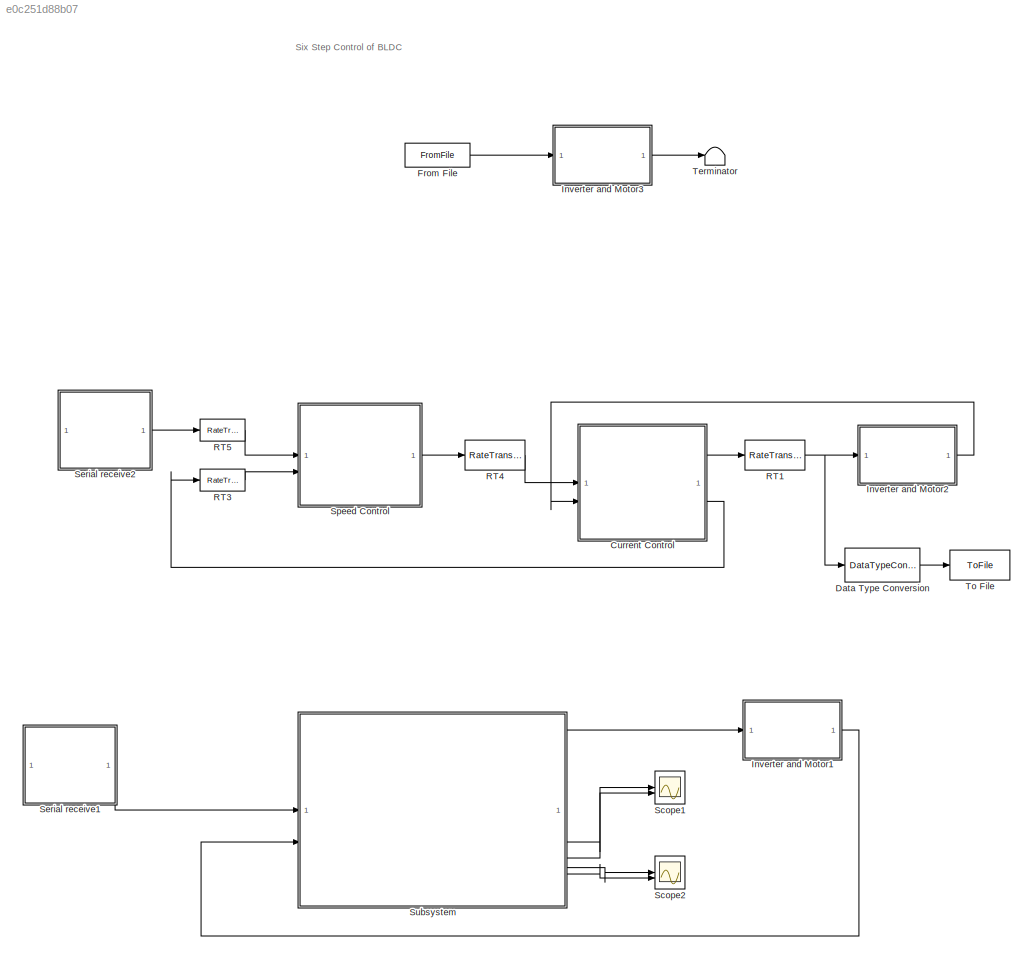
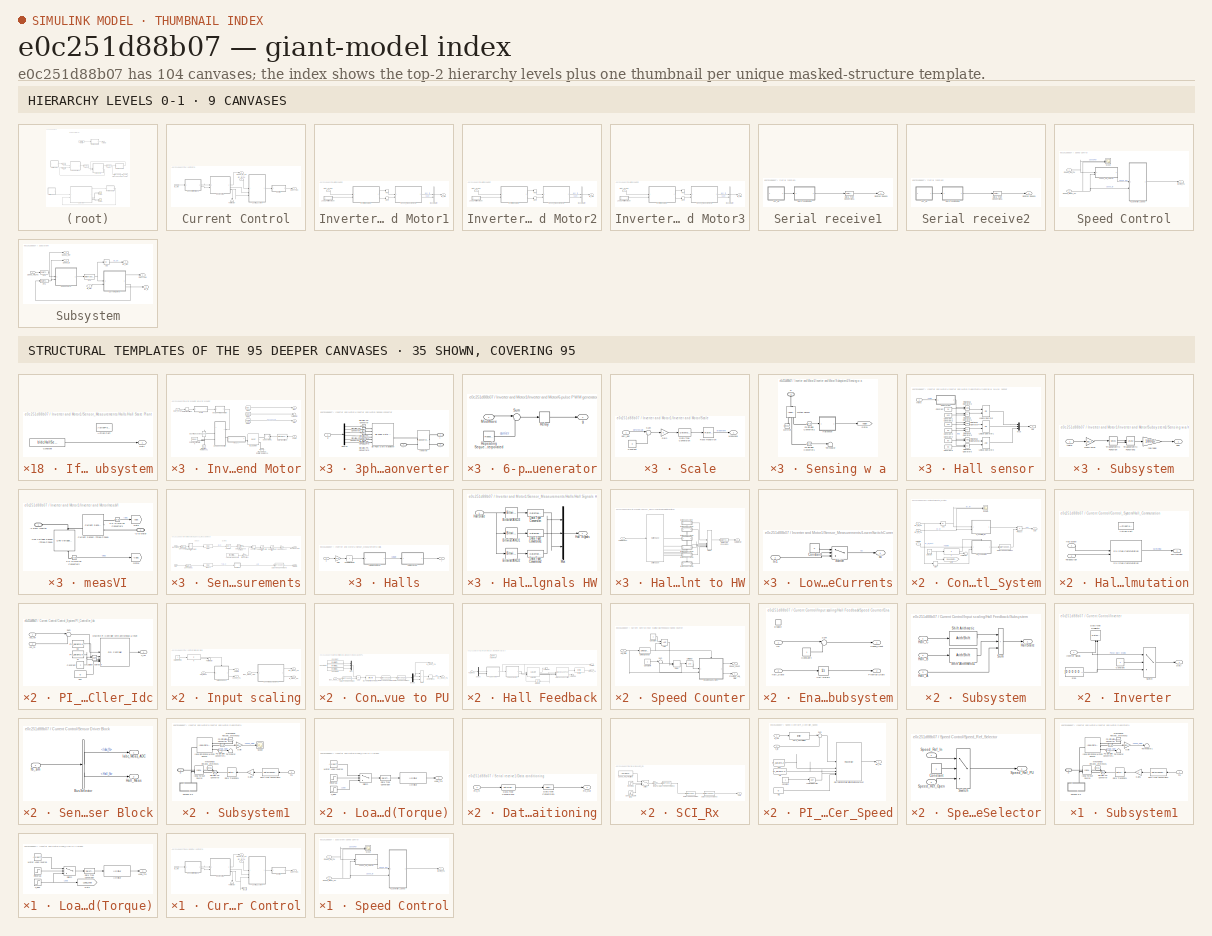
[diagram: thumbnail index - top-2 hierarchy levels (9 canvases) + 35 structural-template representatives of the remaining 95 canvases]
MODEL slx_e0c251d88b07
KIND model
CONFIG AbsTol = auto
CONFIG EnableMultiTasking = on
CONFIG FixedStep = auto
CONFIG MaxStep = auto
CONFIG MinStep = auto
CONFIG RelTol = 1e-3
CONFIG SampleTimeConstraint = Unconstrained
CONFIG SolverName = FixedStepAuto
CONFIG StartTime = 0.0
CONFIG StopTime = 2
BLOCK [SubSystem] Current Control
  Commented = on
  SystemSampleTime = Ts
  TreatAsAtomicUnit = on
BLOCK [SubSystem] Current Control/Control_System
BLOCK [Abs] Current Control/Control_System/Abs
  SaturateOnIntegerOverflow = off
BLOCK [DataTypeConversion] Current Control/Control_System/Data Type Conversion1
  OutDataTypeStr = dataType
  RndMeth = Simplest
  SaturateOnIntegerOverflow = off
BLOCK [Outport] Current Control/Control_System/Duty
  VectorParamsAs1DForOutWhenUnconnected = off
BLOCK [Goto] Current Control/Control_System/Goto
  GotoTag = SpeedRefSelector
  NameLocation = top
  TagVisibility = global
BLOCK [SubSystem] Current Control/Control_System/Hall_Commutation
BLOCK [ActionPort] Current Control/Control_System/Hall_Commutation/Action Port
  ActionPortLabel = if(u1 ==1)
BLOCK [Inport] Current Control/Control_System/Hall_Commutation/Hallstate
BLOCK [Reference] Current Control/Control_System/Hall_Commutation/Six Step Commutation  REF=mcbcontrolslib/Six Step Commutation
  SourceBlock = mcbcontrolslib/Six Step Commutation
  SourceType = Six-Step Commutation
BLOCK [Inport] Current Control/Control_System/Hall_Commutation/TorqueSign
  Port = 2
BLOCK [Outport] Current Control/Control_System/Hall_Commutation/switching3
BLOCK [Inport] Current Control/Control_System/Hallstate
  Port = 2
BLOCK [Inport] Current Control/Control_System/Idc_fb_PU
  Port = 3
BLOCK [Inport] Current Control/Control_System/Idc_ref_PU
BLOCK [If] Current Control/Control_System/If
  IfExpression = u1 ==1
BLOCK [SubSystem] Current Control/Control_System/PI_Controller_Idc
BLOCK [Constant] Current Control/Control_System/PI_Controller_Idc/Constant
BLOCK [Reference] Current Control/Control_System/PI_Controller_Idc/Discrete PI Controller with anti-windup & reset  REF=slpidlib/PID Controller
  LibrarySourceBlock = mcbcontrolslib/PI Controller
  SourceBlock = slpidlib/PID Controller
  SourceType = PID 1dof
BLOCK [Inport] Current Control/Control_System/PI_Controller_Idc/Idc_fb
  Port = 2
BLOCK [Inport] Current Control/Control_System/PI_Controller_Idc/Idc_ref
BLOCK [Constant] Current Control/Control_System/PI_Controller_Idc/Ki
  OutDataTypeStr = dataType
  SampleTime = -1
  Value = PI_params.Ki_i*Ts
BLOCK [Constant] Current Control/Control_System/PI_Controller_Idc/Kp
  NameLocation = top
  OutDataTypeStr = dataType
  SampleTime = -1
  Value = PI_params.Kp_i
BLOCK [Constant] Current Control/Control_System/PI_Controller_Idc/Kp1
  NameLocation = top
  OutDataTypeStr = dataType
  SampleTime = -1
  Value = 0
BLOCK [Logic] Current Control/Control_System/PI_Controller_Idc/Logical Operator
  AllPortsSameDT = off
  IconShape = distinctive
  Operator = NOT
  OutDataTypeStr = boolean
BLOCK [Sum] Current Control/Control_System/PI_Controller_Idc/Sum
  AccumDataTypeStr = Inherit: Same as first input
  Inputs = |+-
  OutDataTypeStr = Inherit: Same as first input
BLOCK [Outport] Current Control/Control_System/PI_Controller_Idc/V_ref
  VectorParamsAs1DForOutWhenUnconnected = off
BLOCK [Product] Current Control/Control_System/Product
  OutDataTypeStr = Inherit: Same as first input
  RndMeth = Simplest
BLOCK [Scope] Current Control/Control_System/Scope
  Floating = off
  NumInputPorts = 2
  ScopeSpecificationString = Simulink.scopes.TimeScopeBlockCfg('CurrentConfiguration', extmgr.ConfigurationSet(extmgr.Configuration('Core','General UI',true,'FigureColor',[1 1 1]),extmgr.Configuration('Core','Source UI',true),extmgr.Configuration('Sources','WiredSimulink',true,'DataLoggingVariableName','ScopeData1'),extmgr.Configuration('Visuals','Time Domain',true,'SerializedDisplays',{struct('MinYLimReal','-0.05994','MaxYLi...<+2269ch>
BLOCK [Constant] Current Control/Control_System/Selector
  OutDataTypeStr = uint16
  SampleTime = -1
BLOCK [Signum] Current Control/Control_System/Sign
BLOCK [Terminator] Current Control/Control_System/Terminator
BLOCK [Outport] Current Control/Duty cycles
BLOCK [Inport] Current Control/Idc_ref_PU
BLOCK [SubSystem] Current Control/Input scaling
BLOCK [SubSystem] Current Control/Input scaling/Convert ADC value to PU
BLOCK [Sum] Current Control/Input scaling/Convert ADC value to PU/Add
  IconShape = rectangular
  Inputs = -+
BLOCK [Constant] Current Control/Input scaling/Convert ADC value to PU/Constant
  Value = inverter.CtSensAOffset
BLOCK [Constant] Current Control/Input scaling/Convert ADC value to PU/Constant1
  Value = inverter.CtSensCOffset
BLOCK [Constant] Current Control/Input scaling/Convert ADC value to PU/Constant2
  Value = inverter.CtSensBOffset
BLOCK [DataTypeConversion] Current Control/Input scaling/Convert ADC value to PU/Data Type Conversion
  ConvertRealWorld = Stored Integer (SI)
  OutDataTypeStr = int32
  RndMeth = Floor
  SaturateOnIntegerOverflow = off
BLOCK [DataTypeConversion] Current Control/Input scaling/Convert ADC value to PU/Data Type Conversion1
  OutDataTypeStr = dataType
  RndMeth = Floor
  SaturateOnIntegerOverflow = off
BLOCK [DataTypeConversion] Current Control/Input scaling/Convert ADC value to PU/Data Type Conversion3
  ConvertRealWorld = Stored Integer (SI)
  OutDataTypeStr = fixdt(1,32,17)
  RndMeth = Simplest
  SaturateOnIntegerOverflow = off
BLOCK [Demux] Current Control/Input scaling/Convert ADC value to PU/Demux
  Outputs = 3
BLOCK [Outport] Current Control/Input scaling/Convert ADC value to PU/Ia_meas_PU
  Port = 2
  VectorParamsAs1DForOutWhenUnconnected = off
BLOCK [Inport] Current Control/Input scaling/Convert ADC value to PU/Iabc_meas_ADC
BLOCK [Outport] Current Control/Input scaling/Convert ADC value to PU/Idc_meas_PU
BLOCK [Mux] Current Control/Input scaling/Convert ADC value to PU/Mux
  DisplayOption = bar
  Inputs = 3
BLOCK [ArithShift] Current Control/Input scaling/Convert ADC value to PU/Q17 per unit conversion
  BitShiftNumber = -6
  InputPortMap = u0
BLOCK [Sum] Current Control/Input scaling/Convert ADC value to PU/Sum
  IconShape = rectangular
  Inputs = |+++
BLOCK [UnaryMinus] Current Control/Input scaling/Convert ADC value to PU/Unary Minus
BLOCK [SubSystem] Current Control/Input scaling/Hall Feedback
  TreatAsAtomicUnit = on
BLOCK [ActionPort] Current Control/Input scaling/Hall Feedback/Action Port
  ActionPortLabel = if(u1 ==1)
BLOCK [Demux] Current Control/Input scaling/Hall Feedback/Demux
  Outputs = 3
BLOCK [Reference] Current Control/Input scaling/Hall Feedback/Hall Speed and Position  REF=mcbpositiondecoderlib/Hall Speed and Position
  SourceBlock = mcbpositiondecoderlib/Hall Speed and Position
  SourceType = Hall Speed and Position
BLOCK [Reference] Current Control/Input scaling/Hall Feedback/Hall Validity  REF=mcbpositiondecoderlib/Hall Validity
  SourceBlock = mcbpositiondecoderlib/Hall Validity
  SourceType = Hall Validity
BLOCK [Outport] Current Control/Input scaling/Hall Feedback/HallState
  InitialOutput = 0
  VectorParamsAs1DForOutWhenUnconnected = off
BLOCK [Inport] Current Control/Input scaling/Hall Feedback/Hall_Meas
BLOCK [Reference] Current Control/Input scaling/Hall Feedback/IIR Filter  REF=mcbcontrolslib/IIR Filter
  SourceBlock = mcbcontrolslib/IIR Filter
  SourceType = IIR Filter
BLOCK [SubSystem] Current Control/Input scaling/Hall Feedback/Speed Counter
BLOCK [Logic] Current Control/Input scaling/Hall Feedback/Speed Counter/AND
  AllPortsSameDT = off
  IconShape = distinctive
  OutDataTypeStr = boolean
BLOCK [Constant] Current Control/Input scaling/Hall Feedback/Speed Counter/Constant
BLOCK [Constant] Current Control/Input scaling/Hall Feedback/Speed Counter/Constant4
  OutDataTypeStr = uint32
  SampleTime = -1
BLOCK [Delay] Current Control/Input scaling/Hall Feedback/Speed Counter/Delay
  DelayLength = 1
  ExternalReset = Level
  InitialCondition = 1
  InputPortMap = u0,r5
BLOCK [Reference] Current Control/Input scaling/Hall Feedback/Speed Counter/Detect Change  REF=simulink/Logic and Bit
Operations/Detect
Change
  SourceBlock = simulink/Logic and Bit\nOperations/Detect\nChange
  SourceType = Detect Change
BLOCK [SubSystem] Current Control/Input scaling/Hall Feedback/Speed Counter/Enabled Subsystem
  TreatAsAtomicUnit = on
BLOCK [Constant] Current Control/Input scaling/Hall Feedback/Speed Counter/Enabled Subsystem/Constant4
  OutDataTypeStr = uint32
  SampleTime = -1
BLOCK [EnablePort] Current Control/Input scaling/Hall Feedback/Speed Counter/Enabled Subsystem/Enable
BLOCK [Inport] Current Control/Input scaling/Hall Feedback/Speed Counter/Enabled Subsystem/Hall_State
  Port = 2
BLOCK [Inport] Current Control/Input scaling/Hall Feedback/Speed Counter/Enabled Subsystem/In1
BLOCK [Outport] Current Control/Input scaling/Hall Feedback/Speed Counter/Enabled Subsystem/PrevHallState
  Port = 2
BLOCK [Outport] Current Control/Input scaling/Hall Feedback/Speed Counter/Enabled Subsystem/Speed_Count
BLOCK [Sum] Current Control/Input scaling/Hall Feedback/Speed Counter/Enabled Subsystem/Sum
  AccumDataTypeStr = uint32
  Inputs = |++
  OutDataTypeStr = uint32
  RndMeth = Simplest
BLOCK [UnitDelay] Current Control/Input scaling/Hall Feedback/Speed Counter/Enabled Subsystem/Unit Delay1
  HasFrameUpgradeWarning = on
  InitialCondition = 1
  SampleTime = -1
BLOCK [Inport] Current Control/Input scaling/Hall Feedback/Speed Counter/Hall_State
BLOCK [Outport] Current Control/Input scaling/Hall Feedback/Speed Counter/Previous_Hall_State
BLOCK [Outport] Current Control/Input scaling/Hall Feedback/Speed Counter/Speed_Count
  Port = 2
BLOCK [Sum] Current Control/Input scaling/Hall Feedback/Speed Counter/Sum
  AccumDataTypeStr = uint32
  Inputs = |++
  OutDataTypeStr = uint32
  RndMeth = Simplest
BLOCK [UnitDelay] Current Control/Input scaling/Hall Feedback/Speed Counter/Unit Delay
  HasFrameUpgradeWarning = on
  InitialCondition = 1
  SampleTime = -1
BLOCK [Outport] Current Control/Input scaling/Hall Feedback/Speed_PU
  InitialOutput = 0
  NameLocation = top
  Port = 2
  VectorParamsAs1DForOutWhenUnconnected = off
BLOCK [SubSystem] Current Control/Input scaling/Hall Feedback/Subsystem
BLOCK [Outport] Current Control/Input scaling/Hall Feedback/Subsystem/HallState
BLOCK [Inport] Current Control/Input scaling/Hall Feedback/Subsystem/Hall_A
  Port = 3
BLOCK [Inport] Current Control/Input scaling/Hall Feedback/Subsystem/Hall_B
  Port = 2
BLOCK [Inport] Current Control/Input scaling/Hall Feedback/Subsystem/Hall_C
BLOCK [ArithShift] Current Control/Input scaling/Hall Feedback/Subsystem/Shift Arithmetic
  BitShiftDirection = Left
  BitShiftNumber = 2
  InputPortMap = u0
  NameLocation = right
BLOCK [ArithShift] Current Control/Input scaling/Hall Feedback/Subsystem/Shift Arithmetic1
  BitShiftDirection = Left
  BitShiftNumber = 1
  InputPortMap = u0
BLOCK [Sum] Current Control/Input scaling/Hall Feedback/Subsystem/Sum
  IconShape = rectangular
  Inputs = |+++
BLOCK [Terminator] Current Control/Input scaling/Hall Feedback/Terminator
BLOCK [Terminator] Current Control/Input scaling/Hall Feedback/Terminator1
BLOCK [UnitDelay] Current Control/Input scaling/Hall Feedback/Unit Delay
  HasFrameUpgradeWarning = on
  InitialCondition = 1
  NameLocation = top
  SampleTime = -1
BLOCK [Constant] Current Control/Input scaling/Hall selected
BLOCK [Outport] Current Control/Input scaling/HallState
  InitialOutput = 0
  Port = 2
  VectorParamsAs1DForOutWhenUnconnected = off
BLOCK [Inport] Current Control/Input scaling/Hall_Meas
  Port = 2
BLOCK [Outport] Current Control/Input scaling/Ia_meas_PU
  Port = 4
BLOCK [Inport] Current Control/Input scaling/Iabc_meas_ADC
BLOCK [Outport] Current Control/Input scaling/Idc_meas_PU
  Port = 3
BLOCK [If] Current Control/Input scaling/If
  IfExpression = u1 ==1
BLOCK [Terminator] Current Control/Input scaling/Terminator
BLOCK [Outport] Current Control/Input scaling/speed_PU
  InitialOutput = 0
  VectorParamsAs1DForOutWhenUnconnected = off
BLOCK [SubSystem] Current Control/Inverter
BLOCK [Constant] Current Control/Inverter/Constant
BLOCK [DataTypeDuplicate] Current Control/Inverter/Data Type Duplicate
  NameLocation = right
BLOCK [Outport] Current Control/Inverter/Duty
  VectorParamsAs1DForOutWhenUnconnected = off
BLOCK [Inport] Current Control/Inverter/Inverter Signals
BLOCK [Switch] Current Control/Inverter/Switch
  InputSameDT = off
  RndMeth = Simplest
  SaturateOnIntegerOverflow = off
  Threshold = 0.5
BLOCK [Constant] Current Control/Inverter/stop
  OutDataTypeStr = Inherit: Inherit via back propagation
  Value = [0 0 0 0 0 0]
BLOCK [SubSystem] Current Control/Sensor Driver Block
BLOCK [BusSelector] Current Control/Sensor Driver Block/Bus Selector
  OutputSignals = Iabc_fb,Hall_fb
BLOCK [Outport] Current Control/Sensor Driver Block/Hall_Meas
  Port = 2
BLOCK [Outport] Current Control/Sensor Driver Block/Iabc_Meas_ADC
BLOCK [Inport] Current Control/Sensor Driver Block/fb_sim
BLOCK [Outport] Current Control/Speed_fb_PU
  Port = 2
BLOCK [Terminator] Current Control/Terminator
  NameLocation = left
BLOCK [Inport] Current Control/fb_sim
  Port = 2
BLOCK [DataTypeConversion] Data Type Conversion
  Commented = on
  OutDataTypeStr = double
  RndMeth = Floor
  SaturateOnIntegerOverflow = off
BLOCK [FromFile] From File
  FileName = dutycycle2.mat
  SampleTime = 0
BLOCK [SubSystem] Inverter and Motor1
  Commented = on
BLOCK [BusCreator] Inverter and Motor1/Bus Creator
  DisplayOption = bar
  InheritFromInputs = on
  Inputs = 2
BLOCK [Inport] Inverter and Motor1/Duty_Cycles
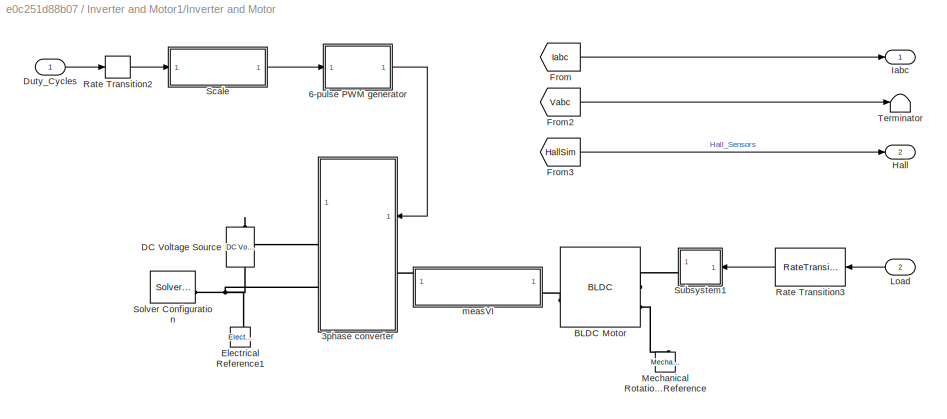
BLOCK [SubSystem] Inverter and Motor1/Inverter and Motor
  VariantControl = get_param([bdroot '/Plant'],'Value')=='0'
BLOCK [SubSystem] Inverter and Motor1/Inverter and Motor/3phase converter
BLOCK [PMIOPort] Inverter and Motor1/Inverter and Motor/3phase converter/+
  Side = Right
BLOCK [PMIOPort] Inverter and Motor1/Inverter and Motor/3phase converter/-
  Port = 3
  Side = Right
BLOCK [Demux] Inverter and Motor1/Inverter and Motor/3phase converter/Demux
  Outputs = 6
BLOCK [Reference] Inverter and Motor1/Inverter and Motor/3phase converter/Inverter  REF=ee_lib/Semiconductors &
Converters/Converters/Converter
(Three-Phase)
  SourceBlock = ee_lib/Semiconductors &\nConverters/Converters/Converter\n(Three-Phase)
  SourceType = Converter\n(Three-Phase)
BLOCK [Reference] Inverter and Motor1/Inverter and Motor/3phase converter/Simulink-PS Converter  REF=nesl_utility/Simulink-PS
Converter
  SourceBlock = nesl_utility/Simulink-PS\nConverter
  SourceType = Simulink-PS\nConverter
BLOCK [Reference] Inverter and Motor1/Inverter and Motor/3phase converter/Simulink-PS Converter1  REF=nesl_utility/Simulink-PS
Converter
  SourceBlock = nesl_utility/Simulink-PS\nConverter
  SourceType = Simulink-PS\nConverter
BLOCK [Reference] Inverter and Motor1/Inverter and Motor/3phase converter/Simulink-PS Converter2  REF=nesl_utility/Simulink-PS
Converter
  SourceBlock = nesl_utility/Simulink-PS\nConverter
  SourceType = Simulink-PS\nConverter
BLOCK [Reference] Inverter and Motor1/Inverter and Motor/3phase converter/Simulink-PS Converter3  REF=nesl_utility/Simulink-PS
Converter
  SourceBlock = nesl_utility/Simulink-PS\nConverter
  SourceType = Simulink-PS\nConverter
BLOCK [Reference] Inverter and Motor1/Inverter and Motor/3phase converter/Simulink-PS Converter4  REF=nesl_utility/Simulink-PS
Converter
  SourceBlock = nesl_utility/Simulink-PS\nConverter
  SourceType = Simulink-PS\nConverter
BLOCK [Reference] Inverter and Motor1/Inverter and Motor/3phase converter/Simulink-PS Converter5  REF=nesl_utility/Simulink-PS
Converter
  SourceBlock = nesl_utility/Simulink-PS\nConverter
  SourceType = Simulink-PS\nConverter
BLOCK [Reference] Inverter and Motor1/Inverter and Motor/3phase converter/Six-Pulse Gate Multiplexer  REF=ee_lib/Semiconductors &
Converters/Converters/Six-Pulse Gate
Multiplexer
  SourceBlock = ee_lib/Semiconductors &\nConverters/Converters/Six-Pulse Gate\nMultiplexer
  SourceType = Six-Pulse Gate\nMultiplexer
BLOCK [Inport] Inverter and Motor1/Inverter and Motor/3phase converter/g
BLOCK [PMIOPort] Inverter and Motor1/Inverter and Motor/3phase converter/~
  Port = 2
  Side = Left
BLOCK [SubSystem] Inverter and Motor1/Inverter and Motor/6-pulse PWM generator
BLOCK [Inport] Inverter and Motor1/Inverter and Motor/6-pulse PWM generator/ModWave
BLOCK [Relay] Inverter and Motor1/Inverter and Motor/6-pulse PWM generator/Relay
BLOCK [Reference] Inverter and Motor1/Inverter and Motor/6-pulse PWM generator/Repeating Sequence Interpolated  REF=simulink/Sources/Repeating
Sequence
Interpolated
  SourceBlock = simulink/Sources/Repeating\nSequence\nInterpolated
  SourceType = Repeating Sequence Interpolated
BLOCK [Sum] Inverter and Motor1/Inverter and Motor/6-pulse PWM generator/Sum
  Inputs = |+-
BLOCK [Outport] Inverter and Motor1/Inverter and Motor/6-pulse PWM generator/g
  NameLocation = top
BLOCK [Reference] Inverter and Motor1/Inverter and Motor/BLDC Motor  REF=ee_lib/Electromechanical/Permanent Magnet/BLDC
  SourceBlock = ee_lib/Electromechanical/Permanent Magnet/BLDC
  SourceType = BLDC
BLOCK [Reference] Inverter and Motor1/Inverter and Motor/DC Voltage Source  REF=fl_lib/Electrical/Electrical Sources/DC Voltage Source
  NameLocation = left
  SourceBlock = fl_lib/Electrical/Electrical Sources/DC Voltage Source
  SourceType = DC Voltage Source
BLOCK [Inport] Inverter and Motor1/Inverter and Motor/Duty_Cycles
BLOCK [Reference] Inverter and Motor1/Inverter and Motor/Electrical Reference1  REF=fl_lib/Electrical/Electrical Elements/Electrical Reference
  NameLocation = right
  SourceBlock = fl_lib/Electrical/Electrical Elements/Electrical Reference
  SourceType = Electrical Reference
BLOCK [From] Inverter and Motor1/Inverter and Motor/From
  GotoTag = Iabc
  TagVisibility = global
BLOCK [From] Inverter and Motor1/Inverter and Motor/From2
  GotoTag = Vabc
  TagVisibility = global
BLOCK [From] Inverter and Motor1/Inverter and Motor/From3
  GotoTag = HallSim
  TagVisibility = global
BLOCK [Outport] Inverter and Motor1/Inverter and Motor/Hall
  Port = 2
BLOCK [Outport] Inverter and Motor1/Inverter and Motor/Iabc
BLOCK [Inport] Inverter and Motor1/Inverter and Motor/Load
  Port = 2
BLOCK [Reference] Inverter and Motor1/Inverter and Motor/Mechanical Rotational Reference  REF=fl_lib/Mechanical/Rotational Elements/Mechanical
Rotational Reference
  NameLocation = right
  SourceBlock = fl_lib/Mechanical/Rotational Elements/Mechanical\nRotational Reference
  SourceType = Mechanical\nRotational Reference
BLOCK [RateTransition] Inverter and Motor1/Inverter and Motor/Rate Transition2
  Deterministic = off
  OutPortSampleTime = Ts_motor_simscape
BLOCK [RateTransition] Inverter and Motor1/Inverter and Motor/Rate Transition3
  Deterministic = off
  NameLocation = top
  OutPortSampleTime = Ts_motor_simscape
BLOCK [SubSystem] Inverter and Motor1/Inverter and Motor/Scale
BLOCK [Constant] Inverter and Motor1/Inverter and Motor/Scale/Constant
  OutDataTypeStr = single
  SampleTime = Ts_motor_simscape
  Value = 0
BLOCK [DataTypeConversion] Inverter and Motor1/Inverter and Motor/Scale/Data Type Conversion
  RndMeth = Floor
  SaturateOnIntegerOverflow = off
BLOCK [Gain] Inverter and Motor1/Inverter and Motor/Scale/Gain
BLOCK [Outport] Inverter and Motor1/Inverter and Motor/Scale/ModWave
BLOCK [RateTransition] Inverter and Motor1/Inverter and Motor/Scale/Rate Transition
BLOCK [Sum] Inverter and Motor1/Inverter and Motor/Scale/Sum
  Inputs = |++
BLOCK [Inport] Inverter and Motor1/Inverter and Motor/Scale/duty_abc
BLOCK [Reference] Inverter and Motor1/Inverter and Motor/Solver Configuration  REF=nesl_utility/Solver
Configuration
  SourceBlock = nesl_utility/Solver\nConfiguration
  SourceType = Solver\nConfiguration
BLOCK [SubSystem] Inverter and Motor1/Inverter and Motor/Subsystem1
  NameLocation = top
BLOCK [DataTypeConversion] Inverter and Motor1/Inverter and Motor/Subsystem1/Data Type Conversion1
  NameLocation = top
  RndMeth = Floor
  SaturateOnIntegerOverflow = off
BLOCK [Gain] Inverter and Motor1/Inverter and Motor/Subsystem1/Gain
  Gain = 1/bldc.N_base
BLOCK [Gain] Inverter and Motor1/Inverter and Motor/Subsystem1/Gain1
  Gain = -1
  NameLocation = top
BLOCK [Reference] Inverter and Motor1/Inverter and Motor/Subsystem1/Ideal Rotational Motion Sensor  REF=fl_lib/Mechanical/Mechanical Sensors/Ideal Rotational
Motion Sensor
  SourceBlock = fl_lib/Mechanical/Mechanical Sensors/Ideal Rotational\nMotion Sensor
  SourceType = Ideal Rotational\nMotion Sensor
BLOCK [Reference] Inverter and Motor1/Inverter and Motor/Subsystem1/Ideal Torque Source  REF=fl_lib/Mechanical/Mechanical Sources/Ideal Torque Source
  SourceBlock = fl_lib/Mechanical/Mechanical Sources/Ideal Torque Source
  SourceType = Ideal Torque Source
BLOCK [Reference] Inverter and Motor1/Inverter and Motor/Subsystem1/Mechanical Rotational Reference1  REF=fl_lib/Mechanical/Rotational Elements/Mechanical
Rotational Reference
  NameLocation = top
  SourceBlock = fl_lib/Mechanical/Rotational Elements/Mechanical\nRotational Reference
  SourceType = Mechanical\nRotational Reference
BLOCK [Reference] Inverter and Motor1/Inverter and Motor/Subsystem1/Mechanical Rotational Reference2  REF=fl_lib/Mechanical/Rotational Elements/Mechanical
Rotational Reference
  NameLocation = top
  SourceBlock = fl_lib/Mechanical/Rotational Elements/Mechanical\nRotational Reference
  SourceType = Mechanical\nRotational Reference
BLOCK [Reference] Inverter and Motor1/Inverter and Motor/Subsystem1/PS-Simulink Converter  REF=nesl_utility/PS-Simulink
Converter
  SourceBlock = nesl_utility/PS-Simulink\nConverter
  SourceType = PS-Simulink\nConverter
BLOCK [Reference] Inverter and Motor1/Inverter and Motor/Subsystem1/PS-Simulink Converter1  REF=nesl_utility/PS-Simulink
Converter
  SourceBlock = nesl_utility/PS-Simulink\nConverter
  SourceType = PS-Simulink\nConverter
BLOCK [PMIOPort] Inverter and Motor1/Inverter and Motor/Subsystem1/R 
  Side = Right
BLOCK [RateTransition] Inverter and Motor1/Inverter and Motor/Subsystem1/Rate Transition1
  NameLocation = top
BLOCK [SubSystem] Inverter and Motor1/Inverter and Motor/Subsystem1/Sensing w a
  NameLocation = right
BLOCK [Goto] Inverter and Motor1/Inverter and Motor/Subsystem1/Sensing w a/Goto1
  GotoTag = HallSim
  TagVisibility = global
BLOCK [SubSystem] Inverter and Motor1/Inverter and Motor/Subsystem1/Sensing w a/Hall sensor
BLOCK [Constant] Inverter and Motor1/Inverter and Motor/Subsystem1/Sensing w a/Hall sensor/Constant
  Value = 30
BLOCK [Constant] Inverter and Motor1/Inverter and Motor/Subsystem1/Sensing w a/Hall sensor/Constant1
  Value = -150
BLOCK [Constant] Inverter and Motor1/Inverter and Motor/Subsystem1/Sensing w a/Hall sensor/Constant2
  Value = 150
BLOCK [Constant] Inverter and Motor1/Inverter and Motor/Subsystem1/Sensing w a/Hall sensor/Constant3
  Value = -30
BLOCK [Constant] Inverter and Motor1/Inverter and Motor/Subsystem1/Sensing w a/Hall sensor/Constant4
  Value = -90
BLOCK [Constant] Inverter and Motor1/Inverter and Motor/Subsystem1/Sensing w a/Hall sensor/Constant5
  Value = 90
BLOCK [Outport] Inverter and Motor1/Inverter and Motor/Subsystem1/Sensing w a/Hall sensor/Hall
  VectorParamsAs1DForOutWhenUnconnected = off
BLOCK [Logic] Inverter and Motor1/Inverter and Motor/Subsystem1/Sensing w a/Hall sensor/Logical Operator
  AllPortsSameDT = off
  Operator = OR
  OutDataTypeStr = boolean
BLOCK [Logic] Inverter and Motor1/Inverter and Motor/Subsystem1/Sensing w a/Hall sensor/Logical Operator1
  AllPortsSameDT = off
  Operator = OR
  OutDataTypeStr = boolean
BLOCK [Logic] Inverter and Motor1/Inverter and Motor/Subsystem1/Sensing w a/Hall sensor/Logical Operator2
  AllPortsSameDT = off
  OutDataTypeStr = boolean
BLOCK [Mux] Inverter and Motor1/Inverter and Motor/Subsystem1/Sensing w a/Hall sensor/Mux
  DisplayOption = bar
  Inputs = 3
BLOCK [RelationalOperator] Inverter and Motor1/Inverter and Motor/Subsystem1/Sensing w a/Hall sensor/Relational Operator1
  Operator = <=
BLOCK [RelationalOperator] Inverter and Motor1/Inverter and Motor/Subsystem1/Sensing w a/Hall sensor/Relational Operator2
BLOCK [RelationalOperator] Inverter and Motor1/Inverter and Motor/Subsystem1/Sensing w a/Hall sensor/Relational Operator3
  Operator = <=
BLOCK [RelationalOperator] Inverter and Motor1/Inverter and Motor/Subsystem1/Sensing w a/Hall sensor/Relational Operator4
BLOCK [RelationalOperator] Inverter and Motor1/Inverter and Motor/Subsystem1/Sensing w a/Hall sensor/Relational Operator5
  Operator = <=
BLOCK [RelationalOperator] Inverter and Motor1/Inverter and Motor/Subsystem1/Sensing w a/Hall sensor/Relational Operator6
BLOCK [SubSystem] Inverter and Motor1/Inverter and Motor/Subsystem1/Sensing w a/Hall sensor/Subsystem
BLOCK [Trigonometry] Inverter and Motor1/Inverter and Motor/Subsystem1/Sensing w a/Hall sensor/Subsystem/Trigonometric Function
  Operator = sincos
BLOCK [Trigonometry] Inverter and Motor1/Inverter and Motor/Subsystem1/Sensing w a/Hall sensor/Subsystem/Trigonometric Function2
  Operator = atan2
BLOCK [Outport] Inverter and Motor1/Inverter and Motor/Subsystem1/Sensing w a/Hall sensor/Subsystem/deg
  VectorParamsAs1DForOutWhenUnconnected = off
BLOCK [Gain] Inverter and Motor1/Inverter and Motor/Subsystem1/Sensing w a/Hall sensor/Subsystem/mech->elec
  Gain = bldc.p
BLOCK [Gain] Inverter and Motor1/Inverter and Motor/Subsystem1/Sensing w a/Hall sensor/Subsystem/rad->deg
  Gain = 180/pi
  OutDataTypeStr = Inherit: Same as input
  ParamDataTypeStr = Inherit: Same as input
  SaturateOnIntegerOverflow = on
BLOCK [Inport] Inverter and Motor1/Inverter and Motor/Subsystem1/Sensing w a/Hall sensor/Subsystem/theta
BLOCK [Inport] Inverter and Motor1/Inverter and Motor/Subsystem1/Sensing w a/Hall sensor/theta
BLOCK [Reference] Inverter and Motor1/Inverter and Motor/Subsystem1/Sensing w a/MRRef  REF=fl_lib/Mechanical/Rotational Elements/Mechanical
Rotational Reference
  NameLocation = left
  SourceBlock = fl_lib/Mechanical/Rotational Elements/Mechanical\nRotational Reference
  SourceType = Mechanical\nRotational Reference
BLOCK [Reference] Inverter and Motor1/Inverter and Motor/Subsystem1/Sensing w a/Motion Sensor  REF=fl_lib/Mechanical/Mechanical Sensors/Ideal Rotational
Motion Sensor
  NameLocation = right
  SourceBlock = fl_lib/Mechanical/Mechanical Sensors/Ideal Rotational\nMotion Sensor
  SourceType = Ideal Rotational\nMotion Sensor
BLOCK [Reference] Inverter and Motor1/Inverter and Motor/Subsystem1/Sensing w a/PS-Simulink Converter1  REF=nesl_utility/PS-Simulink
Converter
  SourceBlock = nesl_utility/PS-Simulink\nConverter
  SourceType = PS-Simulink\nConverter
BLOCK [Reference] Inverter and Motor1/Inverter and Motor/Subsystem1/Sensing w a/PS-Simulink Converter2  REF=nesl_utility/PS-Simulink
Converter
  SourceBlock = nesl_utility/PS-Simulink\nConverter
  SourceType = PS-Simulink\nConverter
BLOCK [PMIOPort] Inverter and Motor1/Inverter and Motor/Subsystem1/Sensing w a/R
  Side = Left
BLOCK [Terminator] Inverter and Motor1/Inverter and Motor/Subsystem1/Sensing w a/Terminator
BLOCK [Reference] Inverter and Motor1/Inverter and Motor/Subsystem1/Simulink-PS Converter  REF=nesl_utility/Simulink-PS
Converter
  NameLocation = top
  SourceBlock = nesl_utility/Simulink-PS\nConverter
  SourceType = Simulink-PS\nConverter
BLOCK [Terminator] Inverter and Motor1/Inverter and Motor/Subsystem1/Terminator
BLOCK [Terminator] Inverter and Motor1/Inverter and Motor/Subsystem1/Terminator1
BLOCK [Inport] Inverter and Motor1/Inverter and Motor/Subsystem1/Tm
BLOCK [Terminator] Inverter and Motor1/Inverter and Motor/Terminator
BLOCK [SubSystem] Inverter and Motor1/Inverter and Motor/measVI
BLOCK [Reference] Inverter and Motor1/Inverter and Motor/measVI/Current Sensor (Three-Phase)  REF=ee_lib/Sensors &
Transducers/Current Sensor
(Three-Phase)
  SourceBlock = ee_lib/Sensors &\nTransducers/Current Sensor\n(Three-Phase)
  SourceType = Current Sensor\n(Three-Phase)
BLOCK [Goto] Inverter and Motor1/Inverter and Motor/measVI/Goto
  GotoTag = Iabc
  TagVisibility = global
BLOCK [Goto] Inverter and Motor1/Inverter and Motor/measVI/Goto1
  GotoTag = Vabc
  TagVisibility = global
BLOCK [Reference] Inverter and Motor1/Inverter and Motor/measVI/Line Voltage Sensor (Three-Phase)  REF=ee_lib/Sensors &
Transducers/Line Voltage Sensor
(Three-Phase)
  NameLocation = left
  SourceBlock = ee_lib/Sensors &\nTransducers/Line Voltage Sensor\n(Three-Phase)
  SourceType = Line Voltage Sensor\n(Three-Phase)
BLOCK [Reference] Inverter and Motor1/Inverter and Motor/measVI/PS-Simulink Converter2  REF=nesl_utility/PS-Simulink
Converter
  SourceBlock = nesl_utility/PS-Simulink\nConverter
  SourceType = PS-Simulink\nConverter
BLOCK [Reference] Inverter and Motor1/Inverter and Motor/measVI/PS-Simulink Converter3  REF=nesl_utility/PS-Simulink
Converter
  SourceBlock = nesl_utility/PS-Simulink\nConverter
  SourceType = PS-Simulink\nConverter
BLOCK [PMIOPort] Inverter and Motor1/Inverter and Motor/measVI/~1 From Inverter
  Side = Left
BLOCK [PMIOPort] Inverter and Motor1/Inverter and Motor/measVI/~2 to Motor
  Port = 2
  Side = Right
BLOCK [SubSystem] Inverter and Motor1/Load_Profile (Torque)
BLOCK [DataTypeConversion] Inverter and Motor1/Load_Profile (Torque)/Data Type Conversion
  OutDataTypeStr = single
  RndMeth = Floor
  SaturateOnIntegerOverflow = off
BLOCK [Goto] Inverter and Motor1/Load_Profile (Torque)/Goto
  GotoTag = Load_test
  TagVisibility = global
BLOCK [Reference] Inverter and Motor1/Load_Profile (Torque)/IIR Filter  REF=mcbcontrolslib/IIR Filter
  SourceBlock = mcbcontrolslib/IIR Filter
  SourceType = IIR Filter
BLOCK [Outport] Inverter and Motor1/Load_Profile (Torque)/Load_Trq
  VectorParamsAs1DForOutWhenUnconnected = off
BLOCK [Constant] Inverter and Motor1/Load_Profile (Torque)/Motor Load reverse 
  NameLocation = top
  OutDataTypeStr = dataType
  SampleTime = -1
  Value = -0.5*bldc.T_rated
BLOCK [Step] Inverter and Motor1/Load_Profile (Torque)/Reversal
  NameLocation = top
  SampleTime = Ts_simulink
  Time = 1.2
BLOCK [Switch] Inverter and Motor1/Load_Profile (Torque)/Switch
  Criteria = u2 > Threshold
  InputSameDT = off
  SaturateOnIntegerOverflow = off
BLOCK [Step] Inverter and Motor1/Load_Profile (Torque)/T_load
  After = 0.5*bldc.T_rated
  Before = 0.05*bldc.T_rated
  SampleTime = Ts_simulink
  Time = 0.8
BLOCK [RateTransition] Inverter and Motor1/RT2
  Deterministic = off
  OutPortSampleTime = Ts_simulink
BLOCK [RateTransition] Inverter and Motor1/RT3
  Deterministic = off
  OutPortSampleTime = Ts_simulink
BLOCK [SubSystem] Inverter and Motor1/Sensor_Measurements
BLOCK [Sum] Inverter and Motor1/Sensor_Measurements/Add Offset
  IconShape = rectangular
  RndMeth = Simplest
BLOCK [DataTypeConversion] Inverter and Motor1/Sensor_Measurements/Data Type Conversion2
  OutDataTypeStr = single
  RndMeth = Simplest
  SaturateOnIntegerOverflow = off
BLOCK [DataTypeConversion] Inverter and Motor1/Sensor_Measurements/Data Type Conversion4
  OutDataTypeStr = single
  RndMeth = Simplest
  SaturateOnIntegerOverflow = off
BLOCK [DataTypeConversion] Inverter and Motor1/Sensor_Measurements/Data Type Conversion6
  OutDataTypeStr = uint32
  RndMeth = Floor
  SaturateOnIntegerOverflow = off
BLOCK [Delay] Inverter and Motor1/Sensor_Measurements/Delay
  DelayLength = PI_params.delay_Currents
  InputPortMap = u0
BLOCK [Delay] Inverter and Motor1/Sensor_Measurements/Delay2
  DelayLength = PI_params.delay_Position
  InputPortMap = u0
BLOCK [Gain] Inverter and Motor1/Sensor_Measurements/Get ADC Count
  Gain = target.ADC_MaxCount/target.ADC_Vref
  OutDataTypeStr = uint16
  OutMax = target.ADC_MaxCount
  OutMin = 0
  RndMeth = Simplest
BLOCK [Gain] Inverter and Motor1/Sensor_Measurements/Get Current Sense Voltage
  Gain = inverter.ISenseVoltPerAmp
  OutDataTypeStr = Inherit: Same as input
  RndMeth = Simplest
BLOCK [Inport] Inverter and Motor1/Sensor_Measurements/Hall
  Port = 2
BLOCK [Outport] Inverter and Motor1/Sensor_Measurements/HallState
  Port = 2
BLOCK [SubSystem] Inverter and Motor1/Sensor_Measurements/Halls
BLOCK [Gain] Inverter and Motor1/Sensor_Measurements/Halls/Gain
  Gain = [4 2 1]
  Multiplication = Matrix(K*u)
BLOCK [SubSystem] Inverter and Motor1/Sensor_Measurements/Halls/Hall Signals HW
BLOCK [Reference] Inverter and Motor1/Sensor_Measurements/Halls/Hall Signals HW/Bitwise AND1  REF=simulink/Logic and Bit
Operations/Bitwise
Operator
  SourceBlock = simulink/Logic and Bit\nOperations/Bitwise\nOperator
  SourceType = Bitwise Operator
BLOCK [Reference] Inverter and Motor1/Sensor_Measurements/Halls/Hall Signals HW/Bitwise AND2  REF=simulink/Logic and Bit
Operations/Bitwise
Operator
  SourceBlock = simulink/Logic and Bit\nOperations/Bitwise\nOperator
  SourceType = Bitwise Operator
BLOCK [Reference] Inverter and Motor1/Sensor_Measurements/Halls/Hall Signals HW/Bitwise AND3  REF=simulink/Logic and Bit
Operations/Bitwise
Operator
  SourceBlock = simulink/Logic and Bit\nOperations/Bitwise\nOperator
  SourceType = Bitwise Operator
BLOCK [DataTypeConversion] Inverter and Motor1/Sensor_Measurements/Halls/Hall Signals HW/Data Type Conversion
  OutDataTypeStr = boolean
  RndMeth = Floor
  SaturateOnIntegerOverflow = off
BLOCK [DataTypeConversion] Inverter and Motor1/Sensor_Measurements/Halls/Hall Signals HW/Data Type Conversion1
  OutDataTypeStr = boolean
  RndMeth = Floor
  SaturateOnIntegerOverflow = off
BLOCK [DataTypeConversion] Inverter and Motor1/Sensor_Measurements/Halls/Hall Signals HW/Data Type Conversion2
  OutDataTypeStr = boolean
  RndMeth = Floor
  SaturateOnIntegerOverflow = off
BLOCK [Outport] Inverter and Motor1/Sensor_Measurements/Halls/Hall Signals HW/Hall Signals
BLOCK [Inport] Inverter and Motor1/Sensor_Measurements/Halls/Hall Signals HW/HallState
BLOCK [Mux] Inverter and Motor1/Sensor_Measurements/Halls/Hall Signals HW/Mux
  DisplayOption = bar
  Inputs = 3
BLOCK [SubSystem] Inverter and Motor1/Sensor_Measurements/Halls/Hall State Plant to HW
BLOCK [DataTypeConversion] Inverter and Motor1/Sensor_Measurements/Halls/Hall State Plant to HW/Data Type Conversion
  OutDataTypeStr = uint8
  RndMeth = Floor
  SaturateOnIntegerOverflow = off
BLOCK [Inport] Inverter and Motor1/Sensor_Measurements/Halls/Hall State Plant to HW/HallStatePlant
BLOCK [Outport] Inverter and Motor1/Sensor_Measurements/Halls/Hall State Plant to HW/HallstateHw
BLOCK [SubSystem] Inverter and Motor1/Sensor_Measurements/Halls/Hall State Plant to HW/If Action Subsystem
  TreatAsAtomicUnit = on
BLOCK [ActionPort] Inverter and Motor1/Sensor_Measurements/Halls/Hall State Plant to HW/If Action Subsystem/Action Port
  ActionPortLabel = case [ 1 ]:
BLOCK [Constant] Inverter and Motor1/Sensor_Measurements/Halls/Hall State Plant to HW/If Action Subsystem/Constant
  OutDataTypeStr = uint16
  Value = bldc.HallSequence(1)
BLOCK [Outport] Inverter and Motor1/Sensor_Measurements/Halls/Hall State Plant to HW/If Action Subsystem/Out1
BLOCK [SubSystem] Inverter and Motor1/Sensor_Measurements/Halls/Hall State Plant to HW/If Action Subsystem1
  TreatAsAtomicUnit = on
BLOCK [ActionPort] Inverter and Motor1/Sensor_Measurements/Halls/Hall State Plant to HW/If Action Subsystem1/Action Port
  ActionPortLabel = case [ 5 ]:
BLOCK [Constant] Inverter and Motor1/Sensor_Measurements/Halls/Hall State Plant to HW/If Action Subsystem1/Constant
  OutDataTypeStr = uint16
  Value = bldc.HallSequence(2)
BLOCK [Outport] Inverter and Motor1/Sensor_Measurements/Halls/Hall State Plant to HW/If Action Subsystem1/Out1
BLOCK [SubSystem] Inverter and Motor1/Sensor_Measurements/Halls/Hall State Plant to HW/If Action Subsystem2
  TreatAsAtomicUnit = on
BLOCK [ActionPort] Inverter and Motor1/Sensor_Measurements/Halls/Hall State Plant to HW/If Action Subsystem2/Action Port
  ActionPortLabel = case [ 4 ]:
BLOCK [Constant] Inverter and Motor1/Sensor_Measurements/Halls/Hall State Plant to HW/If Action Subsystem2/Constant
  OutDataTypeStr = uint16
  Value = bldc.HallSequence(3)
BLOCK [Outport] Inverter and Motor1/Sensor_Measurements/Halls/Hall State Plant to HW/If Action Subsystem2/Out1
BLOCK [SubSystem] Inverter and Motor1/Sensor_Measurements/Halls/Hall State Plant to HW/If Action Subsystem3
  TreatAsAtomicUnit = on
BLOCK [ActionPort] Inverter and Motor1/Sensor_Measurements/Halls/Hall State Plant to HW/If Action Subsystem3/Action Port
  ActionPortLabel = case [ 6 ]:
BLOCK [Constant] Inverter and Motor1/Sensor_Measurements/Halls/Hall State Plant to HW/If Action Subsystem3/Constant
  OutDataTypeStr = uint16
  Value = bldc.HallSequence(4)
BLOCK [Outport] Inverter and Motor1/Sensor_Measurements/Halls/Hall State Plant to HW/If Action Subsystem3/Out1
BLOCK [SubSystem] Inverter and Motor1/Sensor_Measurements/Halls/Hall State Plant to HW/If Action Subsystem4
  TreatAsAtomicUnit = on
BLOCK [ActionPort] Inverter and Motor1/Sensor_Measurements/Halls/Hall State Plant to HW/If Action Subsystem4/Action Port
  ActionPortLabel = case [ 2 ]:
BLOCK [Constant] Inverter and Motor1/Sensor_Measurements/Halls/Hall State Plant to HW/If Action Subsystem4/Constant
  OutDataTypeStr = uint16
  Value = bldc.HallSequence(5)
BLOCK [Outport] Inverter and Motor1/Sensor_Measurements/Halls/Hall State Plant to HW/If Action Subsystem4/Out1
BLOCK [SubSystem] Inverter and Motor1/Sensor_Measurements/Halls/Hall State Plant to HW/If Action Subsystem5
  TreatAsAtomicUnit = on
BLOCK [ActionPort] Inverter and Motor1/Sensor_Measurements/Halls/Hall State Plant to HW/If Action Subsystem5/Action Port
  ActionPortLabel = case [ 3 ]:
BLOCK [Constant] Inverter and Motor1/Sensor_Measurements/Halls/Hall State Plant to HW/If Action Subsystem5/Constant
  OutDataTypeStr = uint16
  Value = bldc.HallSequence(6)
BLOCK [Outport] Inverter and Motor1/Sensor_Measurements/Halls/Hall State Plant to HW/If Action Subsystem5/Out1
BLOCK [Merge] Inverter and Motor1/Sensor_Measurements/Halls/Hall State Plant to HW/Merge
  Inputs = 6
BLOCK [SwitchCase] Inverter and Motor1/Sensor_Measurements/Halls/Hall State Plant to HW/Switch Case
  CaseConditions = {1,5,4,6,2,3}
  ShowDefaultCase = off
BLOCK [Sum] Inverter and Motor1/Sensor_Measurements/Halls/Sum of Elements
  IconShape = rectangular
  Inputs = +
BLOCK [Inport] Inverter and Motor1/Sensor_Measurements/Halls/x
BLOCK [Outport] Inverter and Motor1/Sensor_Measurements/Halls/y
  VectorParamsAs1DForOutWhenUnconnected = off
BLOCK [Inport] Inverter and Motor1/Sensor_Measurements/Iabc meas
BLOCK [Outport] Inverter and Motor1/Sensor_Measurements/Iabc meas ADC
  VectorParamsAs1DForOutWhenUnconnected = off
BLOCK [SubSystem] Inverter and Motor1/Sensor_Measurements/LowerSwitchCurrents
BLOCK [Constant] Inverter and Motor1/Sensor_Measurements/LowerSwitchCurrents/Constant
  Value = 0
BLOCK [Inport] Inverter and Motor1/Sensor_Measurements/LowerSwitchCurrents/In1
BLOCK [Switch] Inverter and Motor1/Sensor_Measurements/LowerSwitchCurrents/Switch
  Criteria = u2 > Threshold
  InputSameDT = off
  SaturateOnIntegerOverflow = off
BLOCK [Outport] Inverter and Motor1/Sensor_Measurements/LowerSwitchCurrents/cu
BLOCK [Gain] Inverter and Motor1/Sensor_Measurements/Offset voltage
  Gain = target.ADC_Vref / target.ADC_MaxCount
  RndMeth = Simplest
BLOCK [Saturate] Inverter and Motor1/Sensor_Measurements/Saturate at ADC Vref
  LowerLimit = 0
  UpperLimit = target.ADC_Vref
BLOCK [Saturate] Inverter and Motor1/Sensor_Measurements/Saturate at inverter Vref
  LowerLimit = 0
  UpperLimit = inverter.ISenseVref
BLOCK [Selector] Inverter and Motor1/Sensor_Measurements/Selector
  IndexOptions = Index vector (dialog)
  Indices = [1 2 3]
  InputPortWidth = 3
  OutputSizes = 1
BLOCK [Constant] Inverter and Motor1/Sensor_Measurements/~1.65V in ADC counts
  OutDataTypeStr = single
  SampleTime = -1
  Value = [inverter.CtSensAOffset inverter.CtSensBOffset  inverter.CtSensCOffset]
BLOCK [Outport] Inverter and Motor1/fb_sim
BLOCK [SubSystem] Inverter and Motor2
  Commented = on
BLOCK [BusCreator] Inverter and Motor2/Bus Creator
  DisplayOption = bar
  InheritFromInputs = on
  Inputs = 2
BLOCK [Inport] Inverter and Motor2/Duty_Cycles
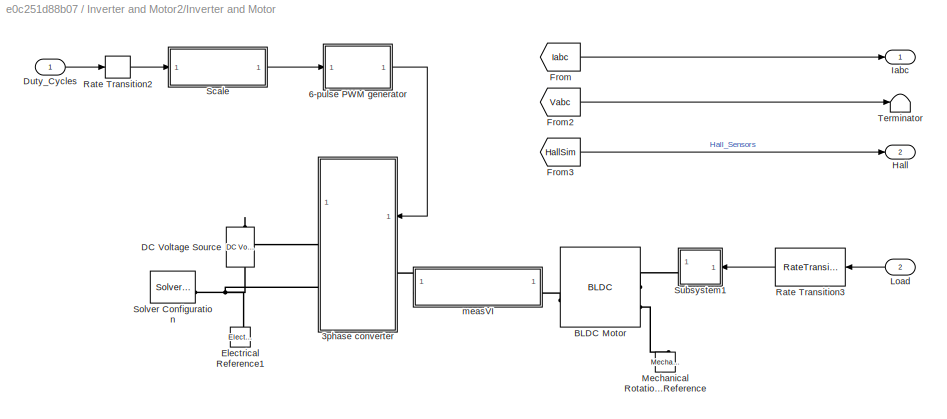
BLOCK [SubSystem] Inverter and Motor2/Inverter and Motor
  VariantControl = get_param([bdroot '/Plant'],'Value')=='0'
BLOCK [SubSystem] Inverter and Motor2/Inverter and Motor/3phase converter
BLOCK [PMIOPort] Inverter and Motor2/Inverter and Motor/3phase converter/+
  Side = Right
BLOCK [PMIOPort] Inverter and Motor2/Inverter and Motor/3phase converter/-
  Port = 3
  Side = Right
BLOCK [Demux] Inverter and Motor2/Inverter and Motor/3phase converter/Demux
  Outputs = 6
BLOCK [Reference] Inverter and Motor2/Inverter and Motor/3phase converter/Inverter  REF=ee_lib/Semiconductors &
Converters/Converters/Converter
(Three-Phase)
  SourceBlock = ee_lib/Semiconductors &\nConverters/Converters/Converter\n(Three-Phase)
  SourceType = Converter\n(Three-Phase)
BLOCK [Reference] Inverter and Motor2/Inverter and Motor/3phase converter/Simulink-PS Converter  REF=nesl_utility/Simulink-PS
Converter
  SourceBlock = nesl_utility/Simulink-PS\nConverter
  SourceType = Simulink-PS\nConverter
BLOCK [Reference] Inverter and Motor2/Inverter and Motor/3phase converter/Simulink-PS Converter1  REF=nesl_utility/Simulink-PS
Converter
  SourceBlock = nesl_utility/Simulink-PS\nConverter
  SourceType = Simulink-PS\nConverter
BLOCK [Reference] Inverter and Motor2/Inverter and Motor/3phase converter/Simulink-PS Converter2  REF=nesl_utility/Simulink-PS
Converter
  SourceBlock = nesl_utility/Simulink-PS\nConverter
  SourceType = Simulink-PS\nConverter
BLOCK [Reference] Inverter and Motor2/Inverter and Motor/3phase converter/Simulink-PS Converter3  REF=nesl_utility/Simulink-PS
Converter
  SourceBlock = nesl_utility/Simulink-PS\nConverter
  SourceType = Simulink-PS\nConverter
BLOCK [Reference] Inverter and Motor2/Inverter and Motor/3phase converter/Simulink-PS Converter4  REF=nesl_utility/Simulink-PS
Converter
  SourceBlock = nesl_utility/Simulink-PS\nConverter
  SourceType = Simulink-PS\nConverter
BLOCK [Reference] Inverter and Motor2/Inverter and Motor/3phase converter/Simulink-PS Converter5  REF=nesl_utility/Simulink-PS
Converter
  SourceBlock = nesl_utility/Simulink-PS\nConverter
  SourceType = Simulink-PS\nConverter
BLOCK [Reference] Inverter and Motor2/Inverter and Motor/3phase converter/Six-Pulse Gate Multiplexer  REF=ee_lib/Semiconductors &
Converters/Converters/Six-Pulse Gate
Multiplexer
  SourceBlock = ee_lib/Semiconductors &\nConverters/Converters/Six-Pulse Gate\nMultiplexer
  SourceType = Six-Pulse Gate\nMultiplexer
BLOCK [Inport] Inverter and Motor2/Inverter and Motor/3phase converter/g
BLOCK [PMIOPort] Inverter and Motor2/Inverter and Motor/3phase converter/~
  Port = 2
  Side = Left
BLOCK [SubSystem] Inverter and Motor2/Inverter and Motor/6-pulse PWM generator
BLOCK [Inport] Inverter and Motor2/Inverter and Motor/6-pulse PWM generator/ModWave
BLOCK [Relay] Inverter and Motor2/Inverter and Motor/6-pulse PWM generator/Relay
BLOCK [Reference] Inverter and Motor2/Inverter and Motor/6-pulse PWM generator/Repeating Sequence Interpolated  REF=simulink/Sources/Repeating
Sequence
Interpolated
  SourceBlock = simulink/Sources/Repeating\nSequence\nInterpolated
  SourceType = Repeating Sequence Interpolated
BLOCK [Sum] Inverter and Motor2/Inverter and Motor/6-pulse PWM generator/Sum
  Inputs = |+-
BLOCK [Outport] Inverter and Motor2/Inverter and Motor/6-pulse PWM generator/g
  NameLocation = top
BLOCK [Reference] Inverter and Motor2/Inverter and Motor/BLDC Motor  REF=ee_lib/Electromechanical/Permanent Magnet/BLDC
  SourceBlock = ee_lib/Electromechanical/Permanent Magnet/BLDC
  SourceType = BLDC
BLOCK [Reference] Inverter and Motor2/Inverter and Motor/DC Voltage Source  REF=fl_lib/Electrical/Electrical Sources/DC Voltage Source
  NameLocation = left
  SourceBlock = fl_lib/Electrical/Electrical Sources/DC Voltage Source
  SourceType = DC Voltage Source
BLOCK [Inport] Inverter and Motor2/Inverter and Motor/Duty_Cycles
BLOCK [Reference] Inverter and Motor2/Inverter and Motor/Electrical Reference1  REF=fl_lib/Electrical/Electrical Elements/Electrical Reference
  NameLocation = right
  SourceBlock = fl_lib/Electrical/Electrical Elements/Electrical Reference
  SourceType = Electrical Reference
BLOCK [From] Inverter and Motor2/Inverter and Motor/From
  GotoTag = Iabc
  TagVisibility = global
BLOCK [From] Inverter and Motor2/Inverter and Motor/From2
  GotoTag = Vabc
  TagVisibility = global
BLOCK [From] Inverter and Motor2/Inverter and Motor/From3
  GotoTag = HallSim
  TagVisibility = global
BLOCK [Outport] Inverter and Motor2/Inverter and Motor/Hall
  Port = 2
BLOCK [Outport] Inverter and Motor2/Inverter and Motor/Iabc
BLOCK [Inport] Inverter and Motor2/Inverter and Motor/Load
  Port = 2
BLOCK [Reference] Inverter and Motor2/Inverter and Motor/Mechanical Rotational Reference  REF=fl_lib/Mechanical/Rotational Elements/Mechanical
Rotational Reference
  NameLocation = right
  SourceBlock = fl_lib/Mechanical/Rotational Elements/Mechanical\nRotational Reference
  SourceType = Mechanical\nRotational Reference
BLOCK [RateTransition] Inverter and Motor2/Inverter and Motor/Rate Transition2
  Deterministic = off
  OutPortSampleTime = Ts_motor_simscape
BLOCK [RateTransition] Inverter and Motor2/Inverter and Motor/Rate Transition3
  Deterministic = off
  NameLocation = top
  OutPortSampleTime = Ts_motor_simscape
BLOCK [SubSystem] Inverter and Motor2/Inverter and Motor/Scale
BLOCK [Constant] Inverter and Motor2/Inverter and Motor/Scale/Constant
  OutDataTypeStr = single
  SampleTime = Ts_motor_simscape
  Value = 0
BLOCK [DataTypeConversion] Inverter and Motor2/Inverter and Motor/Scale/Data Type Conversion
  RndMeth = Floor
  SaturateOnIntegerOverflow = off
BLOCK [Gain] Inverter and Motor2/Inverter and Motor/Scale/Gain
BLOCK [Outport] Inverter and Motor2/Inverter and Motor/Scale/ModWave
BLOCK [RateTransition] Inverter and Motor2/Inverter and Motor/Scale/Rate Transition
BLOCK [Sum] Inverter and Motor2/Inverter and Motor/Scale/Sum
  Inputs = |++
BLOCK [Inport] Inverter and Motor2/Inverter and Motor/Scale/duty_abc
BLOCK [Reference] Inverter and Motor2/Inverter and Motor/Solver Configuration  REF=nesl_utility/Solver
Configuration
  SourceBlock = nesl_utility/Solver\nConfiguration
  SourceType = Solver\nConfiguration
BLOCK [SubSystem] Inverter and Motor2/Inverter and Motor/Subsystem1
  NameLocation = top
BLOCK [DataTypeConversion] Inverter and Motor2/Inverter and Motor/Subsystem1/Data Type Conversion1
  NameLocation = top
  RndMeth = Floor
  SaturateOnIntegerOverflow = off
BLOCK [Gain] Inverter and Motor2/Inverter and Motor/Subsystem1/Gain
  Gain = 1/bldc.N_base
BLOCK [Gain] Inverter and Motor2/Inverter and Motor/Subsystem1/Gain1
  Gain = -1
  NameLocation = top
BLOCK [Reference] Inverter and Motor2/Inverter and Motor/Subsystem1/Ideal Rotational Motion Sensor  REF=fl_lib/Mechanical/Mechanical Sensors/Ideal Rotational
Motion Sensor
  SourceBlock = fl_lib/Mechanical/Mechanical Sensors/Ideal Rotational\nMotion Sensor
  SourceType = Ideal Rotational\nMotion Sensor
BLOCK [Reference] Inverter and Motor2/Inverter and Motor/Subsystem1/Ideal Torque Source  REF=fl_lib/Mechanical/Mechanical Sources/Ideal Torque Source
  SourceBlock = fl_lib/Mechanical/Mechanical Sources/Ideal Torque Source
  SourceType = Ideal Torque Source
BLOCK [Reference] Inverter and Motor2/Inverter and Motor/Subsystem1/Mechanical Rotational Reference1  REF=fl_lib/Mechanical/Rotational Elements/Mechanical
Rotational Reference
  NameLocation = top
  SourceBlock = fl_lib/Mechanical/Rotational Elements/Mechanical\nRotational Reference
  SourceType = Mechanical\nRotational Reference
BLOCK [Reference] Inverter and Motor2/Inverter and Motor/Subsystem1/Mechanical Rotational Reference2  REF=fl_lib/Mechanical/Rotational Elements/Mechanical
Rotational Reference
  NameLocation = top
  SourceBlock = fl_lib/Mechanical/Rotational Elements/Mechanical\nRotational Reference
  SourceType = Mechanical\nRotational Reference
BLOCK [Reference] Inverter and Motor2/Inverter and Motor/Subsystem1/PS-Simulink Converter  REF=nesl_utility/PS-Simulink
Converter
  SourceBlock = nesl_utility/PS-Simulink\nConverter
  SourceType = PS-Simulink\nConverter
BLOCK [Reference] Inverter and Motor2/Inverter and Motor/Subsystem1/PS-Simulink Converter1  REF=nesl_utility/PS-Simulink
Converter
  SourceBlock = nesl_utility/PS-Simulink\nConverter
  SourceType = PS-Simulink\nConverter
BLOCK [PMIOPort] Inverter and Motor2/Inverter and Motor/Subsystem1/R 
  Side = Right
BLOCK [RateTransition] Inverter and Motor2/Inverter and Motor/Subsystem1/Rate Transition1
  NameLocation = top
BLOCK [Scope] Inverter and Motor2/Inverter and Motor/Subsystem1/Scope
  Floating = off
  NumInputPorts = 1
  ScopeSpecificationString = Simulink.scopes.TimeScopeBlockCfg('CurrentConfiguration', extmgr.ConfigurationSet(extmgr.Configuration('Core','General UI',true),extmgr.Configuration('Core','Source UI',true),extmgr.Configuration('Sources','WiredSimulink',true,'DataLoggingVariableName','ScopeData1'),extmgr.Configuration('Visuals','Time Domain',true,'SerializedDisplays',{struct('MinYLimReal','-1.04188','MaxYLimReal','1.28794','YLab...<+1370ch>
BLOCK [SubSystem] Inverter and Motor2/Inverter and Motor/Subsystem1/Sensing w a
  NameLocation = right
BLOCK [Goto] Inverter and Motor2/Inverter and Motor/Subsystem1/Sensing w a/Goto1
  GotoTag = HallSim
  TagVisibility = global
BLOCK [SubSystem] Inverter and Motor2/Inverter and Motor/Subsystem1/Sensing w a/Hall sensor
BLOCK [Constant] Inverter and Motor2/Inverter and Motor/Subsystem1/Sensing w a/Hall sensor/Constant
  Value = 30
BLOCK [Constant] Inverter and Motor2/Inverter and Motor/Subsystem1/Sensing w a/Hall sensor/Constant1
  Value = -150
BLOCK [Constant] Inverter and Motor2/Inverter and Motor/Subsystem1/Sensing w a/Hall sensor/Constant2
  Value = 150
BLOCK [Constant] Inverter and Motor2/Inverter and Motor/Subsystem1/Sensing w a/Hall sensor/Constant3
  Value = -30
BLOCK [Constant] Inverter and Motor2/Inverter and Motor/Subsystem1/Sensing w a/Hall sensor/Constant4
  Value = -90
BLOCK [Constant] Inverter and Motor2/Inverter and Motor/Subsystem1/Sensing w a/Hall sensor/Constant5
  Value = 90
BLOCK [Outport] Inverter and Motor2/Inverter and Motor/Subsystem1/Sensing w a/Hall sensor/Hall
  VectorParamsAs1DForOutWhenUnconnected = off
BLOCK [Logic] Inverter and Motor2/Inverter and Motor/Subsystem1/Sensing w a/Hall sensor/Logical Operator
  AllPortsSameDT = off
  Operator = OR
  OutDataTypeStr = boolean
BLOCK [Logic] Inverter and Motor2/Inverter and Motor/Subsystem1/Sensing w a/Hall sensor/Logical Operator1
  AllPortsSameDT = off
  Operator = OR
  OutDataTypeStr = boolean
BLOCK [Logic] Inverter and Motor2/Inverter and Motor/Subsystem1/Sensing w a/Hall sensor/Logical Operator2
  AllPortsSameDT = off
  OutDataTypeStr = boolean
BLOCK [Mux] Inverter and Motor2/Inverter and Motor/Subsystem1/Sensing w a/Hall sensor/Mux
  DisplayOption = bar
  Inputs = 3
BLOCK [RelationalOperator] Inverter and Motor2/Inverter and Motor/Subsystem1/Sensing w a/Hall sensor/Relational Operator1
  Operator = <=
BLOCK [RelationalOperator] Inverter and Motor2/Inverter and Motor/Subsystem1/Sensing w a/Hall sensor/Relational Operator2
BLOCK [RelationalOperator] Inverter and Motor2/Inverter and Motor/Subsystem1/Sensing w a/Hall sensor/Relational Operator3
  Operator = <=
BLOCK [RelationalOperator] Inverter and Motor2/Inverter and Motor/Subsystem1/Sensing w a/Hall sensor/Relational Operator4
BLOCK [RelationalOperator] Inverter and Motor2/Inverter and Motor/Subsystem1/Sensing w a/Hall sensor/Relational Operator5
  Operator = <=
BLOCK [RelationalOperator] Inverter and Motor2/Inverter and Motor/Subsystem1/Sensing w a/Hall sensor/Relational Operator6
BLOCK [SubSystem] Inverter and Motor2/Inverter and Motor/Subsystem1/Sensing w a/Hall sensor/Subsystem
BLOCK [Trigonometry] Inverter and Motor2/Inverter and Motor/Subsystem1/Sensing w a/Hall sensor/Subsystem/Trigonometric Function
  Operator = sincos
BLOCK [Trigonometry] Inverter and Motor2/Inverter and Motor/Subsystem1/Sensing w a/Hall sensor/Subsystem/Trigonometric Function2
  Operator = atan2
BLOCK [Outport] Inverter and Motor2/Inverter and Motor/Subsystem1/Sensing w a/Hall sensor/Subsystem/deg
  VectorParamsAs1DForOutWhenUnconnected = off
BLOCK [Gain] Inverter and Motor2/Inverter and Motor/Subsystem1/Sensing w a/Hall sensor/Subsystem/mech->elec
  Gain = bldc.p
BLOCK [Gain] Inverter and Motor2/Inverter and Motor/Subsystem1/Sensing w a/Hall sensor/Subsystem/rad->deg
  Gain = 180/pi
  OutDataTypeStr = Inherit: Same as input
  ParamDataTypeStr = Inherit: Same as input
  SaturateOnIntegerOverflow = on
BLOCK [Inport] Inverter and Motor2/Inverter and Motor/Subsystem1/Sensing w a/Hall sensor/Subsystem/theta
BLOCK [Inport] Inverter and Motor2/Inverter and Motor/Subsystem1/Sensing w a/Hall sensor/theta
BLOCK [Reference] Inverter and Motor2/Inverter and Motor/Subsystem1/Sensing w a/MRRef  REF=fl_lib/Mechanical/Rotational Elements/Mechanical
Rotational Reference
  NameLocation = left
  SourceBlock = fl_lib/Mechanical/Rotational Elements/Mechanical\nRotational Reference
  SourceType = Mechanical\nRotational Reference
BLOCK [Reference] Inverter and Motor2/Inverter and Motor/Subsystem1/Sensing w a/Motion Sensor  REF=fl_lib/Mechanical/Mechanical Sensors/Ideal Rotational
Motion Sensor
  NameLocation = right
  SourceBlock = fl_lib/Mechanical/Mechanical Sensors/Ideal Rotational\nMotion Sensor
  SourceType = Ideal Rotational\nMotion Sensor
BLOCK [Reference] Inverter and Motor2/Inverter and Motor/Subsystem1/Sensing w a/PS-Simulink Converter1  REF=nesl_utility/PS-Simulink
Converter
  SourceBlock = nesl_utility/PS-Simulink\nConverter
  SourceType = PS-Simulink\nConverter
BLOCK [Reference] Inverter and Motor2/Inverter and Motor/Subsystem1/Sensing w a/PS-Simulink Converter2  REF=nesl_utility/PS-Simulink
Converter
  SourceBlock = nesl_utility/PS-Simulink\nConverter
  SourceType = PS-Simulink\nConverter
BLOCK [PMIOPort] Inverter and Motor2/Inverter and Motor/Subsystem1/Sensing w a/R
  Side = Left
BLOCK [Terminator] Inverter and Motor2/Inverter and Motor/Subsystem1/Sensing w a/Terminator
BLOCK [Reference] Inverter and Motor2/Inverter and Motor/Subsystem1/Simulink-PS Converter  REF=nesl_utility/Simulink-PS
Converter
  NameLocation = top
  SourceBlock = nesl_utility/Simulink-PS\nConverter
  SourceType = Simulink-PS\nConverter
BLOCK [Terminator] Inverter and Motor2/Inverter and Motor/Subsystem1/Terminator
BLOCK [Inport] Inverter and Motor2/Inverter and Motor/Subsystem1/Tm
BLOCK [Terminator] Inverter and Motor2/Inverter and Motor/Terminator
BLOCK [SubSystem] Inverter and Motor2/Inverter and Motor/measVI
BLOCK [Reference] Inverter and Motor2/Inverter and Motor/measVI/Current Sensor (Three-Phase)  REF=ee_lib/Sensors &
Transducers/Current Sensor
(Three-Phase)
  SourceBlock = ee_lib/Sensors &\nTransducers/Current Sensor\n(Three-Phase)
  SourceType = Current Sensor\n(Three-Phase)
BLOCK [Goto] Inverter and Motor2/Inverter and Motor/measVI/Goto
  GotoTag = Iabc
  TagVisibility = global
BLOCK [Goto] Inverter and Motor2/Inverter and Motor/measVI/Goto1
  GotoTag = Vabc
  TagVisibility = global
BLOCK [Reference] Inverter and Motor2/Inverter and Motor/measVI/Line Voltage Sensor (Three-Phase)  REF=ee_lib/Sensors &
Transducers/Line Voltage Sensor
(Three-Phase)
  NameLocation = left
  SourceBlock = ee_lib/Sensors &\nTransducers/Line Voltage Sensor\n(Three-Phase)
  SourceType = Line Voltage Sensor\n(Three-Phase)
BLOCK [Reference] Inverter and Motor2/Inverter and Motor/measVI/PS-Simulink Converter2  REF=nesl_utility/PS-Simulink
Converter
  SourceBlock = nesl_utility/PS-Simulink\nConverter
  SourceType = PS-Simulink\nConverter
BLOCK [Reference] Inverter and Motor2/Inverter and Motor/measVI/PS-Simulink Converter3  REF=nesl_utility/PS-Simulink
Converter
  SourceBlock = nesl_utility/PS-Simulink\nConverter
  SourceType = PS-Simulink\nConverter
BLOCK [PMIOPort] Inverter and Motor2/Inverter and Motor/measVI/~1 From Inverter
  Side = Left
BLOCK [PMIOPort] Inverter and Motor2/Inverter and Motor/measVI/~2 to Motor
  Port = 2
  Side = Right
BLOCK [SubSystem] Inverter and Motor2/Load_Profile (Torque)
BLOCK [DataTypeConversion] Inverter and Motor2/Load_Profile (Torque)/Data Type Conversion
  OutDataTypeStr = single
  RndMeth = Floor
  SaturateOnIntegerOverflow = off
BLOCK [Reference] Inverter and Motor2/Load_Profile (Torque)/IIR Filter  REF=mcbcontrolslib/IIR Filter
  SourceBlock = mcbcontrolslib/IIR Filter
  SourceType = IIR Filter
BLOCK [Outport] Inverter and Motor2/Load_Profile (Torque)/Load_Trq
  VectorParamsAs1DForOutWhenUnconnected = off
BLOCK [Constant] Inverter and Motor2/Load_Profile (Torque)/Motor Load reverse 
  NameLocation = top
  OutDataTypeStr = dataType
  SampleTime = -1
  Value = -0.5*bldc.T_rated
BLOCK [Step] Inverter and Motor2/Load_Profile (Torque)/Reversal
  NameLocation = top
  SampleTime = Ts_simulink
  Time = 1.2
BLOCK [Switch] Inverter and Motor2/Load_Profile (Torque)/Switch
  Criteria = u2 > Threshold
  InputSameDT = off
  SaturateOnIntegerOverflow = off
BLOCK [Step] Inverter and Motor2/Load_Profile (Torque)/T_load
  After = 0.5*bldc.T_rated
  Before = 0.05*bldc.T_rated
  SampleTime = Ts_simulink
  Time = 0.8
BLOCK [RateTransition] Inverter and Motor2/RT2
  Deterministic = off
  OutPortSampleTime = Ts_simulink
BLOCK [RateTransition] Inverter and Motor2/RT3
  Deterministic = off
  OutPortSampleTime = Ts_simulink
BLOCK [SubSystem] Inverter and Motor2/Sensor_Measurements
BLOCK [Sum] Inverter and Motor2/Sensor_Measurements/Add Offset
  IconShape = rectangular
  RndMeth = Simplest
BLOCK [DataTypeConversion] Inverter and Motor2/Sensor_Measurements/Data Type Conversion2
  OutDataTypeStr = single
  RndMeth = Simplest
  SaturateOnIntegerOverflow = off
BLOCK [DataTypeConversion] Inverter and Motor2/Sensor_Measurements/Data Type Conversion4
  OutDataTypeStr = single
  RndMeth = Simplest
  SaturateOnIntegerOverflow = off
BLOCK [DataTypeConversion] Inverter and Motor2/Sensor_Measurements/Data Type Conversion6
  OutDataTypeStr = uint32
  RndMeth = Floor
  SaturateOnIntegerOverflow = off
BLOCK [Delay] Inverter and Motor2/Sensor_Measurements/Delay
  DelayLength = PI_params.delay_Currents
  InputPortMap = u0
BLOCK [Delay] Inverter and Motor2/Sensor_Measurements/Delay2
  DelayLength = PI_params.delay_Position
  InputPortMap = u0
BLOCK [Gain] Inverter and Motor2/Sensor_Measurements/Get ADC Count
  Gain = target.ADC_MaxCount/target.ADC_Vref
  OutDataTypeStr = uint16
  OutMax = target.ADC_MaxCount
  OutMin = 0
  RndMeth = Simplest
BLOCK [Gain] Inverter and Motor2/Sensor_Measurements/Get Current Sense Voltage
  Gain = inverter.ISenseVoltPerAmp
  OutDataTypeStr = Inherit: Same as input
  RndMeth = Simplest
BLOCK [Inport] Inverter and Motor2/Sensor_Measurements/Hall
  Port = 2
BLOCK [Outport] Inverter and Motor2/Sensor_Measurements/HallState
  Port = 2
BLOCK [SubSystem] Inverter and Motor2/Sensor_Measurements/Halls
BLOCK [Gain] Inverter and Motor2/Sensor_Measurements/Halls/Gain
  Gain = [4 2 1]
  Multiplication = Matrix(K*u)
BLOCK [SubSystem] Inverter and Motor2/Sensor_Measurements/Halls/Hall Signals HW
BLOCK [Reference] Inverter and Motor2/Sensor_Measurements/Halls/Hall Signals HW/Bitwise AND1  REF=simulink/Logic and Bit
Operations/Bitwise
Operator
  SourceBlock = simulink/Logic and Bit\nOperations/Bitwise\nOperator
  SourceType = Bitwise Operator
BLOCK [Reference] Inverter and Motor2/Sensor_Measurements/Halls/Hall Signals HW/Bitwise AND2  REF=simulink/Logic and Bit
Operations/Bitwise
Operator
  SourceBlock = simulink/Logic and Bit\nOperations/Bitwise\nOperator
  SourceType = Bitwise Operator
BLOCK [Reference] Inverter and Motor2/Sensor_Measurements/Halls/Hall Signals HW/Bitwise AND3  REF=simulink/Logic and Bit
Operations/Bitwise
Operator
  SourceBlock = simulink/Logic and Bit\nOperations/Bitwise\nOperator
  SourceType = Bitwise Operator
BLOCK [DataTypeConversion] Inverter and Motor2/Sensor_Measurements/Halls/Hall Signals HW/Data Type Conversion
  OutDataTypeStr = boolean
  RndMeth = Floor
  SaturateOnIntegerOverflow = off
BLOCK [DataTypeConversion] Inverter and Motor2/Sensor_Measurements/Halls/Hall Signals HW/Data Type Conversion1
  OutDataTypeStr = boolean
  RndMeth = Floor
  SaturateOnIntegerOverflow = off
BLOCK [DataTypeConversion] Inverter and Motor2/Sensor_Measurements/Halls/Hall Signals HW/Data Type Conversion2
  OutDataTypeStr = boolean
  RndMeth = Floor
  SaturateOnIntegerOverflow = off
BLOCK [Outport] Inverter and Motor2/Sensor_Measurements/Halls/Hall Signals HW/Hall Signals
BLOCK [Inport] Inverter and Motor2/Sensor_Measurements/Halls/Hall Signals HW/HallState
BLOCK [Mux] Inverter and Motor2/Sensor_Measurements/Halls/Hall Signals HW/Mux
  DisplayOption = bar
  Inputs = 3
BLOCK [SubSystem] Inverter and Motor2/Sensor_Measurements/Halls/Hall State Plant to HW
BLOCK [DataTypeConversion] Inverter and Motor2/Sensor_Measurements/Halls/Hall State Plant to HW/Data Type Conversion
  OutDataTypeStr = uint8
  RndMeth = Floor
  SaturateOnIntegerOverflow = off
BLOCK [Inport] Inverter and Motor2/Sensor_Measurements/Halls/Hall State Plant to HW/HallStatePlant
BLOCK [Outport] Inverter and Motor2/Sensor_Measurements/Halls/Hall State Plant to HW/HallstateHw
BLOCK [SubSystem] Inverter and Motor2/Sensor_Measurements/Halls/Hall State Plant to HW/If Action Subsystem
  TreatAsAtomicUnit = on
BLOCK [ActionPort] Inverter and Motor2/Sensor_Measurements/Halls/Hall State Plant to HW/If Action Subsystem/Action Port
  ActionPortLabel = case [ 1 ]:
BLOCK [Constant] Inverter and Motor2/Sensor_Measurements/Halls/Hall State Plant to HW/If Action Subsystem/Constant
  OutDataTypeStr = uint16
  Value = bldc.HallSequence(1)
BLOCK [Outport] Inverter and Motor2/Sensor_Measurements/Halls/Hall State Plant to HW/If Action Subsystem/Out1
BLOCK [SubSystem] Inverter and Motor2/Sensor_Measurements/Halls/Hall State Plant to HW/If Action Subsystem1
  TreatAsAtomicUnit = on
BLOCK [ActionPort] Inverter and Motor2/Sensor_Measurements/Halls/Hall State Plant to HW/If Action Subsystem1/Action Port
  ActionPortLabel = case [ 5 ]:
BLOCK [Constant] Inverter and Motor2/Sensor_Measurements/Halls/Hall State Plant to HW/If Action Subsystem1/Constant
  OutDataTypeStr = uint16
  Value = bldc.HallSequence(2)
BLOCK [Outport] Inverter and Motor2/Sensor_Measurements/Halls/Hall State Plant to HW/If Action Subsystem1/Out1
BLOCK [SubSystem] Inverter and Motor2/Sensor_Measurements/Halls/Hall State Plant to HW/If Action Subsystem2
  TreatAsAtomicUnit = on
BLOCK [ActionPort] Inverter and Motor2/Sensor_Measurements/Halls/Hall State Plant to HW/If Action Subsystem2/Action Port
  ActionPortLabel = case [ 4 ]:
BLOCK [Constant] Inverter and Motor2/Sensor_Measurements/Halls/Hall State Plant to HW/If Action Subsystem2/Constant
  OutDataTypeStr = uint16
  Value = bldc.HallSequence(3)
BLOCK [Outport] Inverter and Motor2/Sensor_Measurements/Halls/Hall State Plant to HW/If Action Subsystem2/Out1
BLOCK [SubSystem] Inverter and Motor2/Sensor_Measurements/Halls/Hall State Plant to HW/If Action Subsystem3
  TreatAsAtomicUnit = on
BLOCK [ActionPort] Inverter and Motor2/Sensor_Measurements/Halls/Hall State Plant to HW/If Action Subsystem3/Action Port
  ActionPortLabel = case [ 6 ]:
BLOCK [Constant] Inverter and Motor2/Sensor_Measurements/Halls/Hall State Plant to HW/If Action Subsystem3/Constant
  OutDataTypeStr = uint16
  Value = bldc.HallSequence(4)
BLOCK [Outport] Inverter and Motor2/Sensor_Measurements/Halls/Hall State Plant to HW/If Action Subsystem3/Out1
BLOCK [SubSystem] Inverter and Motor2/Sensor_Measurements/Halls/Hall State Plant to HW/If Action Subsystem4
  TreatAsAtomicUnit = on
BLOCK [ActionPort] Inverter and Motor2/Sensor_Measurements/Halls/Hall State Plant to HW/If Action Subsystem4/Action Port
  ActionPortLabel = case [ 2 ]:
BLOCK [Constant] Inverter and Motor2/Sensor_Measurements/Halls/Hall State Plant to HW/If Action Subsystem4/Constant
  OutDataTypeStr = uint16
  Value = bldc.HallSequence(5)
BLOCK [Outport] Inverter and Motor2/Sensor_Measurements/Halls/Hall State Plant to HW/If Action Subsystem4/Out1
BLOCK [SubSystem] Inverter and Motor2/Sensor_Measurements/Halls/Hall State Plant to HW/If Action Subsystem5
  TreatAsAtomicUnit = on
BLOCK [ActionPort] Inverter and Motor2/Sensor_Measurements/Halls/Hall State Plant to HW/If Action Subsystem5/Action Port
  ActionPortLabel = case [ 3 ]:
BLOCK [Constant] Inverter and Motor2/Sensor_Measurements/Halls/Hall State Plant to HW/If Action Subsystem5/Constant
  OutDataTypeStr = uint16
  Value = bldc.HallSequence(6)
BLOCK [Outport] Inverter and Motor2/Sensor_Measurements/Halls/Hall State Plant to HW/If Action Subsystem5/Out1
BLOCK [Merge] Inverter and Motor2/Sensor_Measurements/Halls/Hall State Plant to HW/Merge
  Inputs = 6
BLOCK [SwitchCase] Inverter and Motor2/Sensor_Measurements/Halls/Hall State Plant to HW/Switch Case
  CaseConditions = {1,5,4,6,2,3}
  ShowDefaultCase = off
BLOCK [Sum] Inverter and Motor2/Sensor_Measurements/Halls/Sum of Elements
  IconShape = rectangular
  Inputs = +
BLOCK [Inport] Inverter and Motor2/Sensor_Measurements/Halls/x
BLOCK [Outport] Inverter and Motor2/Sensor_Measurements/Halls/y
  VectorParamsAs1DForOutWhenUnconnected = off
BLOCK [Inport] Inverter and Motor2/Sensor_Measurements/Iabc meas
BLOCK [Outport] Inverter and Motor2/Sensor_Measurements/Iabc meas ADC
  VectorParamsAs1DForOutWhenUnconnected = off
BLOCK [SubSystem] Inverter and Motor2/Sensor_Measurements/LowerSwitchCurrents
BLOCK [Constant] Inverter and Motor2/Sensor_Measurements/LowerSwitchCurrents/Constant
  Value = 0
BLOCK [Inport] Inverter and Motor2/Sensor_Measurements/LowerSwitchCurrents/In1
BLOCK [Switch] Inverter and Motor2/Sensor_Measurements/LowerSwitchCurrents/Switch
  Criteria = u2 > Threshold
  InputSameDT = off
  SaturateOnIntegerOverflow = off
BLOCK [Outport] Inverter and Motor2/Sensor_Measurements/LowerSwitchCurrents/cu
BLOCK [Gain] Inverter and Motor2/Sensor_Measurements/Offset voltage
  Gain = target.ADC_Vref / target.ADC_MaxCount
  RndMeth = Simplest
BLOCK [Saturate] Inverter and Motor2/Sensor_Measurements/Saturate at ADC Vref
  LowerLimit = 0
  UpperLimit = target.ADC_Vref
BLOCK [Saturate] Inverter and Motor2/Sensor_Measurements/Saturate at inverter Vref
  LowerLimit = 0
  UpperLimit = inverter.ISenseVref
BLOCK [Selector] Inverter and Motor2/Sensor_Measurements/Selector
  IndexOptions = Index vector (dialog)
  Indices = [1 2 3]
  InputPortWidth = 3
  OutputSizes = 1
BLOCK [Constant] Inverter and Motor2/Sensor_Measurements/~1.65V in ADC counts
  OutDataTypeStr = single
  SampleTime = -1
  Value = [inverter.CtSensAOffset inverter.CtSensBOffset  inverter.CtSensCOffset]
BLOCK [Outport] Inverter and Motor2/fb_sim
BLOCK [SubSystem] Inverter and Motor3
BLOCK [BusCreator] Inverter and Motor3/Bus Creator
  DisplayOption = bar
  InheritFromInputs = on
  Inputs = 2
BLOCK [Inport] Inverter and Motor3/Duty_Cycles
BLOCK [SubSystem] Inverter and Motor3/Inverter and Motor
  VariantControl = get_param([bdroot '/Plant'],'Value')=='0'
BLOCK [SubSystem] Inverter and Motor3/Inverter and Motor/3phase converter
BLOCK [PMIOPort] Inverter and Motor3/Inverter and Motor/3phase converter/+
  Side = Right
BLOCK [PMIOPort] Inverter and Motor3/Inverter and Motor/3phase converter/-
  Port = 3
  Side = Right
BLOCK [Demux] Inverter and Motor3/Inverter and Motor/3phase converter/Demux
  Outputs = 6
BLOCK [Reference] Inverter and Motor3/Inverter and Motor/3phase converter/Inverter  REF=ee_lib/Semiconductors &
Converters/Converters/Converter
(Three-Phase)
  SourceBlock = ee_lib/Semiconductors &\nConverters/Converters/Converter\n(Three-Phase)
  SourceType = Converter\n(Three-Phase)
BLOCK [Reference] Inverter and Motor3/Inverter and Motor/3phase converter/Simulink-PS Converter  REF=nesl_utility/Simulink-PS
Converter
  SourceBlock = nesl_utility/Simulink-PS\nConverter
  SourceType = Simulink-PS\nConverter
BLOCK [Reference] Inverter and Motor3/Inverter and Motor/3phase converter/Simulink-PS Converter1  REF=nesl_utility/Simulink-PS
Converter
  SourceBlock = nesl_utility/Simulink-PS\nConverter
  SourceType = Simulink-PS\nConverter
BLOCK [Reference] Inverter and Motor3/Inverter and Motor/3phase converter/Simulink-PS Converter2  REF=nesl_utility/Simulink-PS
Converter
  SourceBlock = nesl_utility/Simulink-PS\nConverter
  SourceType = Simulink-PS\nConverter
BLOCK [Reference] Inverter and Motor3/Inverter and Motor/3phase converter/Simulink-PS Converter3  REF=nesl_utility/Simulink-PS
Converter
  SourceBlock = nesl_utility/Simulink-PS\nConverter
  SourceType = Simulink-PS\nConverter
BLOCK [Reference] Inverter and Motor3/Inverter and Motor/3phase converter/Simulink-PS Converter4  REF=nesl_utility/Simulink-PS
Converter
  SourceBlock = nesl_utility/Simulink-PS\nConverter
  SourceType = Simulink-PS\nConverter
BLOCK [Reference] Inverter and Motor3/Inverter and Motor/3phase converter/Simulink-PS Converter5  REF=nesl_utility/Simulink-PS
Converter
  SourceBlock = nesl_utility/Simulink-PS\nConverter
  SourceType = Simulink-PS\nConverter
BLOCK [Reference] Inverter and Motor3/Inverter and Motor/3phase converter/Six-Pulse Gate Multiplexer  REF=ee_lib/Semiconductors &
Converters/Converters/Six-Pulse Gate
Multiplexer
  SourceBlock = ee_lib/Semiconductors &\nConverters/Converters/Six-Pulse Gate\nMultiplexer
  SourceType = Six-Pulse Gate\nMultiplexer
BLOCK [Inport] Inverter and Motor3/Inverter and Motor/3phase converter/g
BLOCK [PMIOPort] Inverter and Motor3/Inverter and Motor/3phase converter/~
  Port = 2
  Side = Left
BLOCK [SubSystem] Inverter and Motor3/Inverter and Motor/6-pulse PWM generator
BLOCK [Inport] Inverter and Motor3/Inverter and Motor/6-pulse PWM generator/ModWave
BLOCK [Relay] Inverter and Motor3/Inverter and Motor/6-pulse PWM generator/Relay
BLOCK [Reference] Inverter and Motor3/Inverter and Motor/6-pulse PWM generator/Repeating Sequence Interpolated  REF=simulink/Sources/Repeating
Sequence
Interpolated
  SourceBlock = simulink/Sources/Repeating\nSequence\nInterpolated
  SourceType = Repeating Sequence Interpolated
BLOCK [Sum] Inverter and Motor3/Inverter and Motor/6-pulse PWM generator/Sum
  Inputs = |+-
BLOCK [Outport] Inverter and Motor3/Inverter and Motor/6-pulse PWM generator/g
  NameLocation = top
BLOCK [Reference] Inverter and Motor3/Inverter and Motor/BLDC Motor  REF=ee_lib/Electromechanical/Permanent Magnet/BLDC
  SourceBlock = ee_lib/Electromechanical/Permanent Magnet/BLDC
  SourceType = BLDC
BLOCK [Reference] Inverter and Motor3/Inverter and Motor/DC Voltage Source  REF=fl_lib/Electrical/Electrical Sources/DC Voltage Source
  NameLocation = left
  SourceBlock = fl_lib/Electrical/Electrical Sources/DC Voltage Source
  SourceType = DC Voltage Source
BLOCK [Inport] Inverter and Motor3/Inverter and Motor/Duty_Cycles
BLOCK [Reference] Inverter and Motor3/Inverter and Motor/Electrical Reference1  REF=fl_lib/Electrical/Electrical Elements/Electrical Reference
  NameLocation = right
  SourceBlock = fl_lib/Electrical/Electrical Elements/Electrical Reference
  SourceType = Electrical Reference
BLOCK [From] Inverter and Motor3/Inverter and Motor/From
  GotoTag = Iabc
  TagVisibility = global
BLOCK [From] Inverter and Motor3/Inverter and Motor/From2
  GotoTag = Vabc
  TagVisibility = global
BLOCK [From] Inverter and Motor3/Inverter and Motor/From3
  GotoTag = HallSim
  TagVisibility = global
BLOCK [Outport] Inverter and Motor3/Inverter and Motor/Hall
  Port = 2
BLOCK [Outport] Inverter and Motor3/Inverter and Motor/Iabc
BLOCK [Inport] Inverter and Motor3/Inverter and Motor/Load
  Port = 2
BLOCK [Reference] Inverter and Motor3/Inverter and Motor/Mechanical Rotational Reference  REF=fl_lib/Mechanical/Rotational Elements/Mechanical
Rotational Reference
  NameLocation = right
  SourceBlock = fl_lib/Mechanical/Rotational Elements/Mechanical\nRotational Reference
  SourceType = Mechanical\nRotational Reference
BLOCK [RateTransition] Inverter and Motor3/Inverter and Motor/Rate Transition2
  Deterministic = off
  OutPortSampleTime = Ts_motor_simscape
BLOCK [RateTransition] Inverter and Motor3/Inverter and Motor/Rate Transition3
  Deterministic = off
  NameLocation = top
  OutPortSampleTime = Ts_motor_simscape
BLOCK [SubSystem] Inverter and Motor3/Inverter and Motor/Scale
BLOCK [Constant] Inverter and Motor3/Inverter and Motor/Scale/Constant
  OutDataTypeStr = single
  SampleTime = Ts_motor_simscape
  Value = 0
BLOCK [DataTypeConversion] Inverter and Motor3/Inverter and Motor/Scale/Data Type Conversion
  RndMeth = Floor
  SaturateOnIntegerOverflow = off
BLOCK [Gain] Inverter and Motor3/Inverter and Motor/Scale/Gain
BLOCK [Outport] Inverter and Motor3/Inverter and Motor/Scale/ModWave
BLOCK [RateTransition] Inverter and Motor3/Inverter and Motor/Scale/Rate Transition
BLOCK [Sum] Inverter and Motor3/Inverter and Motor/Scale/Sum
  Inputs = |++
BLOCK [Inport] Inverter and Motor3/Inverter and Motor/Scale/duty_abc
BLOCK [Reference] Inverter and Motor3/Inverter and Motor/Solver Configuration  REF=nesl_utility/Solver
Configuration
  SourceBlock = nesl_utility/Solver\nConfiguration
  SourceType = Solver\nConfiguration
BLOCK [SubSystem] Inverter and Motor3/Inverter and Motor/Subsystem1
  NameLocation = top
BLOCK [DataTypeConversion] Inverter and Motor3/Inverter and Motor/Subsystem1/Data Type Conversion1
  NameLocation = top
  RndMeth = Floor
  SaturateOnIntegerOverflow = off
BLOCK [Gain] Inverter and Motor3/Inverter and Motor/Subsystem1/Gain
  Gain = 1/bldc.N_base
BLOCK [Gain] Inverter and Motor3/Inverter and Motor/Subsystem1/Gain1
  Gain = -1
  NameLocation = top
BLOCK [Reference] Inverter and Motor3/Inverter and Motor/Subsystem1/Ideal Rotational Motion Sensor  REF=fl_lib/Mechanical/Mechanical Sensors/Ideal Rotational
Motion Sensor
  SourceBlock = fl_lib/Mechanical/Mechanical Sensors/Ideal Rotational\nMotion Sensor
  SourceType = Ideal Rotational\nMotion Sensor
BLOCK [Reference] Inverter and Motor3/Inverter and Motor/Subsystem1/Ideal Torque Source  REF=fl_lib/Mechanical/Mechanical Sources/Ideal Torque Source
  SourceBlock = fl_lib/Mechanical/Mechanical Sources/Ideal Torque Source
  SourceType = Ideal Torque Source
BLOCK [Reference] Inverter and Motor3/Inverter and Motor/Subsystem1/Mechanical Rotational Reference1  REF=fl_lib/Mechanical/Rotational Elements/Mechanical
Rotational Reference
  NameLocation = top
  SourceBlock = fl_lib/Mechanical/Rotational Elements/Mechanical\nRotational Reference
  SourceType = Mechanical\nRotational Reference
BLOCK [Reference] Inverter and Motor3/Inverter and Motor/Subsystem1/Mechanical Rotational Reference2  REF=fl_lib/Mechanical/Rotational Elements/Mechanical
Rotational Reference
  NameLocation = top
  SourceBlock = fl_lib/Mechanical/Rotational Elements/Mechanical\nRotational Reference
  SourceType = Mechanical\nRotational Reference
BLOCK [Reference] Inverter and Motor3/Inverter and Motor/Subsystem1/PS-Simulink Converter  REF=nesl_utility/PS-Simulink
Converter
  SourceBlock = nesl_utility/PS-Simulink\nConverter
  SourceType = PS-Simulink\nConverter
BLOCK [Reference] Inverter and Motor3/Inverter and Motor/Subsystem1/PS-Simulink Converter1  REF=nesl_utility/PS-Simulink
Converter
  SourceBlock = nesl_utility/PS-Simulink\nConverter
  SourceType = PS-Simulink\nConverter
BLOCK [PMIOPort] Inverter and Motor3/Inverter and Motor/Subsystem1/R 
  Side = Right
BLOCK [RateTransition] Inverter and Motor3/Inverter and Motor/Subsystem1/Rate Transition1
  NameLocation = top
BLOCK [Scope] Inverter and Motor3/Inverter and Motor/Subsystem1/Scope
  Floating = off
  NumInputPorts = 1
  ScopeSpecificationString = Simulink.scopes.TimeScopeBlockCfg('CurrentConfiguration', extmgr.ConfigurationSet(extmgr.Configuration('Core','General UI',true),extmgr.Configuration('Core','Source UI',true),extmgr.Configuration('Sources','WiredSimulink',true,'DataLoggingVariableName','ScopeData1'),extmgr.Configuration('Visuals','Time Domain',true,'SerializedDisplays',{struct('MinYLimReal','-1.05555','MaxYLimReal','1.26452','YLab...<+1421ch>
BLOCK [SubSystem] Inverter and Motor3/Inverter and Motor/Subsystem1/Sensing w a
  NameLocation = right
BLOCK [Goto] Inverter and Motor3/Inverter and Motor/Subsystem1/Sensing w a/Goto1
  GotoTag = HallSim
  TagVisibility = global
BLOCK [SubSystem] Inverter and Motor3/Inverter and Motor/Subsystem1/Sensing w a/Hall sensor
BLOCK [Constant] Inverter and Motor3/Inverter and Motor/Subsystem1/Sensing w a/Hall sensor/Constant
  Value = 30
BLOCK [Constant] Inverter and Motor3/Inverter and Motor/Subsystem1/Sensing w a/Hall sensor/Constant1
  Value = -150
BLOCK [Constant] Inverter and Motor3/Inverter and Motor/Subsystem1/Sensing w a/Hall sensor/Constant2
  Value = 150
BLOCK [Constant] Inverter and Motor3/Inverter and Motor/Subsystem1/Sensing w a/Hall sensor/Constant3
  Value = -30
BLOCK [Constant] Inverter and Motor3/Inverter and Motor/Subsystem1/Sensing w a/Hall sensor/Constant4
  Value = -90
BLOCK [Constant] Inverter and Motor3/Inverter and Motor/Subsystem1/Sensing w a/Hall sensor/Constant5
  Value = 90
BLOCK [Outport] Inverter and Motor3/Inverter and Motor/Subsystem1/Sensing w a/Hall sensor/Hall
  VectorParamsAs1DForOutWhenUnconnected = off
BLOCK [Logic] Inverter and Motor3/Inverter and Motor/Subsystem1/Sensing w a/Hall sensor/Logical Operator
  AllPortsSameDT = off
  Operator = OR
  OutDataTypeStr = boolean
BLOCK [Logic] Inverter and Motor3/Inverter and Motor/Subsystem1/Sensing w a/Hall sensor/Logical Operator1
  AllPortsSameDT = off
  Operator = OR
  OutDataTypeStr = boolean
BLOCK [Logic] Inverter and Motor3/Inverter and Motor/Subsystem1/Sensing w a/Hall sensor/Logical Operator2
  AllPortsSameDT = off
  OutDataTypeStr = boolean
BLOCK [Mux] Inverter and Motor3/Inverter and Motor/Subsystem1/Sensing w a/Hall sensor/Mux
  DisplayOption = bar
  Inputs = 3
BLOCK [RelationalOperator] Inverter and Motor3/Inverter and Motor/Subsystem1/Sensing w a/Hall sensor/Relational Operator1
  Operator = <=
BLOCK [RelationalOperator] Inverter and Motor3/Inverter and Motor/Subsystem1/Sensing w a/Hall sensor/Relational Operator2
BLOCK [RelationalOperator] Inverter and Motor3/Inverter and Motor/Subsystem1/Sensing w a/Hall sensor/Relational Operator3
  Operator = <=
BLOCK [RelationalOperator] Inverter and Motor3/Inverter and Motor/Subsystem1/Sensing w a/Hall sensor/Relational Operator4
BLOCK [RelationalOperator] Inverter and Motor3/Inverter and Motor/Subsystem1/Sensing w a/Hall sensor/Relational Operator5
  Operator = <=
BLOCK [RelationalOperator] Inverter and Motor3/Inverter and Motor/Subsystem1/Sensing w a/Hall sensor/Relational Operator6
BLOCK [SubSystem] Inverter and Motor3/Inverter and Motor/Subsystem1/Sensing w a/Hall sensor/Subsystem
BLOCK [Trigonometry] Inverter and Motor3/Inverter and Motor/Subsystem1/Sensing w a/Hall sensor/Subsystem/Trigonometric Function
  Operator = sincos
BLOCK [Trigonometry] Inverter and Motor3/Inverter and Motor/Subsystem1/Sensing w a/Hall sensor/Subsystem/Trigonometric Function2
  Operator = atan2
BLOCK [Outport] Inverter and Motor3/Inverter and Motor/Subsystem1/Sensing w a/Hall sensor/Subsystem/deg
  VectorParamsAs1DForOutWhenUnconnected = off
BLOCK [Gain] Inverter and Motor3/Inverter and Motor/Subsystem1/Sensing w a/Hall sensor/Subsystem/mech->elec
  Gain = bldc.p
BLOCK [Gain] Inverter and Motor3/Inverter and Motor/Subsystem1/Sensing w a/Hall sensor/Subsystem/rad->deg
  Gain = 180/pi
  OutDataTypeStr = Inherit: Same as input
  ParamDataTypeStr = Inherit: Same as input
  SaturateOnIntegerOverflow = on
BLOCK [Inport] Inverter and Motor3/Inverter and Motor/Subsystem1/Sensing w a/Hall sensor/Subsystem/theta
BLOCK [Inport] Inverter and Motor3/Inverter and Motor/Subsystem1/Sensing w a/Hall sensor/theta
BLOCK [Reference] Inverter and Motor3/Inverter and Motor/Subsystem1/Sensing w a/MRRef  REF=fl_lib/Mechanical/Rotational Elements/Mechanical
Rotational Reference
  NameLocation = left
  SourceBlock = fl_lib/Mechanical/Rotational Elements/Mechanical\nRotational Reference
  SourceType = Mechanical\nRotational Reference
BLOCK [Reference] Inverter and Motor3/Inverter and Motor/Subsystem1/Sensing w a/Motion Sensor  REF=fl_lib/Mechanical/Mechanical Sensors/Ideal Rotational
Motion Sensor
  NameLocation = right
  SourceBlock = fl_lib/Mechanical/Mechanical Sensors/Ideal Rotational\nMotion Sensor
  SourceType = Ideal Rotational\nMotion Sensor
BLOCK [Reference] Inverter and Motor3/Inverter and Motor/Subsystem1/Sensing w a/PS-Simulink Converter1  REF=nesl_utility/PS-Simulink
Converter
  SourceBlock = nesl_utility/PS-Simulink\nConverter
  SourceType = PS-Simulink\nConverter
BLOCK [Reference] Inverter and Motor3/Inverter and Motor/Subsystem1/Sensing w a/PS-Simulink Converter2  REF=nesl_utility/PS-Simulink
Converter
  SourceBlock = nesl_utility/PS-Simulink\nConverter
  SourceType = PS-Simulink\nConverter
BLOCK [PMIOPort] Inverter and Motor3/Inverter and Motor/Subsystem1/Sensing w a/R
  Side = Left
BLOCK [Terminator] Inverter and Motor3/Inverter and Motor/Subsystem1/Sensing w a/Terminator
BLOCK [Reference] Inverter and Motor3/Inverter and Motor/Subsystem1/Simulink-PS Converter  REF=nesl_utility/Simulink-PS
Converter
  NameLocation = top
  SourceBlock = nesl_utility/Simulink-PS\nConverter
  SourceType = Simulink-PS\nConverter
BLOCK [Terminator] Inverter and Motor3/Inverter and Motor/Subsystem1/Terminator
BLOCK [Inport] Inverter and Motor3/Inverter and Motor/Subsystem1/Tm
BLOCK [Terminator] Inverter and Motor3/Inverter and Motor/Terminator
BLOCK [SubSystem] Inverter and Motor3/Inverter and Motor/measVI
BLOCK [Reference] Inverter and Motor3/Inverter and Motor/measVI/Current Sensor (Three-Phase)  REF=ee_lib/Sensors &
Transducers/Current Sensor
(Three-Phase)
  SourceBlock = ee_lib/Sensors &\nTransducers/Current Sensor\n(Three-Phase)
  SourceType = Current Sensor\n(Three-Phase)
BLOCK [Goto] Inverter and Motor3/Inverter and Motor/measVI/Goto
  GotoTag = Iabc
  TagVisibility = global
BLOCK [Goto] Inverter and Motor3/Inverter and Motor/measVI/Goto1
  GotoTag = Vabc
  TagVisibility = global
BLOCK [Reference] Inverter and Motor3/Inverter and Motor/measVI/Line Voltage Sensor (Three-Phase)  REF=ee_lib/Sensors &
Transducers/Line Voltage Sensor
(Three-Phase)
  NameLocation = left
  SourceBlock = ee_lib/Sensors &\nTransducers/Line Voltage Sensor\n(Three-Phase)
  SourceType = Line Voltage Sensor\n(Three-Phase)
BLOCK [Reference] Inverter and Motor3/Inverter and Motor/measVI/PS-Simulink Converter2  REF=nesl_utility/PS-Simulink
Converter
  SourceBlock = nesl_utility/PS-Simulink\nConverter
  SourceType = PS-Simulink\nConverter
BLOCK [Reference] Inverter and Motor3/Inverter and Motor/measVI/PS-Simulink Converter3  REF=nesl_utility/PS-Simulink
Converter
  SourceBlock = nesl_utility/PS-Simulink\nConverter
  SourceType = PS-Simulink\nConverter
BLOCK [PMIOPort] Inverter and Motor3/Inverter and Motor/measVI/~1 From Inverter
  Side = Left
BLOCK [PMIOPort] Inverter and Motor3/Inverter and Motor/measVI/~2 to Motor
  Port = 2
  Side = Right
BLOCK [SubSystem] Inverter and Motor3/Load_Profile (Torque)
BLOCK [DataTypeConversion] Inverter and Motor3/Load_Profile (Torque)/Data Type Conversion
  OutDataTypeStr = single
  RndMeth = Floor
  SaturateOnIntegerOverflow = off
BLOCK [Reference] Inverter and Motor3/Load_Profile (Torque)/IIR Filter  REF=mcbcontrolslib/IIR Filter
  SourceBlock = mcbcontrolslib/IIR Filter
  SourceType = IIR Filter
BLOCK [Outport] Inverter and Motor3/Load_Profile (Torque)/Load_Trq
  VectorParamsAs1DForOutWhenUnconnected = off
BLOCK [Constant] Inverter and Motor3/Load_Profile (Torque)/Motor Load reverse 
  NameLocation = top
  OutDataTypeStr = dataType
  SampleTime = -1
  Value = -0.5*bldc.T_rated
BLOCK [Step] Inverter and Motor3/Load_Profile (Torque)/Reversal
  NameLocation = top
  SampleTime = Ts_simulink
  Time = 1.2
BLOCK [Switch] Inverter and Motor3/Load_Profile (Torque)/Switch
  Criteria = u2 > Threshold
  InputSameDT = off
  SaturateOnIntegerOverflow = off
BLOCK [Step] Inverter and Motor3/Load_Profile (Torque)/T_load
  After = 0.5*bldc.T_rated
  Before = 0.05*bldc.T_rated
  SampleTime = Ts_simulink
  Time = 0.8
BLOCK [RateTransition] Inverter and Motor3/RT2
  Deterministic = off
  OutPortSampleTime = Ts_simulink
BLOCK [RateTransition] Inverter and Motor3/RT3
  Deterministic = off
  OutPortSampleTime = Ts_simulink
BLOCK [SubSystem] Inverter and Motor3/Sensor_Measurements
BLOCK [Sum] Inverter and Motor3/Sensor_Measurements/Add Offset
  IconShape = rectangular
  RndMeth = Simplest
BLOCK [DataTypeConversion] Inverter and Motor3/Sensor_Measurements/Data Type Conversion2
  OutDataTypeStr = single
  RndMeth = Simplest
  SaturateOnIntegerOverflow = off
BLOCK [DataTypeConversion] Inverter and Motor3/Sensor_Measurements/Data Type Conversion4
  OutDataTypeStr = single
  RndMeth = Simplest
  SaturateOnIntegerOverflow = off
BLOCK [DataTypeConversion] Inverter and Motor3/Sensor_Measurements/Data Type Conversion6
  OutDataTypeStr = uint32
  RndMeth = Floor
  SaturateOnIntegerOverflow = off
BLOCK [Delay] Inverter and Motor3/Sensor_Measurements/Delay
  DelayLength = PI_params.delay_Currents
  InputPortMap = u0
BLOCK [Delay] Inverter and Motor3/Sensor_Measurements/Delay2
  DelayLength = PI_params.delay_Position
  InputPortMap = u0
BLOCK [Gain] Inverter and Motor3/Sensor_Measurements/Get ADC Count
  Gain = target.ADC_MaxCount/target.ADC_Vref
  OutDataTypeStr = uint16
  OutMax = target.ADC_MaxCount
  OutMin = 0
  RndMeth = Simplest
BLOCK [Gain] Inverter and Motor3/Sensor_Measurements/Get Current Sense Voltage
  Gain = inverter.ISenseVoltPerAmp
  OutDataTypeStr = Inherit: Same as input
  RndMeth = Simplest
BLOCK [Inport] Inverter and Motor3/Sensor_Measurements/Hall
  Port = 2
BLOCK [Outport] Inverter and Motor3/Sensor_Measurements/HallState
  Port = 2
BLOCK [SubSystem] Inverter and Motor3/Sensor_Measurements/Halls
BLOCK [Gain] Inverter and Motor3/Sensor_Measurements/Halls/Gain
  Gain = [4 2 1]
  Multiplication = Matrix(K*u)
BLOCK [SubSystem] Inverter and Motor3/Sensor_Measurements/Halls/Hall Signals HW
BLOCK [Reference] Inverter and Motor3/Sensor_Measurements/Halls/Hall Signals HW/Bitwise AND1  REF=simulink/Logic and Bit
Operations/Bitwise
Operator
  SourceBlock = simulink/Logic and Bit\nOperations/Bitwise\nOperator
  SourceType = Bitwise Operator
BLOCK [Reference] Inverter and Motor3/Sensor_Measurements/Halls/Hall Signals HW/Bitwise AND2  REF=simulink/Logic and Bit
Operations/Bitwise
Operator
  SourceBlock = simulink/Logic and Bit\nOperations/Bitwise\nOperator
  SourceType = Bitwise Operator
BLOCK [Reference] Inverter and Motor3/Sensor_Measurements/Halls/Hall Signals HW/Bitwise AND3  REF=simulink/Logic and Bit
Operations/Bitwise
Operator
  SourceBlock = simulink/Logic and Bit\nOperations/Bitwise\nOperator
  SourceType = Bitwise Operator
BLOCK [DataTypeConversion] Inverter and Motor3/Sensor_Measurements/Halls/Hall Signals HW/Data Type Conversion
  OutDataTypeStr = boolean
  RndMeth = Floor
  SaturateOnIntegerOverflow = off
BLOCK [DataTypeConversion] Inverter and Motor3/Sensor_Measurements/Halls/Hall Signals HW/Data Type Conversion1
  OutDataTypeStr = boolean
  RndMeth = Floor
  SaturateOnIntegerOverflow = off
BLOCK [DataTypeConversion] Inverter and Motor3/Sensor_Measurements/Halls/Hall Signals HW/Data Type Conversion2
  OutDataTypeStr = boolean
  RndMeth = Floor
  SaturateOnIntegerOverflow = off
BLOCK [Outport] Inverter and Motor3/Sensor_Measurements/Halls/Hall Signals HW/Hall Signals
BLOCK [Inport] Inverter and Motor3/Sensor_Measurements/Halls/Hall Signals HW/HallState
BLOCK [Mux] Inverter and Motor3/Sensor_Measurements/Halls/Hall Signals HW/Mux
  DisplayOption = bar
  Inputs = 3
BLOCK [SubSystem] Inverter and Motor3/Sensor_Measurements/Halls/Hall State Plant to HW
BLOCK [DataTypeConversion] Inverter and Motor3/Sensor_Measurements/Halls/Hall State Plant to HW/Data Type Conversion
  OutDataTypeStr = uint8
  RndMeth = Floor
  SaturateOnIntegerOverflow = off
BLOCK [Inport] Inverter and Motor3/Sensor_Measurements/Halls/Hall State Plant to HW/HallStatePlant
BLOCK [Outport] Inverter and Motor3/Sensor_Measurements/Halls/Hall State Plant to HW/HallstateHw
BLOCK [SubSystem] Inverter and Motor3/Sensor_Measurements/Halls/Hall State Plant to HW/If Action Subsystem
  TreatAsAtomicUnit = on
BLOCK [ActionPort] Inverter and Motor3/Sensor_Measurements/Halls/Hall State Plant to HW/If Action Subsystem/Action Port
  ActionPortLabel = case [ 1 ]:
BLOCK [Constant] Inverter and Motor3/Sensor_Measurements/Halls/Hall State Plant to HW/If Action Subsystem/Constant
  OutDataTypeStr = uint16
  Value = bldc.HallSequence(1)
BLOCK [Outport] Inverter and Motor3/Sensor_Measurements/Halls/Hall State Plant to HW/If Action Subsystem/Out1
BLOCK [SubSystem] Inverter and Motor3/Sensor_Measurements/Halls/Hall State Plant to HW/If Action Subsystem1
  TreatAsAtomicUnit = on
BLOCK [ActionPort] Inverter and Motor3/Sensor_Measurements/Halls/Hall State Plant to HW/If Action Subsystem1/Action Port
  ActionPortLabel = case [ 5 ]:
BLOCK [Constant] Inverter and Motor3/Sensor_Measurements/Halls/Hall State Plant to HW/If Action Subsystem1/Constant
  OutDataTypeStr = uint16
  Value = bldc.HallSequence(2)
BLOCK [Outport] Inverter and Motor3/Sensor_Measurements/Halls/Hall State Plant to HW/If Action Subsystem1/Out1
BLOCK [SubSystem] Inverter and Motor3/Sensor_Measurements/Halls/Hall State Plant to HW/If Action Subsystem2
  TreatAsAtomicUnit = on
BLOCK [ActionPort] Inverter and Motor3/Sensor_Measurements/Halls/Hall State Plant to HW/If Action Subsystem2/Action Port
  ActionPortLabel = case [ 4 ]:
BLOCK [Constant] Inverter and Motor3/Sensor_Measurements/Halls/Hall State Plant to HW/If Action Subsystem2/Constant
  OutDataTypeStr = uint16
  Value = bldc.HallSequence(3)
BLOCK [Outport] Inverter and Motor3/Sensor_Measurements/Halls/Hall State Plant to HW/If Action Subsystem2/Out1
BLOCK [SubSystem] Inverter and Motor3/Sensor_Measurements/Halls/Hall State Plant to HW/If Action Subsystem3
  TreatAsAtomicUnit = on
BLOCK [ActionPort] Inverter and Motor3/Sensor_Measurements/Halls/Hall State Plant to HW/If Action Subsystem3/Action Port
  ActionPortLabel = case [ 6 ]:
BLOCK [Constant] Inverter and Motor3/Sensor_Measurements/Halls/Hall State Plant to HW/If Action Subsystem3/Constant
  OutDataTypeStr = uint16
  Value = bldc.HallSequence(4)
BLOCK [Outport] Inverter and Motor3/Sensor_Measurements/Halls/Hall State Plant to HW/If Action Subsystem3/Out1
BLOCK [SubSystem] Inverter and Motor3/Sensor_Measurements/Halls/Hall State Plant to HW/If Action Subsystem4
  TreatAsAtomicUnit = on
BLOCK [ActionPort] Inverter and Motor3/Sensor_Measurements/Halls/Hall State Plant to HW/If Action Subsystem4/Action Port
  ActionPortLabel = case [ 2 ]:
BLOCK [Constant] Inverter and Motor3/Sensor_Measurements/Halls/Hall State Plant to HW/If Action Subsystem4/Constant
  OutDataTypeStr = uint16
  Value = bldc.HallSequence(5)
BLOCK [Outport] Inverter and Motor3/Sensor_Measurements/Halls/Hall State Plant to HW/If Action Subsystem4/Out1
BLOCK [SubSystem] Inverter and Motor3/Sensor_Measurements/Halls/Hall State Plant to HW/If Action Subsystem5
  TreatAsAtomicUnit = on
BLOCK [ActionPort] Inverter and Motor3/Sensor_Measurements/Halls/Hall State Plant to HW/If Action Subsystem5/Action Port
  ActionPortLabel = case [ 3 ]:
BLOCK [Constant] Inverter and Motor3/Sensor_Measurements/Halls/Hall State Plant to HW/If Action Subsystem5/Constant
  OutDataTypeStr = uint16
  Value = bldc.HallSequence(6)
BLOCK [Outport] Inverter and Motor3/Sensor_Measurements/Halls/Hall State Plant to HW/If Action Subsystem5/Out1
BLOCK [Merge] Inverter and Motor3/Sensor_Measurements/Halls/Hall State Plant to HW/Merge
  Inputs = 6
BLOCK [SwitchCase] Inverter and Motor3/Sensor_Measurements/Halls/Hall State Plant to HW/Switch Case
  CaseConditions = {1,5,4,6,2,3}
  ShowDefaultCase = off
BLOCK [Sum] Inverter and Motor3/Sensor_Measurements/Halls/Sum of Elements
  IconShape = rectangular
  Inputs = +
BLOCK [Inport] Inverter and Motor3/Sensor_Measurements/Halls/x
BLOCK [Outport] Inverter and Motor3/Sensor_Measurements/Halls/y
  VectorParamsAs1DForOutWhenUnconnected = off
BLOCK [Inport] Inverter and Motor3/Sensor_Measurements/Iabc meas
BLOCK [Outport] Inverter and Motor3/Sensor_Measurements/Iabc meas ADC
  VectorParamsAs1DForOutWhenUnconnected = off
BLOCK [SubSystem] Inverter and Motor3/Sensor_Measurements/LowerSwitchCurrents
BLOCK [Constant] Inverter and Motor3/Sensor_Measurements/LowerSwitchCurrents/Constant
  Value = 0
BLOCK [Inport] Inverter and Motor3/Sensor_Measurements/LowerSwitchCurrents/In1
BLOCK [Switch] Inverter and Motor3/Sensor_Measurements/LowerSwitchCurrents/Switch
  Criteria = u2 > Threshold
  InputSameDT = off
  SaturateOnIntegerOverflow = off
BLOCK [Outport] Inverter and Motor3/Sensor_Measurements/LowerSwitchCurrents/cu
BLOCK [Gain] Inverter and Motor3/Sensor_Measurements/Offset voltage
  Gain = target.ADC_Vref / target.ADC_MaxCount
  RndMeth = Simplest
BLOCK [Saturate] Inverter and Motor3/Sensor_Measurements/Saturate at ADC Vref
  LowerLimit = 0
  UpperLimit = target.ADC_Vref
BLOCK [Saturate] Inverter and Motor3/Sensor_Measurements/Saturate at inverter Vref
  LowerLimit = 0
  UpperLimit = inverter.ISenseVref
BLOCK [Selector] Inverter and Motor3/Sensor_Measurements/Selector
  IndexOptions = Index vector (dialog)
  Indices = [1 2 3]
  InputPortWidth = 3
  OutputSizes = 1
BLOCK [Constant] Inverter and Motor3/Sensor_Measurements/~1.65V in ADC counts
  OutDataTypeStr = single
  SampleTime = -1
  Value = [inverter.CtSensAOffset inverter.CtSensBOffset  inverter.CtSensCOffset]
BLOCK [Outport] Inverter and Motor3/fb_sim
BLOCK [RateTransition] RT1
  Commented = on
  Deterministic = off
BLOCK [RateTransition] RT3
  Commented = on
  NameLocation = top
  OutPortSampleTime = Ts_speed
BLOCK [RateTransition] RT4
  Commented = on
  Deterministic = off
BLOCK [RateTransition] RT5
  Commented = on
  Deterministic = off
BLOCK [Scope] Scope1
  Commented = on
  Floating = off
  NumInputPorts = 2
  ScopeSpecificationString = Simulink.scopes.TimeScopeBlockCfg('CurrentConfiguration', extmgr.ConfigurationSet(extmgr.Configuration('Core','General UI',true,'FigureColor',[1 1 1]),extmgr.Configuration('Core','Source UI',true),extmgr.Configuration('Sources','WiredSimulink',true,'DataLoggingSaveFormat','Array','DataLoggingLimitDataPoints',true,'DataLoggingDecimation','1','DataLoggingVariableName','ScopeData2'),extmgr.Configurat...<+1983ch>
BLOCK [Scope] Scope2
  Commented = on
  Floating = off
  NumInputPorts = 2
  ScopeSpecificationString = Simulink.scopes.TimeScopeBlockCfg('CurrentConfiguration', extmgr.ConfigurationSet(extmgr.Configuration('Core','General UI',true,'FigureColor',[1 1 1]),extmgr.Configuration('Core','Source UI',true),extmgr.Configuration('Sources','WiredSimulink',true,'DataLoggingVariableName','ScopeData3'),extmgr.Configuration('Visuals','Time Domain',true,'SerializedDisplays',{struct('MinYLimReal','-0.03081','MaxYLi...<+2284ch>
BLOCK [SubSystem] Serial receive1
  Commented = on
  TreatAsAtomicUnit = on
BLOCK [DataTypeConversion] Serial receive1/Data Type Conversion1
  OutDataTypeStr = dataType
  RndMeth = Simplest
  SaturateOnIntegerOverflow = off
BLOCK [SubSystem] Serial receive1/Data conditioning
BLOCK [DataTypeConversion] Serial receive1/Data conditioning/Data Type Conversion1
  OutDataTypeStr = single
  RndMeth = Simplest
  SaturateOnIntegerOverflow = off
BLOCK [DataTypeConversion] Serial receive1/Data conditioning/Data Type Conversion2
  ConvertRealWorld = Stored Integer (SI)
  OutDataTypeStr = fixdt(1,16,12)
  RndMeth = Simplest
  SaturateOnIntegerOverflow = off
BLOCK [Inport] Serial receive1/Data conditioning/Rx_In
BLOCK [Outport] Serial receive1/Data conditioning/Rx_Out
  VectorParamsAs1DForOutWhenUnconnected = off
BLOCK [Outport] Serial receive1/Desired Speed1
  VectorParamsAs1DForOutWhenUnconnected = off
BLOCK [SubSystem] Serial receive1/SCI_Rx
BLOCK [Outport] Serial receive1/SCI_Rx/Data
BLOCK [DataTypeConversion] Serial receive1/SCI_Rx/Data Type Conversion
  OutDataTypeStr = fixdt(1,16,12)
  RndMeth = Simplest
  SaturateOnIntegerOverflow = off
BLOCK [DataTypeConversion] Serial receive1/SCI_Rx/Data Type Conversion2
  OutDataTypeStr = single
  RndMeth = Simplest
  SaturateOnIntegerOverflow = off
BLOCK [DataTypeConversion] Serial receive1/SCI_Rx/Data Type Conversion3
  ConvertRealWorld = Stored Integer (SI)
  OutDataTypeStr = uint16
  RndMeth = Simplest
  SaturateOnIntegerOverflow = off
BLOCK [Step] Serial receive1/SCI_Rx/Reversal
  SampleTime = Ts_simulink
  Time = 1.2
BLOCK [Constant] Serial receive1/SCI_Rx/Speed_Ref_Final (rpm)
  OutDataTypeStr = dataType
  SampleTime = Ts_simulink
  Value = -0.8*bldc.N_base
BLOCK [Step] Serial receive1/SCI_Rx/Speed_Ref_Init (rpm)
  After = 0.8*bldc.N_base
  Before = 0.2*bldc.N_base
  SampleTime = Ts_simulink
  Time = 0.5
BLOCK [Switch] Serial receive1/SCI_Rx/Switch
  Criteria = u2 > Threshold
  InputSameDT = off
  SaturateOnIntegerOverflow = off
BLOCK [Gain] Serial receive1/SCI_Rx/rpm2PU
  Gain = 1/bldc.N_base
  OutDataTypeStr = Inherit: Same as input
  RndMeth = Simplest
BLOCK [SubSystem] Serial receive2
  Commented = on
  SystemSampleTime = 0.1
  TreatAsAtomicUnit = on
BLOCK [DataTypeConversion] Serial receive2/Data Type Conversion1
  OutDataTypeStr = dataType
  RndMeth = Simplest
  SaturateOnIntegerOverflow = off
BLOCK [SubSystem] Serial receive2/Data conditioning
BLOCK [DataTypeConversion] Serial receive2/Data conditioning/Data Type Conversion1
  OutDataTypeStr = single
  RndMeth = Simplest
  SaturateOnIntegerOverflow = off
BLOCK [DataTypeConversion] Serial receive2/Data conditioning/Data Type Conversion2
  ConvertRealWorld = Stored Integer (SI)
  OutDataTypeStr = fixdt(1,16,12)
  RndMeth = Simplest
  SaturateOnIntegerOverflow = off
BLOCK [Inport] Serial receive2/Data conditioning/Rx_In
BLOCK [Outport] Serial receive2/Data conditioning/Rx_Out
  VectorParamsAs1DForOutWhenUnconnected = off
BLOCK [Outport] Serial receive2/Desired Speed1
  VectorParamsAs1DForOutWhenUnconnected = off
BLOCK [SubSystem] Serial receive2/SCI_Rx
BLOCK [Outport] Serial receive2/SCI_Rx/Data
BLOCK [DataTypeConversion] Serial receive2/SCI_Rx/Data Type Conversion
  OutDataTypeStr = fixdt(1,16,12)
  RndMeth = Simplest
  SaturateOnIntegerOverflow = off
BLOCK [DataTypeConversion] Serial receive2/SCI_Rx/Data Type Conversion2
  OutDataTypeStr = single
  RndMeth = Simplest
  SaturateOnIntegerOverflow = off
BLOCK [DataTypeConversion] Serial receive2/SCI_Rx/Data Type Conversion3
  ConvertRealWorld = Stored Integer (SI)
  OutDataTypeStr = uint16
  RndMeth = Simplest
  SaturateOnIntegerOverflow = off
BLOCK [Step] Serial receive2/SCI_Rx/Reversal
  Time = 1.2
BLOCK [Constant] Serial receive2/SCI_Rx/Speed_Ref_Final (rpm)
  OutDataTypeStr = dataType
  SampleTime = -1
  Value = -0.8*bldc.N_base
BLOCK [Step] Serial receive2/SCI_Rx/Speed_Ref_Init (rpm)
  After = 0.8*bldc.N_base
  Before = 0.2*bldc.N_base
  Time = 0.5
BLOCK [Switch] Serial receive2/SCI_Rx/Switch
  Criteria = u2 > Threshold
  InputSameDT = off
  SaturateOnIntegerOverflow = off
BLOCK [Gain] Serial receive2/SCI_Rx/rpm2PU
  Gain = 1/bldc.N_base
  OutDataTypeStr = Inherit: Same as input
  RndMeth = Simplest
BLOCK [SubSystem] Speed Control
  Commented = on
  RTWSystemCode = Reusable function
  SystemSampleTime = Ts_speed
  TreatAsAtomicUnit = on
BLOCK [Outport] Speed Control/IdcRef_PU
  VectorParamsAs1DForOutWhenUnconnected = off
BLOCK [SubSystem] Speed Control/PI_Controller_Speed
BLOCK [Constant] Speed Control/PI_Controller_Speed/Constant
BLOCK [Reference] Speed Control/PI_Controller_Speed/Discrete PI Controller with anti-windup & reset  REF=slpidlib/PID Controller
  LibrarySourceBlock = mcbcontrolslib/PI Controller
  SourceBlock = slpidlib/PID Controller
  SourceType = PID 1dof
BLOCK [Outport] Speed Control/PI_Controller_Speed/Idc_ref
  VectorParamsAs1DForOutWhenUnconnected = off
BLOCK [Constant] Speed Control/PI_Controller_Speed/Ki1
  NameLocation = top
  OutDataTypeStr = dataType
  SampleTime = -1
  Value = PI_params.Ki_speed*Ts_speed
BLOCK [Constant] Speed Control/PI_Controller_Speed/Ki2
  NameLocation = top
  OutDataTypeStr = dataType
  SampleTime = -1
  Value = 0
BLOCK [Constant] Speed Control/PI_Controller_Speed/Kp1
  NameLocation = top
  OutDataTypeStr = dataType
  SampleTime = -1
  Value = PI_params.Kp_speed
BLOCK [Logic] Speed Control/PI_Controller_Speed/Logical Operator
  AllPortsSameDT = off
  IconShape = distinctive
  Operator = NOT
  OutDataTypeStr = boolean
BLOCK [Inport] Speed Control/PI_Controller_Speed/N_fb
  Port = 2
BLOCK [Inport] Speed Control/PI_Controller_Speed/N_ref
BLOCK [Sum] Speed Control/PI_Controller_Speed/Sum
  AccumDataTypeStr = Inherit: Same as first input
  Inputs = |+-
  RndMeth = Round
BLOCK [Reference] Speed Control/PI_Controller_Speed/Zero_Cancellation  REF=mcbcontrolslib/IIR Filter
  SourceBlock = mcbcontrolslib/IIR Filter
  SourceType = IIR Filter
BLOCK [Scope] Speed Control/Scope
  Floating = off
  NumInputPorts = 2
  ScopeSpecificationString = Simulink.scopes.TimeScopeBlockCfg('CurrentConfiguration', extmgr.ConfigurationSet(extmgr.Configuration('Core','General UI',true,'FigureColor',[1 1 1]),extmgr.Configuration('Core','Source UI',true),extmgr.Configuration('Sources','WiredSimulink',true,'DataLoggingSaveFormat','Array','DataLoggingLimitDataPoints',true,'DataLoggingDecimation','1'),extmgr.Configuration('Visuals','Time Domain',true,'PlotT...<+1956ch>
BLOCK [Inport] Speed Control/Speed_Meas_PU
  Port = 2
BLOCK [Inport] Speed Control/Speed_Ref_PU
BLOCK [SubSystem] Speed Control/Speed_Ref_Selector
BLOCK [Constant] Speed Control/Speed_Ref_Selector/Constant
BLOCK [Inport] Speed Control/Speed_Ref_Selector/Speed_Ref_In
BLOCK [Inport] Speed Control/Speed_Ref_Selector/Speed_Ref_Open
  Port = 2
BLOCK [Outport] Speed Control/Speed_Ref_Selector/Speed_Ref_PU
BLOCK [Switch] Speed Control/Speed_Ref_Selector/Switch
  Criteria = u2 > Threshold
  InputSameDT = off
  SaturateOnIntegerOverflow = off
  Threshold = 0.5
BLOCK [SubSystem] Subsystem
  Commented = on
  TreatAsAtomicUnit = on
BLOCK [Abs] Subsystem/Abs
  SaturateOnIntegerOverflow = off
BLOCK [SubSystem] Subsystem/Current Control
  SystemSampleTime = Ts
  TreatAsAtomicUnit = on
BLOCK [SubSystem] Subsystem/Current Control/Control_System
BLOCK [Abs] Subsystem/Current Control/Control_System/Abs
  SaturateOnIntegerOverflow = off
BLOCK [DataTypeConversion] Subsystem/Current Control/Control_System/Data Type Conversion1
  OutDataTypeStr = dataType
  RndMeth = Simplest
  SaturateOnIntegerOverflow = off
BLOCK [Outport] Subsystem/Current Control/Control_System/Duty
  VectorParamsAs1DForOutWhenUnconnected = off
BLOCK [Goto] Subsystem/Current Control/Control_System/Goto
  GotoTag = SpeedRefSelector
  NameLocation = top
  TagVisibility = global
BLOCK [SubSystem] Subsystem/Current Control/Control_System/Hall_Commutation
BLOCK [ActionPort] Subsystem/Current Control/Control_System/Hall_Commutation/Action Port
  ActionPortLabel = if(u1 ==1)
BLOCK [Inport] Subsystem/Current Control/Control_System/Hall_Commutation/Hallstate
BLOCK [Reference] Subsystem/Current Control/Control_System/Hall_Commutation/Six Step Commutation  REF=mcbcontrolslib/Six Step Commutation
  SourceBlock = mcbcontrolslib/Six Step Commutation
  SourceType = Six-Step Commutation
BLOCK [Inport] Subsystem/Current Control/Control_System/Hall_Commutation/TorqueSign
  Port = 2
BLOCK [Outport] Subsystem/Current Control/Control_System/Hall_Commutation/switching3
BLOCK [Inport] Subsystem/Current Control/Control_System/Hallstate
  Port = 2
BLOCK [Inport] Subsystem/Current Control/Control_System/Idc_fb_PU
  Port = 3
BLOCK [Inport] Subsystem/Current Control/Control_System/Idc_ref_PU
BLOCK [If] Subsystem/Current Control/Control_System/If
  IfExpression = u1 ==1
BLOCK [SubSystem] Subsystem/Current Control/Control_System/PI_Controller_Idc
BLOCK [Constant] Subsystem/Current Control/Control_System/PI_Controller_Idc/Constant
BLOCK [Reference] Subsystem/Current Control/Control_System/PI_Controller_Idc/Discrete PI Controller with anti-windup & reset  REF=slpidlib/PID Controller
  LibrarySourceBlock = mcbcontrolslib/PI Controller
  SourceBlock = slpidlib/PID Controller
  SourceType = PID 1dof
BLOCK [Inport] Subsystem/Current Control/Control_System/PI_Controller_Idc/Idc_fb
  Port = 2
BLOCK [Inport] Subsystem/Current Control/Control_System/PI_Controller_Idc/Idc_ref
BLOCK [Constant] Subsystem/Current Control/Control_System/PI_Controller_Idc/Ki
  OutDataTypeStr = single
  SampleTime = -1
  Value = PI_params.Ki_i*Ts
BLOCK [Constant] Subsystem/Current Control/Control_System/PI_Controller_Idc/Kp
  NameLocation = top
  OutDataTypeStr = dataType
  SampleTime = -1
  Value = PI_params.Kp_i
BLOCK [Constant] Subsystem/Current Control/Control_System/PI_Controller_Idc/Kp1
  NameLocation = top
  OutDataTypeStr = dataType
  SampleTime = -1
  Value = 0
BLOCK [Logic] Subsystem/Current Control/Control_System/PI_Controller_Idc/Logical Operator
  AllPortsSameDT = off
  IconShape = distinctive
  Operator = NOT
  OutDataTypeStr = boolean
BLOCK [Sum] Subsystem/Current Control/Control_System/PI_Controller_Idc/Sum
  AccumDataTypeStr = Inherit: Same as first input
  Inputs = |+-
  OutDataTypeStr = Inherit: Same as first input
BLOCK [Outport] Subsystem/Current Control/Control_System/PI_Controller_Idc/V_ref
  VectorParamsAs1DForOutWhenUnconnected = off
BLOCK [Product] Subsystem/Current Control/Control_System/Product
  OutDataTypeStr = Inherit: Same as first input
  RndMeth = Simplest
BLOCK [Scope] Subsystem/Current Control/Control_System/Scope
  Floating = off
  NumInputPorts = 2
  ScopeSpecificationString = Simulink.scopes.TimeScopeBlockCfg('CurrentConfiguration', extmgr.ConfigurationSet(extmgr.Configuration('Core','General UI',true,'FigureColor',[1 1 1]),extmgr.Configuration('Core','Source UI',true),extmgr.Configuration('Sources','WiredSimulink',true,'DataLoggingVariableName','ScopeData1'),extmgr.Configuration('Visuals','Time Domain',true,'SerializedDisplays',{struct('MinYLimReal','-0.06567','MaxYLi...<+2268ch>
BLOCK [Constant] Subsystem/Current Control/Control_System/Selector
  OutDataTypeStr = uint16
  SampleTime = -1
BLOCK [Signum] Subsystem/Current Control/Control_System/Sign
BLOCK [Terminator] Subsystem/Current Control/Control_System/Terminator
BLOCK [Outport] Subsystem/Current Control/Duty cycles
BLOCK [Outport] Subsystem/Current Control/Idc_fb
  Port = 3
BLOCK [Inport] Subsystem/Current Control/Idc_ref_PU
BLOCK [SubSystem] Subsystem/Current Control/Input scaling
BLOCK [SubSystem] Subsystem/Current Control/Input scaling/Convert ADC value to PU
BLOCK [Sum] Subsystem/Current Control/Input scaling/Convert ADC value to PU/Add
  IconShape = rectangular
  Inputs = -+
BLOCK [Constant] Subsystem/Current Control/Input scaling/Convert ADC value to PU/Constant
  Value = inverter.CtSensAOffset
BLOCK [Constant] Subsystem/Current Control/Input scaling/Convert ADC value to PU/Constant1
  Value = inverter.CtSensCOffset
BLOCK [Constant] Subsystem/Current Control/Input scaling/Convert ADC value to PU/Constant2
  Value = inverter.CtSensBOffset
BLOCK [DataTypeConversion] Subsystem/Current Control/Input scaling/Convert ADC value to PU/Data Type Conversion
  ConvertRealWorld = Stored Integer (SI)
  OutDataTypeStr = int32
  RndMeth = Floor
  SaturateOnIntegerOverflow = off
BLOCK [DataTypeConversion] Subsystem/Current Control/Input scaling/Convert ADC value to PU/Data Type Conversion1
  OutDataTypeStr = dataType
  RndMeth = Floor
  SaturateOnIntegerOverflow = off
BLOCK [DataTypeConversion] Subsystem/Current Control/Input scaling/Convert ADC value to PU/Data Type Conversion3
  ConvertRealWorld = Stored Integer (SI)
  OutDataTypeStr = fixdt(1,32,17)
  RndMeth = Simplest
  SaturateOnIntegerOverflow = off
BLOCK [Demux] Subsystem/Current Control/Input scaling/Convert ADC value to PU/Demux
  Outputs = 3
BLOCK [Outport] Subsystem/Current Control/Input scaling/Convert ADC value to PU/Ia_meas_PU
  Port = 2
  VectorParamsAs1DForOutWhenUnconnected = off
BLOCK [Inport] Subsystem/Current Control/Input scaling/Convert ADC value to PU/Iabc_meas_ADC
BLOCK [Outport] Subsystem/Current Control/Input scaling/Convert ADC value to PU/Idc_meas_PU
BLOCK [Mux] Subsystem/Current Control/Input scaling/Convert ADC value to PU/Mux
  DisplayOption = bar
  Inputs = 3
BLOCK [ArithShift] Subsystem/Current Control/Input scaling/Convert ADC value to PU/Q17 per unit conversion
  BitShiftNumber = -6
  InputPortMap = u0
BLOCK [Sum] Subsystem/Current Control/Input scaling/Convert ADC value to PU/Sum
  IconShape = rectangular
  Inputs = |+++
BLOCK [UnaryMinus] Subsystem/Current Control/Input scaling/Convert ADC value to PU/Unary Minus
BLOCK [SubSystem] Subsystem/Current Control/Input scaling/Hall Feedback
  TreatAsAtomicUnit = on
BLOCK [ActionPort] Subsystem/Current Control/Input scaling/Hall Feedback/Action Port
  ActionPortLabel = if(u1 ==1)
BLOCK [Demux] Subsystem/Current Control/Input scaling/Hall Feedback/Demux
  Outputs = 3
BLOCK [Reference] Subsystem/Current Control/Input scaling/Hall Feedback/Hall Speed and Position  REF=mcbpositiondecoderlib/Hall Speed and Position
  SourceBlock = mcbpositiondecoderlib/Hall Speed and Position
  SourceType = Hall Speed and Position
BLOCK [Reference] Subsystem/Current Control/Input scaling/Hall Feedback/Hall Validity  REF=mcbpositiondecoderlib/Hall Validity
  SourceBlock = mcbpositiondecoderlib/Hall Validity
  SourceType = Hall Validity
BLOCK [Outport] Subsystem/Current Control/Input scaling/Hall Feedback/HallState
  InitialOutput = 0
  VectorParamsAs1DForOutWhenUnconnected = off
BLOCK [Inport] Subsystem/Current Control/Input scaling/Hall Feedback/Hall_Meas
BLOCK [Reference] Subsystem/Current Control/Input scaling/Hall Feedback/IIR Filter  REF=mcbcontrolslib/IIR Filter
  SourceBlock = mcbcontrolslib/IIR Filter
  SourceType = IIR Filter
BLOCK [SubSystem] Subsystem/Current Control/Input scaling/Hall Feedback/Speed Counter
BLOCK [Logic] Subsystem/Current Control/Input scaling/Hall Feedback/Speed Counter/AND
  AllPortsSameDT = off
  IconShape = distinctive
  OutDataTypeStr = boolean
BLOCK [Constant] Subsystem/Current Control/Input scaling/Hall Feedback/Speed Counter/Constant
BLOCK [Constant] Subsystem/Current Control/Input scaling/Hall Feedback/Speed Counter/Constant4
  OutDataTypeStr = uint32
  SampleTime = -1
BLOCK [Delay] Subsystem/Current Control/Input scaling/Hall Feedback/Speed Counter/Delay
  DelayLength = 1
  ExternalReset = Level
  InitialCondition = 1
  InputPortMap = u0,r5
BLOCK [Reference] Subsystem/Current Control/Input scaling/Hall Feedback/Speed Counter/Detect Change  REF=simulink/Logic and Bit
Operations/Detect
Change
  SourceBlock = simulink/Logic and Bit\nOperations/Detect\nChange
  SourceType = Detect Change
BLOCK [SubSystem] Subsystem/Current Control/Input scaling/Hall Feedback/Speed Counter/Enabled Subsystem
  TreatAsAtomicUnit = on
BLOCK [Constant] Subsystem/Current Control/Input scaling/Hall Feedback/Speed Counter/Enabled Subsystem/Constant4
  OutDataTypeStr = uint32
  SampleTime = -1
BLOCK [EnablePort] Subsystem/Current Control/Input scaling/Hall Feedback/Speed Counter/Enabled Subsystem/Enable
BLOCK [Inport] Subsystem/Current Control/Input scaling/Hall Feedback/Speed Counter/Enabled Subsystem/Hall_State
  Port = 2
BLOCK [Inport] Subsystem/Current Control/Input scaling/Hall Feedback/Speed Counter/Enabled Subsystem/In1
BLOCK [Outport] Subsystem/Current Control/Input scaling/Hall Feedback/Speed Counter/Enabled Subsystem/PrevHallState
  Port = 2
BLOCK [Outport] Subsystem/Current Control/Input scaling/Hall Feedback/Speed Counter/Enabled Subsystem/Speed_Count
BLOCK [Sum] Subsystem/Current Control/Input scaling/Hall Feedback/Speed Counter/Enabled Subsystem/Sum
  AccumDataTypeStr = uint32
  Inputs = |++
  OutDataTypeStr = uint32
  RndMeth = Simplest
BLOCK [UnitDelay] Subsystem/Current Control/Input scaling/Hall Feedback/Speed Counter/Enabled Subsystem/Unit Delay1
  HasFrameUpgradeWarning = on
  InitialCondition = 1
  SampleTime = -1
BLOCK [Inport] Subsystem/Current Control/Input scaling/Hall Feedback/Speed Counter/Hall_State
BLOCK [Outport] Subsystem/Current Control/Input scaling/Hall Feedback/Speed Counter/Previous_Hall_State
BLOCK [Outport] Subsystem/Current Control/Input scaling/Hall Feedback/Speed Counter/Speed_Count
  Port = 2
BLOCK [Sum] Subsystem/Current Control/Input scaling/Hall Feedback/Speed Counter/Sum
  AccumDataTypeStr = uint32
  Inputs = |++
  OutDataTypeStr = uint32
  RndMeth = Simplest
BLOCK [UnitDelay] Subsystem/Current Control/Input scaling/Hall Feedback/Speed Counter/Unit Delay
  HasFrameUpgradeWarning = on
  InitialCondition = 1
  SampleTime = -1
BLOCK [Outport] Subsystem/Current Control/Input scaling/Hall Feedback/Speed_PU
  InitialOutput = 0
  NameLocation = top
  Port = 2
  VectorParamsAs1DForOutWhenUnconnected = off
BLOCK [SubSystem] Subsystem/Current Control/Input scaling/Hall Feedback/Subsystem
BLOCK [Outport] Subsystem/Current Control/Input scaling/Hall Feedback/Subsystem/HallState
BLOCK [Inport] Subsystem/Current Control/Input scaling/Hall Feedback/Subsystem/Hall_A
  Port = 3
BLOCK [Inport] Subsystem/Current Control/Input scaling/Hall Feedback/Subsystem/Hall_B
  Port = 2
BLOCK [Inport] Subsystem/Current Control/Input scaling/Hall Feedback/Subsystem/Hall_C
BLOCK [ArithShift] Subsystem/Current Control/Input scaling/Hall Feedback/Subsystem/Shift Arithmetic
  BitShiftDirection = Left
  BitShiftNumber = 2
  InputPortMap = u0
  NameLocation = right
BLOCK [ArithShift] Subsystem/Current Control/Input scaling/Hall Feedback/Subsystem/Shift Arithmetic1
  BitShiftDirection = Left
  BitShiftNumber = 1
  InputPortMap = u0
BLOCK [Sum] Subsystem/Current Control/Input scaling/Hall Feedback/Subsystem/Sum
  IconShape = rectangular
  Inputs = |+++
BLOCK [Terminator] Subsystem/Current Control/Input scaling/Hall Feedback/Terminator
BLOCK [Terminator] Subsystem/Current Control/Input scaling/Hall Feedback/Terminator1
BLOCK [UnitDelay] Subsystem/Current Control/Input scaling/Hall Feedback/Unit Delay
  HasFrameUpgradeWarning = on
  InitialCondition = 1
  NameLocation = top
  SampleTime = -1
BLOCK [Constant] Subsystem/Current Control/Input scaling/Hall selected
BLOCK [Outport] Subsystem/Current Control/Input scaling/HallState
  InitialOutput = 0
  Port = 2
  VectorParamsAs1DForOutWhenUnconnected = off
BLOCK [Inport] Subsystem/Current Control/Input scaling/Hall_Meas
  Port = 2
BLOCK [Outport] Subsystem/Current Control/Input scaling/Ia_meas_PU
  Port = 4
BLOCK [Inport] Subsystem/Current Control/Input scaling/Iabc_meas_ADC
BLOCK [Outport] Subsystem/Current Control/Input scaling/Idc_meas_PU
  Port = 3
BLOCK [If] Subsystem/Current Control/Input scaling/If
  IfExpression = u1 ==1
BLOCK [Terminator] Subsystem/Current Control/Input scaling/Terminator
BLOCK [Outport] Subsystem/Current Control/Input scaling/speed_PU
  InitialOutput = 0
  VectorParamsAs1DForOutWhenUnconnected = off
BLOCK [SubSystem] Subsystem/Current Control/Inverter
BLOCK [Constant] Subsystem/Current Control/Inverter/Constant
BLOCK [DataTypeDuplicate] Subsystem/Current Control/Inverter/Data Type Duplicate
  NameLocation = right
BLOCK [Outport] Subsystem/Current Control/Inverter/Duty
  VectorParamsAs1DForOutWhenUnconnected = off
BLOCK [Inport] Subsystem/Current Control/Inverter/Inverter Signals
BLOCK [Switch] Subsystem/Current Control/Inverter/Switch
  InputSameDT = off
  RndMeth = Simplest
  SaturateOnIntegerOverflow = off
  Threshold = 0.5
BLOCK [Constant] Subsystem/Current Control/Inverter/stop
  OutDataTypeStr = Inherit: Inherit via back propagation
  Value = [0 0 0 0 0 0]
BLOCK [SubSystem] Subsystem/Current Control/Sensor Driver Block
BLOCK [BusSelector] Subsystem/Current Control/Sensor Driver Block/Bus Selector
  OutputSignals = Iabc_fb,Hall_fb
BLOCK [Outport] Subsystem/Current Control/Sensor Driver Block/Hall_Meas
  Port = 2
BLOCK [Outport] Subsystem/Current Control/Sensor Driver Block/Iabc_Meas_ADC
BLOCK [Inport] Subsystem/Current Control/Sensor Driver Block/fb_sim
BLOCK [Outport] Subsystem/Current Control/Speed_fb_PU
  Port = 2
BLOCK [Terminator] Subsystem/Current Control/Terminator
  NameLocation = left
BLOCK [Inport] Subsystem/Current Control/fb_sim
  Port = 2
BLOCK [Outport] Subsystem/Duty cycles
BLOCK [Outport] Subsystem/Idc_Ref
  Port = 4
BLOCK [Outport] Subsystem/Idc_fb
  Port = 5
BLOCK [RateTransition] Subsystem/RT3
  Deterministic = off
  NameLocation = top
  OutPortSampleTime = Ts_speed
BLOCK [RateTransition] Subsystem/RT4
  Deterministic = off
BLOCK [RateTransition] Subsystem/RT5
  Deterministic = off
BLOCK [SubSystem] Subsystem/Speed Control
  RTWSystemCode = Reusable function
  SystemSampleTime = Ts_speed
  TreatAsAtomicUnit = on
BLOCK [Outport] Subsystem/Speed Control/IdcRef_PU
  VectorParamsAs1DForOutWhenUnconnected = off
BLOCK [SubSystem] Subsystem/Speed Control/PI_Controller_Speed
BLOCK [Constant] Subsystem/Speed Control/PI_Controller_Speed/Constant
BLOCK [Reference] Subsystem/Speed Control/PI_Controller_Speed/Discrete PI Controller with anti-windup & reset  REF=slpidlib/PID Controller
  LibrarySourceBlock = mcbcontrolslib/PI Controller
  SourceBlock = slpidlib/PID Controller
  SourceType = PID 1dof
BLOCK [Outport] Subsystem/Speed Control/PI_Controller_Speed/Idc_ref
  VectorParamsAs1DForOutWhenUnconnected = off
BLOCK [Constant] Subsystem/Speed Control/PI_Controller_Speed/Ki1
  NameLocation = top
  OutDataTypeStr = dataType
  SampleTime = -1
  Value = PI_params.Ki_speed*Ts_speed
BLOCK [Constant] Subsystem/Speed Control/PI_Controller_Speed/Ki2
  NameLocation = top
  OutDataTypeStr = dataType
  SampleTime = -1
  Value = 0
BLOCK [Constant] Subsystem/Speed Control/PI_Controller_Speed/Kp1
  NameLocation = top
  OutDataTypeStr = dataType
  SampleTime = -1
  Value = PI_params.Kp_speed
BLOCK [Logic] Subsystem/Speed Control/PI_Controller_Speed/Logical Operator
  AllPortsSameDT = off
  IconShape = distinctive
  Operator = NOT
  OutDataTypeStr = boolean
BLOCK [Inport] Subsystem/Speed Control/PI_Controller_Speed/N_fb
  Port = 2
BLOCK [Inport] Subsystem/Speed Control/PI_Controller_Speed/N_ref
BLOCK [Sum] Subsystem/Speed Control/PI_Controller_Speed/Sum
  AccumDataTypeStr = Inherit: Same as first input
  Inputs = |+-
  RndMeth = Round
BLOCK [Reference] Subsystem/Speed Control/PI_Controller_Speed/Zero_Cancellation  REF=mcbcontrolslib/IIR Filter
  SourceBlock = mcbcontrolslib/IIR Filter
  SourceType = IIR Filter
BLOCK [Scope] Subsystem/Speed Control/Scope
  Floating = off
  NumInputPorts = 2
  ScopeSpecificationString = Simulink.scopes.TimeScopeBlockCfg('CurrentConfiguration', extmgr.ConfigurationSet(extmgr.Configuration('Core','General UI',true,'FigureColor',[1 1 1]),extmgr.Configuration('Core','Source UI',true),extmgr.Configuration('Sources','WiredSimulink',true,'DataLoggingSaveFormat','Array','DataLoggingLimitDataPoints',true,'DataLoggingDecimation','1'),extmgr.Configuration('Visuals','Time Domain',true,'PlotT...<+1938ch>
BLOCK [Inport] Subsystem/Speed Control/Speed_Meas_PU
  Port = 2
BLOCK [Inport] Subsystem/Speed Control/Speed_Ref_PU
BLOCK [SubSystem] Subsystem/Speed Control/Speed_Ref_Selector
BLOCK [Constant] Subsystem/Speed Control/Speed_Ref_Selector/Constant
BLOCK [Inport] Subsystem/Speed Control/Speed_Ref_Selector/Speed_Ref_In
BLOCK [Inport] Subsystem/Speed Control/Speed_Ref_Selector/Speed_Ref_Open
  Port = 2
BLOCK [Outport] Subsystem/Speed Control/Speed_Ref_Selector/Speed_Ref_PU
BLOCK [Switch] Subsystem/Speed Control/Speed_Ref_Selector/Switch
  Criteria = u2 > Threshold
  InputSameDT = off
  SaturateOnIntegerOverflow = off
  Threshold = 0.5
BLOCK [Outport] Subsystem/Speed_Ref
  Port = 2
BLOCK [Inport] Subsystem/Speed_Ref_PU
BLOCK [Outport] Subsystem/Speed_fb
  Port = 3
BLOCK [Inport] Subsystem/fb_sim
  Port = 2
BLOCK [Terminator] Terminator
BLOCK [ToFile] To File
  Commented = on
  Filename = dutycycle2.mat
ANNOTATION (root): Six Step Control of BLDC
ANNOTATION Inverter and Motor1/Sensor_Measurements: Delays
ANNOTATION Inverter and Motor1/Sensor_Measurements: Scaling
ANNOTATION Inverter and Motor2/Sensor_Measurements: Delays
ANNOTATION Inverter and Motor2/Sensor_Measurements: Scaling
ANNOTATION Inverter and Motor3/Sensor_Measurements: Delays
ANNOTATION Inverter and Motor3/Sensor_Measurements: Scaling
NET Current Control/Control_System/Abs:1 -> Current Control/Control_System/PI_Controller_Idc:1, Current Control/Control_System/Scope:1
LINE Current Control/Control_System/Data Type Conversion1:1 -> Current Control/Control_System/Product:2
LINE Current Control/Control_System/Hall_Commutation/Hallstate:1 -> Current Control/Control_System/Hall_Commutation/Six Step Commutation:1
LINE Current Control/Control_System/Hall_Commutation/Six Step Commutation:1 -> Current Control/Control_System/Hall_Commutation/switching3:1
LINE Current Control/Control_System/Hall_Commutation/TorqueSign:1 -> Current Control/Control_System/Hall_Commutation/Six Step Commutation:2
LINE Current Control/Control_System/Hall_Commutation:1 -> Current Control/Control_System/Data Type Conversion1:1
LINE Current Control/Control_System/Hallstate:1 -> Current Control/Control_System/Hall_Commutation:1
NET Current Control/Control_System/Idc_fb_PU:1 -> Current Control/Control_System/PI_Controller_Idc:2, Current Control/Control_System/Scope:2
NET Current Control/Control_System/Idc_ref_PU:1 -> Current Control/Control_System/Abs:1, Current Control/Control_System/Sign:1
LINE Current Control/Control_System/If:1 -> Current Control/Control_System/Hall_Commutation:ifaction
LINE Current Control/Control_System/If:2 -> Current Control/Control_System/Terminator:1
LINE Current Control/Control_System/PI_Controller_Idc/Constant:1 -> Current Control/Control_System/PI_Controller_Idc/Logical Operator:1
LINE Current Control/Control_System/PI_Controller_Idc/Discrete PI Controller with anti-windup & reset:1 -> Current Control/Control_System/PI_Controller_Idc/V_ref:1
LINE Current Control/Control_System/PI_Controller_Idc/Idc_fb:1 -> Current Control/Control_System/PI_Controller_Idc/Sum:2
LINE Current Control/Control_System/PI_Controller_Idc/Idc_ref:1 -> Current Control/Control_System/PI_Controller_Idc/Sum:1
LINE Current Control/Control_System/PI_Controller_Idc/Ki:1 -> Current Control/Control_System/PI_Controller_Idc/Discrete PI Controller with anti-windup & reset:3
LINE Current Control/Control_System/PI_Controller_Idc/Kp1:1 -> Current Control/Control_System/PI_Controller_Idc/Discrete PI Controller with anti-windup & reset:5
LINE Current Control/Control_System/PI_Controller_Idc/Kp:1 -> Current Control/Control_System/PI_Controller_Idc/Discrete PI Controller with anti-windup & reset:2
LINE Current Control/Control_System/PI_Controller_Idc/Logical Operator:1 -> Current Control/Control_System/PI_Controller_Idc/Discrete PI Controller with anti-windup & reset:4
LINE Current Control/Control_System/PI_Controller_Idc/Sum:1 -> Current Control/Control_System/PI_Controller_Idc/Discrete PI Controller with anti-windup & reset:1
LINE Current Control/Control_System/PI_Controller_Idc:1 -> Current Control/Control_System/Product:1
LINE Current Control/Control_System/Product:1 -> Current Control/Control_System/Duty:1
NET Current Control/Control_System/Selector:1 -> Current Control/Control_System/Goto:1, Current Control/Control_System/If:1
LINE Current Control/Control_System/Sign:1 -> Current Control/Control_System/Hall_Commutation:2
LINE Current Control/Control_System:1 -> Current Control/Inverter:1
LINE Current Control/Idc_ref_PU:1 -> Current Control/Control_System:1
LINE Current Control/Input scaling/Convert ADC value to PU/Add:1 -> Current Control/Input scaling/Convert ADC value to PU/Q17 per unit conversion:1
LINE Current Control/Input scaling/Convert ADC value to PU/Constant1:1 -> Current Control/Input scaling/Convert ADC value to PU/Mux:3
LINE Current Control/Input scaling/Convert ADC value to PU/Constant2:1 -> Current Control/Input scaling/Convert ADC value to PU/Mux:2
LINE Current Control/Input scaling/Convert ADC value to PU/Constant:1 -> Current Control/Input scaling/Convert ADC value to PU/Mux:1
LINE Current Control/Input scaling/Convert ADC value to PU/Data Type Conversion1:1 -> Current Control/Input scaling/Convert ADC value to PU/Demux:1
LINE Current Control/Input scaling/Convert ADC value to PU/Data Type Conversion3:1 -> Current Control/Input scaling/Convert ADC value to PU/Data Type Conversion1:1
LINE Current Control/Input scaling/Convert ADC value to PU/Data Type Conversion:1 -> Current Control/Input scaling/Convert ADC value to PU/Add:2
NET Current Control/Input scaling/Convert ADC value to PU/Demux:1 -> Current Control/Input scaling/Convert ADC value to PU/Ia_meas_PU:1, Current Control/Input scaling/Convert ADC value to PU/Sum:1
LINE Current Control/Input scaling/Convert ADC value to PU/Demux:2 -> Current Control/Input scaling/Convert ADC value to PU/Sum:2
LINE Current Control/Input scaling/Convert ADC value to PU/Demux:3 -> Current Control/Input scaling/Convert ADC value to PU/Sum:3
LINE Current Control/Input scaling/Convert ADC value to PU/Iabc_meas_ADC:1 -> Current Control/Input scaling/Convert ADC value to PU/Data Type Conversion:1
LINE Current Control/Input scaling/Convert ADC value to PU/Mux:1 -> Current Control/Input scaling/Convert ADC value to PU/Add:1
LINE Current Control/Input scaling/Convert ADC value to PU/Q17 per unit conversion:1 -> Current Control/Input scaling/Convert ADC value to PU/Data Type Conversion3:1
LINE Current Control/Input scaling/Convert ADC value to PU/Sum:1 -> Current Control/Input scaling/Convert ADC value to PU/Unary Minus:1
LINE Current Control/Input scaling/Convert ADC value to PU/Unary Minus:1 -> Current Control/Input scaling/Convert ADC value to PU/Idc_meas_PU:1
LINE Current Control/Input scaling/Convert ADC value to PU:1 -> Current Control/Input scaling/Idc_meas_PU:1
LINE Current Control/Input scaling/Convert ADC value to PU:2 -> Current Control/Input scaling/Ia_meas_PU:1
LINE Current Control/Input scaling/Hall Feedback/Demux:1 -> Current Control/Input scaling/Hall Feedback/Subsystem:1
LINE Current Control/Input scaling/Hall Feedback/Demux:2 -> Current Control/Input scaling/Hall Feedback/Subsystem:2
LINE Current Control/Input scaling/Hall Feedback/Demux:3 -> Current Control/Input scaling/Hall Feedback/Subsystem:3
LINE Current Control/Input scaling/Hall Feedback/Hall Speed and Position:1 -> Current Control/Input scaling/Hall Feedback/IIR Filter:1
LINE Current Control/Input scaling/Hall Feedback/Hall Speed and Position:2 -> Current Control/Input scaling/Hall Feedback/Terminator1:1
LINE Current Control/Input scaling/Hall Feedback/Hall Validity:1 -> Current Control/Input scaling/Hall Feedback/Terminator:1
LINE Current Control/Input scaling/Hall Feedback/Hall Validity:2 -> Current Control/Input scaling/Hall Feedback/Hall Speed and Position:1
NET Current Control/Input scaling/Hall Feedback/Hall Validity:3 -> Current Control/Input scaling/Hall Feedback/Hall Speed and Position:2, Current Control/Input scaling/Hall Feedback/Unit Delay:1
LINE Current Control/Input scaling/Hall Feedback/Hall Validity:4 -> Current Control/Input scaling/Hall Feedback/Hall Speed and Position:3
LINE Current Control/Input scaling/Hall Feedback/Hall Validity:5 -> Current Control/Input scaling/Hall Feedback/Hall Speed and Position:4
LINE Current Control/Input scaling/Hall Feedback/Hall_Meas:1 -> Current Control/Input scaling/Hall Feedback/Demux:1
LINE Current Control/Input scaling/Hall Feedback/IIR Filter:1 -> Current Control/Input scaling/Hall Feedback/Speed_PU:1
LINE Current Control/Input scaling/Hall Feedback/Speed Counter/AND:1 -> Current Control/Input scaling/Hall Feedback/Speed Counter/Delay:2
LINE Current Control/Input scaling/Hall Feedback/Speed Counter/Constant4:1 -> Current Control/Input scaling/Hall Feedback/Speed Counter/Sum:1
LINE Current Control/Input scaling/Hall Feedback/Speed Counter/Constant:1 -> Current Control/Input scaling/Hall Feedback/Speed Counter/AND:1
NET Current Control/Input scaling/Hall Feedback/Speed Counter/Delay:1 -> Current Control/Input scaling/Hall Feedback/Speed Counter/Sum:2, Current Control/Input scaling/Hall Feedback/Speed Counter/Unit Delay:1
NET Current Control/Input scaling/Hall Feedback/Speed Counter/Detect Change:1 -> Current Control/Input scaling/Hall Feedback/Speed Counter/AND:2, Current Control/Input scaling/Hall Feedback/Speed Counter/Enabled Subsystem:enable
LINE Current Control/Input scaling/Hall Feedback/Speed Counter/Enabled Subsystem/Constant4:1 -> Current Control/Input scaling/Hall Feedback/Speed Counter/Enabled Subsystem/Sum:2
LINE Current Control/Input scaling/Hall Feedback/Speed Counter/Enabled Subsystem/Hall_State:1 -> Current Control/Input scaling/Hall Feedback/Speed Counter/Enabled Subsystem/Unit Delay1:1
LINE Current Control/Input scaling/Hall Feedback/Speed Counter/Enabled Subsystem/In1:1 -> Current Control/Input scaling/Hall Feedback/Speed Counter/Enabled Subsystem/Sum:1
LINE Current Control/Input scaling/Hall Feedback/Speed Counter/Enabled Subsystem/Sum:1 -> Current Control/Input scaling/Hall Feedback/Speed Counter/Enabled Subsystem/Speed_Count:1
LINE Current Control/Input scaling/Hall Feedback/Speed Counter/Enabled Subsystem/Unit Delay1:1 -> Current Control/Input scaling/Hall Feedback/Speed Counter/Enabled Subsystem/PrevHallState:1
LINE Current Control/Input scaling/Hall Feedback/Speed Counter/Enabled Subsystem:1 -> Current Control/Input scaling/Hall Feedback/Speed Counter/Speed_Count:1
LINE Current Control/Input scaling/Hall Feedback/Speed Counter/Enabled Subsystem:2 -> Current Control/Input scaling/Hall Feedback/Speed Counter/Previous_Hall_State:1
NET Current Control/Input scaling/Hall Feedback/Speed Counter/Hall_State:1 -> Current Control/Input scaling/Hall Feedback/Speed Counter/Detect Change:1, Current Control/Input scaling/Hall Feedback/Speed Counter/Enabled Subsystem:2
LINE Current Control/Input scaling/Hall Feedback/Speed Counter/Sum:1 -> Current Control/Input scaling/Hall Feedback/Speed Counter/Delay:1
LINE Current Control/Input scaling/Hall Feedback/Speed Counter/Unit Delay:1 -> Current Control/Input scaling/Hall Feedback/Speed Counter/Enabled Subsystem:1
LINE Current Control/Input scaling/Hall Feedback/Speed Counter:1 -> Current Control/Input scaling/Hall Feedback/Hall Validity:2
LINE Current Control/Input scaling/Hall Feedback/Speed Counter:2 -> Current Control/Input scaling/Hall Feedback/Hall Validity:3
LINE Current Control/Input scaling/Hall Feedback/Subsystem/Hall_A:1 -> Current Control/Input scaling/Hall Feedback/Subsystem/Sum:3
LINE Current Control/Input scaling/Hall Feedback/Subsystem/Hall_B:1 -> Current Control/Input scaling/Hall Feedback/Subsystem/Shift Arithmetic1:1
LINE Current Control/Input scaling/Hall Feedback/Subsystem/Hall_C:1 -> Current Control/Input scaling/Hall Feedback/Subsystem/Shift Arithmetic:1
LINE Current Control/Input scaling/Hall Feedback/Subsystem/Shift Arithmetic1:1 -> Current Control/Input scaling/Hall Feedback/Subsystem/Sum:2
LINE Current Control/Input scaling/Hall Feedback/Subsystem/Shift Arithmetic:1 -> Current Control/Input scaling/Hall Feedback/Subsystem/Sum:1
LINE Current Control/Input scaling/Hall Feedback/Subsystem/Sum:1 -> Current Control/Input scaling/Hall Feedback/Subsystem/HallState:1
NET Current Control/Input scaling/Hall Feedback/Subsystem:1 -> Current Control/Input scaling/Hall Feedback/Hall Validity:1, Current Control/Input scaling/Hall Feedback/HallState:1, Current Control/Input scaling/Hall Feedback/Speed Counter:1
LINE Current Control/Input scaling/Hall Feedback/Unit Delay:1 -> Current Control/Input scaling/Hall Feedback/Hall Validity:4
LINE Current Control/Input scaling/Hall Feedback:1 -> Current Control/Input scaling/HallState:1
LINE Current Control/Input scaling/Hall Feedback:2 -> Current Control/Input scaling/speed_PU:1
LINE Current Control/Input scaling/Hall selected:1 -> Current Control/Input scaling/If:1
LINE Current Control/Input scaling/Hall_Meas:1 -> Current Control/Input scaling/Hall Feedback:1
LINE Current Control/Input scaling/Iabc_meas_ADC:1 -> Current Control/Input scaling/Convert ADC value to PU:1
LINE Current Control/Input scaling/If:1 -> Current Control/Input scaling/Hall Feedback:ifaction
LINE Current Control/Input scaling/If:2 -> Current Control/Input scaling/Terminator:1
LINE Current Control/Input scaling:1 -> Current Control/Speed_fb_PU:1
LINE Current Control/Input scaling:2 -> Current Control/Control_System:2
LINE Current Control/Input scaling:3 -> Current Control/Control_System:3
LINE Current Control/Input scaling:4 -> Current Control/Terminator:1
LINE Current Control/Inverter/Constant:1 -> Current Control/Inverter/Switch:2
NET Current Control/Inverter/Inverter Signals:1 -> Current Control/Inverter/Data Type Duplicate:1, Current Control/Inverter/Switch:1
LINE Current Control/Inverter/Switch:1 -> Current Control/Inverter/Duty:1
NET Current Control/Inverter/stop:1 -> Current Control/Inverter/Data Type Duplicate:2, Current Control/Inverter/Switch:3
LINE Current Control/Inverter:1 -> Current Control/Duty cycles:1
LINE Current Control/Sensor Driver Block/Bus Selector:1 -> Current Control/Sensor Driver Block/Iabc_Meas_ADC:1
LINE Current Control/Sensor Driver Block/Bus Selector:2 -> Current Control/Sensor Driver Block/Hall_Meas:1
LINE Current Control/Sensor Driver Block/fb_sim:1 -> Current Control/Sensor Driver Block/Bus Selector:1
LINE Current Control/Sensor Driver Block:1 -> Current Control/Input scaling:1
LINE Current Control/Sensor Driver Block:2 -> Current Control/Input scaling:2
LINE Current Control/fb_sim:1 -> Current Control/Sensor Driver Block:1
LINE Current Control:1 -> RT1:1
LINE Current Control:2 -> RT3:1
LINE Data Type Conversion:1 -> To File:1
LINE From File:1 -> Inverter and Motor3:1
LINE Inverter and Motor1/Bus Creator:1 -> Inverter and Motor1/fb_sim:1
LINE Inverter and Motor1/Duty_Cycles:1 -> Inverter and Motor1/Inverter and Motor:1
LINE Inverter and Motor1/Inverter and Motor/3phase converter/Demux:1 -> Inverter and Motor1/Inverter and Motor/3phase converter/Simulink-PS Converter:1
LINE Inverter and Motor1/Inverter and Motor/3phase converter/Demux:2 -> Inverter and Motor1/Inverter and Motor/3phase converter/Simulink-PS Converter1:1
LINE Inverter and Motor1/Inverter and Motor/3phase converter/Demux:3 -> Inverter and Motor1/Inverter and Motor/3phase converter/Simulink-PS Converter2:1
LINE Inverter and Motor1/Inverter and Motor/3phase converter/Demux:4 -> Inverter and Motor1/Inverter and Motor/3phase converter/Simulink-PS Converter3:1
LINE Inverter and Motor1/Inverter and Motor/3phase converter/Demux:5 -> Inverter and Motor1/Inverter and Motor/3phase converter/Simulink-PS Converter4:1
LINE Inverter and Motor1/Inverter and Motor/3phase converter/Demux:6 -> Inverter and Motor1/Inverter and Motor/3phase converter/Simulink-PS Converter5:1
LINE Inverter and Motor1/Inverter and Motor/3phase converter/g:1 -> Inverter and Motor1/Inverter and Motor/3phase converter/Demux:1
LINE Inverter and Motor1/Inverter and Motor/6-pulse PWM generator/ModWave:1 -> Inverter and Motor1/Inverter and Motor/6-pulse PWM generator/Sum:1
LINE Inverter and Motor1/Inverter and Motor/6-pulse PWM generator/Relay:1 -> Inverter and Motor1/Inverter and Motor/6-pulse PWM generator/g:1
LINE Inverter and Motor1/Inverter and Motor/6-pulse PWM generator/Repeating Sequence Interpolated:1 -> Inverter and Motor1/Inverter and Motor/6-pulse PWM generator/Sum:2
LINE Inverter and Motor1/Inverter and Motor/6-pulse PWM generator/Sum:1 -> Inverter and Motor1/Inverter and Motor/6-pulse PWM generator/Relay:1
LINE Inverter and Motor1/Inverter and Motor/6-pulse PWM generator:1 -> Inverter and Motor1/Inverter and Motor/3phase converter:1
LINE Inverter and Motor1/Inverter and Motor/Duty_Cycles:1 -> Inverter and Motor1/Inverter and Motor/Rate Transition2:1
LINE Inverter and Motor1/Inverter and Motor/From2:1 -> Inverter and Motor1/Inverter and Motor/Terminator:1
LINE Inverter and Motor1/Inverter and Motor/From3:1 -> Inverter and Motor1/Inverter and Motor/Hall:1
LINE Inverter and Motor1/Inverter and Motor/From:1 -> Inverter and Motor1/Inverter and Motor/Iabc:1
LINE Inverter and Motor1/Inverter and Motor/Load:1 -> Inverter and Motor1/Inverter and Motor/Rate Transition3:1
LINE Inverter and Motor1/Inverter and Motor/Rate Transition2:1 -> Inverter and Motor1/Inverter and Motor/Scale:1
LINE Inverter and Motor1/Inverter and Motor/Rate Transition3:1 -> Inverter and Motor1/Inverter and Motor/Subsystem1:1
LINE Inverter and Motor1/Inverter and Motor/Scale/Constant:1 -> Inverter and Motor1/Inverter and Motor/Scale/Sum:2
LINE Inverter and Motor1/Inverter and Motor/Scale/Data Type Conversion:1 -> Inverter and Motor1/Inverter and Motor/Scale/Rate Transition:1
LINE Inverter and Motor1/Inverter and Motor/Scale/Gain:1 -> Inverter and Motor1/Inverter and Motor/Scale/Data Type Conversion:1
LINE Inverter and Motor1/Inverter and Motor/Scale/Rate Transition:1 -> Inverter and Motor1/Inverter and Motor/Scale/ModWave:1
LINE Inverter and Motor1/Inverter and Motor/Scale/Sum:1 -> Inverter and Motor1/Inverter and Motor/Scale/Gain:1
LINE Inverter and Motor1/Inverter and Motor/Scale/duty_abc:1 -> Inverter and Motor1/Inverter and Motor/Scale/Sum:1
LINE Inverter and Motor1/Inverter and Motor/Scale:1 -> Inverter and Motor1/Inverter and Motor/6-pulse PWM generator:1
LINE Inverter and Motor1/Inverter and Motor/Subsystem1/Data Type Conversion1:1 -> Inverter and Motor1/Inverter and Motor/Subsystem1/Gain1:1
LINE Inverter and Motor1/Inverter and Motor/Subsystem1/Gain1:1 -> Inverter and Motor1/Inverter and Motor/Subsystem1/Rate Transition1:1
LINE Inverter and Motor1/Inverter and Motor/Subsystem1/Gain:1 -> Inverter and Motor1/Inverter and Motor/Subsystem1/Terminator1:1
LINE Inverter and Motor1/Inverter and Motor/Subsystem1/PS-Simulink Converter1:1 -> Inverter and Motor1/Inverter and Motor/Subsystem1/Terminator:1
LINE Inverter and Motor1/Inverter and Motor/Subsystem1/PS-Simulink Converter:1 -> Inverter and Motor1/Inverter and Motor/Subsystem1/Gain:1
LINE Inverter and Motor1/Inverter and Motor/Subsystem1/Rate Transition1:1 -> Inverter and Motor1/Inverter and Motor/Subsystem1/Simulink-PS Converter:1
LINE Inverter and Motor1/Inverter and Motor/Subsystem1/Sensing w a/Hall sensor/Constant1:1 -> Inverter and Motor1/Inverter and Motor/Subsystem1/Sensing w a/Hall sensor/Relational Operator1:2
LINE Inverter and Motor1/Inverter and Motor/Subsystem1/Sensing w a/Hall sensor/Constant2:1 -> Inverter and Motor1/Inverter and Motor/Subsystem1/Sensing w a/Hall sensor/Relational Operator4:2
LINE Inverter and Motor1/Inverter and Motor/Subsystem1/Sensing w a/Hall sensor/Constant3:1 -> Inverter and Motor1/Inverter and Motor/Subsystem1/Sensing w a/Hall sensor/Relational Operator3:2
LINE Inverter and Motor1/Inverter and Motor/Subsystem1/Sensing w a/Hall sensor/Constant4:1 -> Inverter and Motor1/Inverter and Motor/Subsystem1/Sensing w a/Hall sensor/Relational Operator6:2
LINE Inverter and Motor1/Inverter and Motor/Subsystem1/Sensing w a/Hall sensor/Constant5:1 -> Inverter and Motor1/Inverter and Motor/Subsystem1/Sensing w a/Hall sensor/Relational Operator5:2
LINE Inverter and Motor1/Inverter and Motor/Subsystem1/Sensing w a/Hall sensor/Constant:1 -> Inverter and Motor1/Inverter and Motor/Subsystem1/Sensing w a/Hall sensor/Relational Operator2:2
LINE Inverter and Motor1/Inverter and Motor/Subsystem1/Sensing w a/Hall sensor/Logical Operator1:1 -> Inverter and Motor1/Inverter and Motor/Subsystem1/Sensing w a/Hall sensor/Mux:2
LINE Inverter and Motor1/Inverter and Motor/Subsystem1/Sensing w a/Hall sensor/Logical Operator2:1 -> Inverter and Motor1/Inverter and Motor/Subsystem1/Sensing w a/Hall sensor/Mux:3
LINE Inverter and Motor1/Inverter and Motor/Subsystem1/Sensing w a/Hall sensor/Logical Operator:1 -> Inverter and Motor1/Inverter and Motor/Subsystem1/Sensing w a/Hall sensor/Mux:1
LINE Inverter and Motor1/Inverter and Motor/Subsystem1/Sensing w a/Hall sensor/Mux:1 -> Inverter and Motor1/Inverter and Motor/Subsystem1/Sensing w a/Hall sensor/Hall:1
LINE Inverter and Motor1/Inverter and Motor/Subsystem1/Sensing w a/Hall sensor/Relational Operator1:1 -> Inverter and Motor1/Inverter and Motor/Subsystem1/Sensing w a/Hall sensor/Logical Operator:2
LINE Inverter and Motor1/Inverter and Motor/Subsystem1/Sensing w a/Hall sensor/Relational Operator2:1 -> Inverter and Motor1/Inverter and Motor/Subsystem1/Sensing w a/Hall sensor/Logical Operator:1
LINE Inverter and Motor1/Inverter and Motor/Subsystem1/Sensing w a/Hall sensor/Relational Operator3:1 -> Inverter and Motor1/Inverter and Motor/Subsystem1/Sensing w a/Hall sensor/Logical Operator1:2
LINE Inverter and Motor1/Inverter and Motor/Subsystem1/Sensing w a/Hall sensor/Relational Operator4:1 -> Inverter and Motor1/Inverter and Motor/Subsystem1/Sensing w a/Hall sensor/Logical Operator1:1
LINE Inverter and Motor1/Inverter and Motor/Subsystem1/Sensing w a/Hall sensor/Relational Operator5:1 -> Inverter and Motor1/Inverter and Motor/Subsystem1/Sensing w a/Hall sensor/Logical Operator2:2
LINE Inverter and Motor1/Inverter and Motor/Subsystem1/Sensing w a/Hall sensor/Relational Operator6:1 -> Inverter and Motor1/Inverter and Motor/Subsystem1/Sensing w a/Hall sensor/Logical Operator2:1
LINE Inverter and Motor1/Inverter and Motor/Subsystem1/Sensing w a/Hall sensor/Subsystem/Trigonometric Function2:1 -> Inverter and Motor1/Inverter and Motor/Subsystem1/Sensing w a/Hall sensor/Subsystem/rad->deg:1
LINE Inverter and Motor1/Inverter and Motor/Subsystem1/Sensing w a/Hall sensor/Subsystem/Trigonometric Function:1 -> Inverter and Motor1/Inverter and Motor/Subsystem1/Sensing w a/Hall sensor/Subsystem/Trigonometric Function2:1
LINE Inverter and Motor1/Inverter and Motor/Subsystem1/Sensing w a/Hall sensor/Subsystem/Trigonometric Function:2 -> Inverter and Motor1/Inverter and Motor/Subsystem1/Sensing w a/Hall sensor/Subsystem/Trigonometric Function2:2
LINE Inverter and Motor1/Inverter and Motor/Subsystem1/Sensing w a/Hall sensor/Subsystem/mech->elec:1 -> Inverter and Motor1/Inverter and Motor/Subsystem1/Sensing w a/Hall sensor/Subsystem/Trigonometric Function:1
LINE Inverter and Motor1/Inverter and Motor/Subsystem1/Sensing w a/Hall sensor/Subsystem/rad->deg:1 -> Inverter and Motor1/Inverter and Motor/Subsystem1/Sensing w a/Hall sensor/Subsystem/deg:1
LINE Inverter and Motor1/Inverter and Motor/Subsystem1/Sensing w a/Hall sensor/Subsystem/theta:1 -> Inverter and Motor1/Inverter and Motor/Subsystem1/Sensing w a/Hall sensor/Subsystem/mech->elec:1
NET Inverter and Motor1/Inverter and Motor/Subsystem1/Sensing w a/Hall sensor/Subsystem:1 -> Inverter and Motor1/Inverter and Motor/Subsystem1/Sensing w a/Hall sensor/Relational Operator1:1, Inverter and Motor1/Inverter and Motor/Subsystem1/Sensing w a/Hall sensor/Relational Operator2:1, Inverter and Motor1/Inverter and Motor/Subsystem1/Sensing w a/Hall sensor/Relational Operator3:1, Inverter and Motor1/Inverter and Motor/Subsystem1/Sensing w a/Hall sensor/Relational Operator4:1, Inverter and Motor1/Inverter and Motor/Subsystem1/Sensing w a/Hall sensor/Relational Operator5:1, Inverter and Motor1/Inverter and Motor/Subsystem1/Sensing w a/Hall sensor/Relational Operator6:1
LINE Inverter and Motor1/Inverter and Motor/Subsystem1/Sensing w a/Hall sensor/theta:1 -> Inverter and Motor1/Inverter and Motor/Subsystem1/Sensing w a/Hall sensor/Subsystem:1
LINE Inverter and Motor1/Inverter and Motor/Subsystem1/Sensing w a/Hall sensor:1 -> Inverter and Motor1/Inverter and Motor/Subsystem1/Sensing w a/Goto1:1
LINE Inverter and Motor1/Inverter and Motor/Subsystem1/Sensing w a/PS-Simulink Converter1:1 -> Inverter and Motor1/Inverter and Motor/Subsystem1/Sensing w a/Terminator:1
LINE Inverter and Motor1/Inverter and Motor/Subsystem1/Sensing w a/PS-Simulink Converter2:1 -> Inverter and Motor1/Inverter and Motor/Subsystem1/Sensing w a/Hall sensor:1
LINE Inverter and Motor1/Inverter and Motor/Subsystem1/Tm:1 -> Inverter and Motor1/Inverter and Motor/Subsystem1/Data Type Conversion1:1
LINE Inverter and Motor1/Inverter and Motor/measVI/PS-Simulink Converter2:1 -> Inverter and Motor1/Inverter and Motor/measVI/Goto1:1
LINE Inverter and Motor1/Inverter and Motor/measVI/PS-Simulink Converter3:1 -> Inverter and Motor1/Inverter and Motor/measVI/Goto:1
LINE Inverter and Motor1/Inverter and Motor:1 -> Inverter and Motor1/RT3:1
LINE Inverter and Motor1/Inverter and Motor:2 -> Inverter and Motor1/RT2:1
LINE Inverter and Motor1/Load_Profile (Torque)/Data Type Conversion:1 -> Inverter and Motor1/Load_Profile (Torque)/IIR Filter:1
LINE Inverter and Motor1/Load_Profile (Torque)/IIR Filter:1 -> Inverter and Motor1/Load_Profile (Torque)/Load_Trq:1
LINE Inverter and Motor1/Load_Profile (Torque)/Motor Load reverse :1 -> Inverter and Motor1/Load_Profile (Torque)/Switch:1
LINE Inverter and Motor1/Load_Profile (Torque)/Reversal:1 -> Inverter and Motor1/Load_Profile (Torque)/Switch:2
LINE Inverter and Motor1/Load_Profile (Torque)/Switch:1 -> Inverter and Motor1/Load_Profile (Torque)/Data Type Conversion:1
NET Inverter and Motor1/Load_Profile (Torque)/T_load:1 -> Inverter and Motor1/Load_Profile (Torque)/Goto:1, Inverter and Motor1/Load_Profile (Torque)/Switch:3
LINE Inverter and Motor1/Load_Profile (Torque):1 -> Inverter and Motor1/Inverter and Motor:2
LINE Inverter and Motor1/RT2:1 -> Inverter and Motor1/Sensor_Measurements:2
LINE Inverter and Motor1/RT3:1 -> Inverter and Motor1/Sensor_Measurements:1
LINE Inverter and Motor1/Sensor_Measurements/Add Offset:1 -> Inverter and Motor1/Sensor_Measurements/Saturate at inverter Vref:1
LINE Inverter and Motor1/Sensor_Measurements/Data Type Conversion2:1 -> Inverter and Motor1/Sensor_Measurements/Delay2:1
LINE Inverter and Motor1/Sensor_Measurements/Data Type Conversion4:1 -> Inverter and Motor1/Sensor_Measurements/LowerSwitchCurrents:1
LINE Inverter and Motor1/Sensor_Measurements/Data Type Conversion6:1 -> Inverter and Motor1/Sensor_Measurements/HallState:1
LINE Inverter and Motor1/Sensor_Measurements/Delay2:1 -> Inverter and Motor1/Sensor_Measurements/Halls:1
LINE Inverter and Motor1/Sensor_Measurements/Delay:1 -> Inverter and Motor1/Sensor_Measurements/Selector:1
LINE Inverter and Motor1/Sensor_Measurements/Get ADC Count:1 -> Inverter and Motor1/Sensor_Measurements/Iabc meas ADC:1
LINE Inverter and Motor1/Sensor_Measurements/Get Current Sense Voltage:1 -> Inverter and Motor1/Sensor_Measurements/Add Offset:1
LINE Inverter and Motor1/Sensor_Measurements/Hall:1 -> Inverter and Motor1/Sensor_Measurements/Data Type Conversion2:1
LINE Inverter and Motor1/Sensor_Measurements/Halls/Gain:1 -> Inverter and Motor1/Sensor_Measurements/Halls/Sum of Elements:1
LINE Inverter and Motor1/Sensor_Measurements/Halls/Hall Signals HW/Bitwise AND1:1 -> Inverter and Motor1/Sensor_Measurements/Halls/Hall Signals HW/Data Type Conversion1:1
LINE Inverter and Motor1/Sensor_Measurements/Halls/Hall Signals HW/Bitwise AND2:1 -> Inverter and Motor1/Sensor_Measurements/Halls/Hall Signals HW/Data Type Conversion2:1
LINE Inverter and Motor1/Sensor_Measurements/Halls/Hall Signals HW/Bitwise AND3:1 -> Inverter and Motor1/Sensor_Measurements/Halls/Hall Signals HW/Data Type Conversion:1
LINE Inverter and Motor1/Sensor_Measurements/Halls/Hall Signals HW/Data Type Conversion1:1 -> Inverter and Motor1/Sensor_Measurements/Halls/Hall Signals HW/Mux:2
LINE Inverter and Motor1/Sensor_Measurements/Halls/Hall Signals HW/Data Type Conversion2:1 -> Inverter and Motor1/Sensor_Measurements/Halls/Hall Signals HW/Mux:1
LINE Inverter and Motor1/Sensor_Measurements/Halls/Hall Signals HW/Data Type Conversion:1 -> Inverter and Motor1/Sensor_Measurements/Halls/Hall Signals HW/Mux:3
NET Inverter and Motor1/Sensor_Measurements/Halls/Hall Signals HW/HallState:1 -> Inverter and Motor1/Sensor_Measurements/Halls/Hall Signals HW/Bitwise AND1:1, Inverter and Motor1/Sensor_Measurements/Halls/Hall Signals HW/Bitwise AND2:1, Inverter and Motor1/Sensor_Measurements/Halls/Hall Signals HW/Bitwise AND3:1
LINE Inverter and Motor1/Sensor_Measurements/Halls/Hall Signals HW/Mux:1 -> Inverter and Motor1/Sensor_Measurements/Halls/Hall Signals HW/Hall Signals:1
LINE Inverter and Motor1/Sensor_Measurements/Halls/Hall Signals HW:1 -> Inverter and Motor1/Sensor_Measurements/Halls/y:1
LINE Inverter and Motor1/Sensor_Measurements/Halls/Hall State Plant to HW/Data Type Conversion:1 -> Inverter and Motor1/Sensor_Measurements/Halls/Hall State Plant to HW/HallstateHw:1
LINE Inverter and Motor1/Sensor_Measurements/Halls/Hall State Plant to HW/HallStatePlant:1 -> Inverter and Motor1/Sensor_Measurements/Halls/Hall State Plant to HW/Switch Case:1
LINE Inverter and Motor1/Sensor_Measurements/Halls/Hall State Plant to HW/If Action Subsystem/Constant:1 -> Inverter and Motor1/Sensor_Measurements/Halls/Hall State Plant to HW/If Action Subsystem/Out1:1
LINE Inverter and Motor1/Sensor_Measurements/Halls/Hall State Plant to HW/If Action Subsystem1/Constant:1 -> Inverter and Motor1/Sensor_Measurements/Halls/Hall State Plant to HW/If Action Subsystem1/Out1:1
LINE Inverter and Motor1/Sensor_Measurements/Halls/Hall State Plant to HW/If Action Subsystem1:1 -> Inverter and Motor1/Sensor_Measurements/Halls/Hall State Plant to HW/Merge:2
LINE Inverter and Motor1/Sensor_Measurements/Halls/Hall State Plant to HW/If Action Subsystem2/Constant:1 -> Inverter and Motor1/Sensor_Measurements/Halls/Hall State Plant to HW/If Action Subsystem2/Out1:1
LINE Inverter and Motor1/Sensor_Measurements/Halls/Hall State Plant to HW/If Action Subsystem2:1 -> Inverter and Motor1/Sensor_Measurements/Halls/Hall State Plant to HW/Merge:3
LINE Inverter and Motor1/Sensor_Measurements/Halls/Hall State Plant to HW/If Action Subsystem3/Constant:1 -> Inverter and Motor1/Sensor_Measurements/Halls/Hall State Plant to HW/If Action Subsystem3/Out1:1
LINE Inverter and Motor1/Sensor_Measurements/Halls/Hall State Plant to HW/If Action Subsystem3:1 -> Inverter and Motor1/Sensor_Measurements/Halls/Hall State Plant to HW/Merge:4
LINE Inverter and Motor1/Sensor_Measurements/Halls/Hall State Plant to HW/If Action Subsystem4/Constant:1 -> Inverter and Motor1/Sensor_Measurements/Halls/Hall State Plant to HW/If Action Subsystem4/Out1:1
LINE Inverter and Motor1/Sensor_Measurements/Halls/Hall State Plant to HW/If Action Subsystem4:1 -> Inverter and Motor1/Sensor_Measurements/Halls/Hall State Plant to HW/Merge:5
LINE Inverter and Motor1/Sensor_Measurements/Halls/Hall State Plant to HW/If Action Subsystem5/Constant:1 -> Inverter and Motor1/Sensor_Measurements/Halls/Hall State Plant to HW/If Action Subsystem5/Out1:1
LINE Inverter and Motor1/Sensor_Measurements/Halls/Hall State Plant to HW/If Action Subsystem5:1 -> Inverter and Motor1/Sensor_Measurements/Halls/Hall State Plant to HW/Merge:6
LINE Inverter and Motor1/Sensor_Measurements/Halls/Hall State Plant to HW/If Action Subsystem:1 -> Inverter and Motor1/Sensor_Measurements/Halls/Hall State Plant to HW/Merge:1
LINE Inverter and Motor1/Sensor_Measurements/Halls/Hall State Plant to HW/Merge:1 -> Inverter and Motor1/Sensor_Measurements/Halls/Hall State Plant to HW/Data Type Conversion:1
LINE Inverter and Motor1/Sensor_Measurements/Halls/Hall State Plant to HW/Switch Case:1 -> Inverter and Motor1/Sensor_Measurements/Halls/Hall State Plant to HW/If Action Subsystem:ifaction
LINE Inverter and Motor1/Sensor_Measurements/Halls/Hall State Plant to HW/Switch Case:2 -> Inverter and Motor1/Sensor_Measurements/Halls/Hall State Plant to HW/If Action Subsystem1:ifaction
LINE Inverter and Motor1/Sensor_Measurements/Halls/Hall State Plant to HW/Switch Case:3 -> Inverter and Motor1/Sensor_Measurements/Halls/Hall State Plant to HW/If Action Subsystem2:ifaction
LINE Inverter and Motor1/Sensor_Measurements/Halls/Hall State Plant to HW/Switch Case:4 -> Inverter and Motor1/Sensor_Measurements/Halls/Hall State Plant to HW/If Action Subsystem3:ifaction
LINE Inverter and Motor1/Sensor_Measurements/Halls/Hall State Plant to HW/Switch Case:5 -> Inverter and Motor1/Sensor_Measurements/Halls/Hall State Plant to HW/If Action Subsystem4:ifaction
LINE Inverter and Motor1/Sensor_Measurements/Halls/Hall State Plant to HW/Switch Case:6 -> Inverter and Motor1/Sensor_Measurements/Halls/Hall State Plant to HW/If Action Subsystem5:ifaction
LINE Inverter and Motor1/Sensor_Measurements/Halls/Hall State Plant to HW:1 -> Inverter and Motor1/Sensor_Measurements/Halls/Hall Signals HW:1
LINE Inverter and Motor1/Sensor_Measurements/Halls/Sum of Elements:1 -> Inverter and Motor1/Sensor_Measurements/Halls/Hall State Plant to HW:1
LINE Inverter and Motor1/Sensor_Measurements/Halls/x:1 -> Inverter and Motor1/Sensor_Measurements/Halls/Gain:1
LINE Inverter and Motor1/Sensor_Measurements/Halls:1 -> Inverter and Motor1/Sensor_Measurements/Data Type Conversion6:1
LINE Inverter and Motor1/Sensor_Measurements/Iabc meas:1 -> Inverter and Motor1/Sensor_Measurements/Data Type Conversion4:1
LINE Inverter and Motor1/Sensor_Measurements/LowerSwitchCurrents/Constant:1 -> Inverter and Motor1/Sensor_Measurements/LowerSwitchCurrents/Switch:1
NET Inverter and Motor1/Sensor_Measurements/LowerSwitchCurrents/In1:1 -> Inverter and Motor1/Sensor_Measurements/LowerSwitchCurrents/Switch:2, Inverter and Motor1/Sensor_Measurements/LowerSwitchCurrents/Switch:3
LINE Inverter and Motor1/Sensor_Measurements/LowerSwitchCurrents/Switch:1 -> Inverter and Motor1/Sensor_Measurements/LowerSwitchCurrents/cu:1
LINE Inverter and Motor1/Sensor_Measurements/LowerSwitchCurrents:1 -> Inverter and Motor1/Sensor_Measurements/Delay:1
LINE Inverter and Motor1/Sensor_Measurements/Offset voltage:1 -> Inverter and Motor1/Sensor_Measurements/Add Offset:2
LINE Inverter and Motor1/Sensor_Measurements/Saturate at ADC Vref:1 -> Inverter and Motor1/Sensor_Measurements/Get ADC Count:1
LINE Inverter and Motor1/Sensor_Measurements/Saturate at inverter Vref:1 -> Inverter and Motor1/Sensor_Measurements/Saturate at ADC Vref:1
LINE Inverter and Motor1/Sensor_Measurements/Selector:1 -> Inverter and Motor1/Sensor_Measurements/Get Current Sense Voltage:1
LINE Inverter and Motor1/Sensor_Measurements/~1.65V in ADC counts:1 -> Inverter and Motor1/Sensor_Measurements/Offset voltage:1
LINE Inverter and Motor1/Sensor_Measurements:1 -> Inverter and Motor1/Bus Creator:1
LINE Inverter and Motor1/Sensor_Measurements:2 -> Inverter and Motor1/Bus Creator:2
LINE Inverter and Motor1:1 -> Subsystem:2
LINE Inverter and Motor2/Bus Creator:1 -> Inverter and Motor2/fb_sim:1
LINE Inverter and Motor2/Duty_Cycles:1 -> Inverter and Motor2/Inverter and Motor:1
LINE Inverter and Motor2/Inverter and Motor/3phase converter/Demux:1 -> Inverter and Motor2/Inverter and Motor/3phase converter/Simulink-PS Converter:1
LINE Inverter and Motor2/Inverter and Motor/3phase converter/Demux:2 -> Inverter and Motor2/Inverter and Motor/3phase converter/Simulink-PS Converter1:1
LINE Inverter and Motor2/Inverter and Motor/3phase converter/Demux:3 -> Inverter and Motor2/Inverter and Motor/3phase converter/Simulink-PS Converter2:1
LINE Inverter and Motor2/Inverter and Motor/3phase converter/Demux:4 -> Inverter and Motor2/Inverter and Motor/3phase converter/Simulink-PS Converter3:1
LINE Inverter and Motor2/Inverter and Motor/3phase converter/Demux:5 -> Inverter and Motor2/Inverter and Motor/3phase converter/Simulink-PS Converter4:1
LINE Inverter and Motor2/Inverter and Motor/3phase converter/Demux:6 -> Inverter and Motor2/Inverter and Motor/3phase converter/Simulink-PS Converter5:1
LINE Inverter and Motor2/Inverter and Motor/3phase converter/g:1 -> Inverter and Motor2/Inverter and Motor/3phase converter/Demux:1
LINE Inverter and Motor2/Inverter and Motor/6-pulse PWM generator/ModWave:1 -> Inverter and Motor2/Inverter and Motor/6-pulse PWM generator/Sum:1
LINE Inverter and Motor2/Inverter and Motor/6-pulse PWM generator/Relay:1 -> Inverter and Motor2/Inverter and Motor/6-pulse PWM generator/g:1
LINE Inverter and Motor2/Inverter and Motor/6-pulse PWM generator/Repeating Sequence Interpolated:1 -> Inverter and Motor2/Inverter and Motor/6-pulse PWM generator/Sum:2
LINE Inverter and Motor2/Inverter and Motor/6-pulse PWM generator/Sum:1 -> Inverter and Motor2/Inverter and Motor/6-pulse PWM generator/Relay:1
LINE Inverter and Motor2/Inverter and Motor/6-pulse PWM generator:1 -> Inverter and Motor2/Inverter and Motor/3phase converter:1
LINE Inverter and Motor2/Inverter and Motor/Duty_Cycles:1 -> Inverter and Motor2/Inverter and Motor/Rate Transition2:1
LINE Inverter and Motor2/Inverter and Motor/From2:1 -> Inverter and Motor2/Inverter and Motor/Terminator:1
LINE Inverter and Motor2/Inverter and Motor/From3:1 -> Inverter and Motor2/Inverter and Motor/Hall:1
LINE Inverter and Motor2/Inverter and Motor/From:1 -> Inverter and Motor2/Inverter and Motor/Iabc:1
LINE Inverter and Motor2/Inverter and Motor/Load:1 -> Inverter and Motor2/Inverter and Motor/Rate Transition3:1
LINE Inverter and Motor2/Inverter and Motor/Rate Transition2:1 -> Inverter and Motor2/Inverter and Motor/Scale:1
LINE Inverter and Motor2/Inverter and Motor/Rate Transition3:1 -> Inverter and Motor2/Inverter and Motor/Subsystem1:1
LINE Inverter and Motor2/Inverter and Motor/Scale/Constant:1 -> Inverter and Motor2/Inverter and Motor/Scale/Sum:2
LINE Inverter and Motor2/Inverter and Motor/Scale/Data Type Conversion:1 -> Inverter and Motor2/Inverter and Motor/Scale/Rate Transition:1
LINE Inverter and Motor2/Inverter and Motor/Scale/Gain:1 -> Inverter and Motor2/Inverter and Motor/Scale/Data Type Conversion:1
LINE Inverter and Motor2/Inverter and Motor/Scale/Rate Transition:1 -> Inverter and Motor2/Inverter and Motor/Scale/ModWave:1
LINE Inverter and Motor2/Inverter and Motor/Scale/Sum:1 -> Inverter and Motor2/Inverter and Motor/Scale/Gain:1
LINE Inverter and Motor2/Inverter and Motor/Scale/duty_abc:1 -> Inverter and Motor2/Inverter and Motor/Scale/Sum:1
LINE Inverter and Motor2/Inverter and Motor/Scale:1 -> Inverter and Motor2/Inverter and Motor/6-pulse PWM generator:1
LINE Inverter and Motor2/Inverter and Motor/Subsystem1/Data Type Conversion1:1 -> Inverter and Motor2/Inverter and Motor/Subsystem1/Gain1:1
LINE Inverter and Motor2/Inverter and Motor/Subsystem1/Gain1:1 -> Inverter and Motor2/Inverter and Motor/Subsystem1/Rate Transition1:1
LINE Inverter and Motor2/Inverter and Motor/Subsystem1/Gain:1 -> Inverter and Motor2/Inverter and Motor/Subsystem1/Scope:1
LINE Inverter and Motor2/Inverter and Motor/Subsystem1/PS-Simulink Converter1:1 -> Inverter and Motor2/Inverter and Motor/Subsystem1/Terminator:1
LINE Inverter and Motor2/Inverter and Motor/Subsystem1/PS-Simulink Converter:1 -> Inverter and Motor2/Inverter and Motor/Subsystem1/Gain:1
LINE Inverter and Motor2/Inverter and Motor/Subsystem1/Rate Transition1:1 -> Inverter and Motor2/Inverter and Motor/Subsystem1/Simulink-PS Converter:1
LINE Inverter and Motor2/Inverter and Motor/Subsystem1/Sensing w a/Hall sensor/Constant1:1 -> Inverter and Motor2/Inverter and Motor/Subsystem1/Sensing w a/Hall sensor/Relational Operator1:2
LINE Inverter and Motor2/Inverter and Motor/Subsystem1/Sensing w a/Hall sensor/Constant2:1 -> Inverter and Motor2/Inverter and Motor/Subsystem1/Sensing w a/Hall sensor/Relational Operator4:2
LINE Inverter and Motor2/Inverter and Motor/Subsystem1/Sensing w a/Hall sensor/Constant3:1 -> Inverter and Motor2/Inverter and Motor/Subsystem1/Sensing w a/Hall sensor/Relational Operator3:2
LINE Inverter and Motor2/Inverter and Motor/Subsystem1/Sensing w a/Hall sensor/Constant4:1 -> Inverter and Motor2/Inverter and Motor/Subsystem1/Sensing w a/Hall sensor/Relational Operator6:2
LINE Inverter and Motor2/Inverter and Motor/Subsystem1/Sensing w a/Hall sensor/Constant5:1 -> Inverter and Motor2/Inverter and Motor/Subsystem1/Sensing w a/Hall sensor/Relational Operator5:2
LINE Inverter and Motor2/Inverter and Motor/Subsystem1/Sensing w a/Hall sensor/Constant:1 -> Inverter and Motor2/Inverter and Motor/Subsystem1/Sensing w a/Hall sensor/Relational Operator2:2
LINE Inverter and Motor2/Inverter and Motor/Subsystem1/Sensing w a/Hall sensor/Logical Operator1:1 -> Inverter and Motor2/Inverter and Motor/Subsystem1/Sensing w a/Hall sensor/Mux:2
LINE Inverter and Motor2/Inverter and Motor/Subsystem1/Sensing w a/Hall sensor/Logical Operator2:1 -> Inverter and Motor2/Inverter and Motor/Subsystem1/Sensing w a/Hall sensor/Mux:3
LINE Inverter and Motor2/Inverter and Motor/Subsystem1/Sensing w a/Hall sensor/Logical Operator:1 -> Inverter and Motor2/Inverter and Motor/Subsystem1/Sensing w a/Hall sensor/Mux:1
LINE Inverter and Motor2/Inverter and Motor/Subsystem1/Sensing w a/Hall sensor/Mux:1 -> Inverter and Motor2/Inverter and Motor/Subsystem1/Sensing w a/Hall sensor/Hall:1
LINE Inverter and Motor2/Inverter and Motor/Subsystem1/Sensing w a/Hall sensor/Relational Operator1:1 -> Inverter and Motor2/Inverter and Motor/Subsystem1/Sensing w a/Hall sensor/Logical Operator:2
LINE Inverter and Motor2/Inverter and Motor/Subsystem1/Sensing w a/Hall sensor/Relational Operator2:1 -> Inverter and Motor2/Inverter and Motor/Subsystem1/Sensing w a/Hall sensor/Logical Operator:1
LINE Inverter and Motor2/Inverter and Motor/Subsystem1/Sensing w a/Hall sensor/Relational Operator3:1 -> Inverter and Motor2/Inverter and Motor/Subsystem1/Sensing w a/Hall sensor/Logical Operator1:2
LINE Inverter and Motor2/Inverter and Motor/Subsystem1/Sensing w a/Hall sensor/Relational Operator4:1 -> Inverter and Motor2/Inverter and Motor/Subsystem1/Sensing w a/Hall sensor/Logical Operator1:1
LINE Inverter and Motor2/Inverter and Motor/Subsystem1/Sensing w a/Hall sensor/Relational Operator5:1 -> Inverter and Motor2/Inverter and Motor/Subsystem1/Sensing w a/Hall sensor/Logical Operator2:2
LINE Inverter and Motor2/Inverter and Motor/Subsystem1/Sensing w a/Hall sensor/Relational Operator6:1 -> Inverter and Motor2/Inverter and Motor/Subsystem1/Sensing w a/Hall sensor/Logical Operator2:1
LINE Inverter and Motor2/Inverter and Motor/Subsystem1/Sensing w a/Hall sensor/Subsystem/Trigonometric Function2:1 -> Inverter and Motor2/Inverter and Motor/Subsystem1/Sensing w a/Hall sensor/Subsystem/rad->deg:1
LINE Inverter and Motor2/Inverter and Motor/Subsystem1/Sensing w a/Hall sensor/Subsystem/Trigonometric Function:1 -> Inverter and Motor2/Inverter and Motor/Subsystem1/Sensing w a/Hall sensor/Subsystem/Trigonometric Function2:1
LINE Inverter and Motor2/Inverter and Motor/Subsystem1/Sensing w a/Hall sensor/Subsystem/Trigonometric Function:2 -> Inverter and Motor2/Inverter and Motor/Subsystem1/Sensing w a/Hall sensor/Subsystem/Trigonometric Function2:2
LINE Inverter and Motor2/Inverter and Motor/Subsystem1/Sensing w a/Hall sensor/Subsystem/mech->elec:1 -> Inverter and Motor2/Inverter and Motor/Subsystem1/Sensing w a/Hall sensor/Subsystem/Trigonometric Function:1
LINE Inverter and Motor2/Inverter and Motor/Subsystem1/Sensing w a/Hall sensor/Subsystem/rad->deg:1 -> Inverter and Motor2/Inverter and Motor/Subsystem1/Sensing w a/Hall sensor/Subsystem/deg:1
LINE Inverter and Motor2/Inverter and Motor/Subsystem1/Sensing w a/Hall sensor/Subsystem/theta:1 -> Inverter and Motor2/Inverter and Motor/Subsystem1/Sensing w a/Hall sensor/Subsystem/mech->elec:1
NET Inverter and Motor2/Inverter and Motor/Subsystem1/Sensing w a/Hall sensor/Subsystem:1 -> Inverter and Motor2/Inverter and Motor/Subsystem1/Sensing w a/Hall sensor/Relational Operator1:1, Inverter and Motor2/Inverter and Motor/Subsystem1/Sensing w a/Hall sensor/Relational Operator2:1, Inverter and Motor2/Inverter and Motor/Subsystem1/Sensing w a/Hall sensor/Relational Operator3:1, Inverter and Motor2/Inverter and Motor/Subsystem1/Sensing w a/Hall sensor/Relational Operator4:1, Inverter and Motor2/Inverter and Motor/Subsystem1/Sensing w a/Hall sensor/Relational Operator5:1, Inverter and Motor2/Inverter and Motor/Subsystem1/Sensing w a/Hall sensor/Relational Operator6:1
LINE Inverter and Motor2/Inverter and Motor/Subsystem1/Sensing w a/Hall sensor/theta:1 -> Inverter and Motor2/Inverter and Motor/Subsystem1/Sensing w a/Hall sensor/Subsystem:1
LINE Inverter and Motor2/Inverter and Motor/Subsystem1/Sensing w a/Hall sensor:1 -> Inverter and Motor2/Inverter and Motor/Subsystem1/Sensing w a/Goto1:1
LINE Inverter and Motor2/Inverter and Motor/Subsystem1/Sensing w a/PS-Simulink Converter1:1 -> Inverter and Motor2/Inverter and Motor/Subsystem1/Sensing w a/Terminator:1
LINE Inverter and Motor2/Inverter and Motor/Subsystem1/Sensing w a/PS-Simulink Converter2:1 -> Inverter and Motor2/Inverter and Motor/Subsystem1/Sensing w a/Hall sensor:1
LINE Inverter and Motor2/Inverter and Motor/Subsystem1/Tm:1 -> Inverter and Motor2/Inverter and Motor/Subsystem1/Data Type Conversion1:1
LINE Inverter and Motor2/Inverter and Motor/measVI/PS-Simulink Converter2:1 -> Inverter and Motor2/Inverter and Motor/measVI/Goto1:1
LINE Inverter and Motor2/Inverter and Motor/measVI/PS-Simulink Converter3:1 -> Inverter and Motor2/Inverter and Motor/measVI/Goto:1
LINE Inverter and Motor2/Inverter and Motor:1 -> Inverter and Motor2/RT3:1
LINE Inverter and Motor2/Inverter and Motor:2 -> Inverter and Motor2/RT2:1
LINE Inverter and Motor2/Load_Profile (Torque)/Data Type Conversion:1 -> Inverter and Motor2/Load_Profile (Torque)/IIR Filter:1
LINE Inverter and Motor2/Load_Profile (Torque)/IIR Filter:1 -> Inverter and Motor2/Load_Profile (Torque)/Load_Trq:1
LINE Inverter and Motor2/Load_Profile (Torque)/Motor Load reverse :1 -> Inverter and Motor2/Load_Profile (Torque)/Switch:1
LINE Inverter and Motor2/Load_Profile (Torque)/Reversal:1 -> Inverter and Motor2/Load_Profile (Torque)/Switch:2
LINE Inverter and Motor2/Load_Profile (Torque)/Switch:1 -> Inverter and Motor2/Load_Profile (Torque)/Data Type Conversion:1
LINE Inverter and Motor2/Load_Profile (Torque)/T_load:1 -> Inverter and Motor2/Load_Profile (Torque)/Switch:3
LINE Inverter and Motor2/Load_Profile (Torque):1 -> Inverter and Motor2/Inverter and Motor:2
LINE Inverter and Motor2/RT2:1 -> Inverter and Motor2/Sensor_Measurements:2
LINE Inverter and Motor2/RT3:1 -> Inverter and Motor2/Sensor_Measurements:1
LINE Inverter and Motor2/Sensor_Measurements/Add Offset:1 -> Inverter and Motor2/Sensor_Measurements/Saturate at inverter Vref:1
LINE Inverter and Motor2/Sensor_Measurements/Data Type Conversion2:1 -> Inverter and Motor2/Sensor_Measurements/Delay2:1
LINE Inverter and Motor2/Sensor_Measurements/Data Type Conversion4:1 -> Inverter and Motor2/Sensor_Measurements/LowerSwitchCurrents:1
LINE Inverter and Motor2/Sensor_Measurements/Data Type Conversion6:1 -> Inverter and Motor2/Sensor_Measurements/HallState:1
LINE Inverter and Motor2/Sensor_Measurements/Delay2:1 -> Inverter and Motor2/Sensor_Measurements/Halls:1
LINE Inverter and Motor2/Sensor_Measurements/Delay:1 -> Inverter and Motor2/Sensor_Measurements/Selector:1
LINE Inverter and Motor2/Sensor_Measurements/Get ADC Count:1 -> Inverter and Motor2/Sensor_Measurements/Iabc meas ADC:1
LINE Inverter and Motor2/Sensor_Measurements/Get Current Sense Voltage:1 -> Inverter and Motor2/Sensor_Measurements/Add Offset:1
LINE Inverter and Motor2/Sensor_Measurements/Hall:1 -> Inverter and Motor2/Sensor_Measurements/Data Type Conversion2:1
LINE Inverter and Motor2/Sensor_Measurements/Halls/Gain:1 -> Inverter and Motor2/Sensor_Measurements/Halls/Sum of Elements:1
LINE Inverter and Motor2/Sensor_Measurements/Halls/Hall Signals HW/Bitwise AND1:1 -> Inverter and Motor2/Sensor_Measurements/Halls/Hall Signals HW/Data Type Conversion1:1
LINE Inverter and Motor2/Sensor_Measurements/Halls/Hall Signals HW/Bitwise AND2:1 -> Inverter and Motor2/Sensor_Measurements/Halls/Hall Signals HW/Data Type Conversion2:1
LINE Inverter and Motor2/Sensor_Measurements/Halls/Hall Signals HW/Bitwise AND3:1 -> Inverter and Motor2/Sensor_Measurements/Halls/Hall Signals HW/Data Type Conversion:1
LINE Inverter and Motor2/Sensor_Measurements/Halls/Hall Signals HW/Data Type Conversion1:1 -> Inverter and Motor2/Sensor_Measurements/Halls/Hall Signals HW/Mux:2
LINE Inverter and Motor2/Sensor_Measurements/Halls/Hall Signals HW/Data Type Conversion2:1 -> Inverter and Motor2/Sensor_Measurements/Halls/Hall Signals HW/Mux:1
LINE Inverter and Motor2/Sensor_Measurements/Halls/Hall Signals HW/Data Type Conversion:1 -> Inverter and Motor2/Sensor_Measurements/Halls/Hall Signals HW/Mux:3
NET Inverter and Motor2/Sensor_Measurements/Halls/Hall Signals HW/HallState:1 -> Inverter and Motor2/Sensor_Measurements/Halls/Hall Signals HW/Bitwise AND1:1, Inverter and Motor2/Sensor_Measurements/Halls/Hall Signals HW/Bitwise AND2:1, Inverter and Motor2/Sensor_Measurements/Halls/Hall Signals HW/Bitwise AND3:1
LINE Inverter and Motor2/Sensor_Measurements/Halls/Hall Signals HW/Mux:1 -> Inverter and Motor2/Sensor_Measurements/Halls/Hall Signals HW/Hall Signals:1
LINE Inverter and Motor2/Sensor_Measurements/Halls/Hall Signals HW:1 -> Inverter and Motor2/Sensor_Measurements/Halls/y:1
LINE Inverter and Motor2/Sensor_Measurements/Halls/Hall State Plant to HW/Data Type Conversion:1 -> Inverter and Motor2/Sensor_Measurements/Halls/Hall State Plant to HW/HallstateHw:1
LINE Inverter and Motor2/Sensor_Measurements/Halls/Hall State Plant to HW/HallStatePlant:1 -> Inverter and Motor2/Sensor_Measurements/Halls/Hall State Plant to HW/Switch Case:1
LINE Inverter and Motor2/Sensor_Measurements/Halls/Hall State Plant to HW/If Action Subsystem/Constant:1 -> Inverter and Motor2/Sensor_Measurements/Halls/Hall State Plant to HW/If Action Subsystem/Out1:1
LINE Inverter and Motor2/Sensor_Measurements/Halls/Hall State Plant to HW/If Action Subsystem1/Constant:1 -> Inverter and Motor2/Sensor_Measurements/Halls/Hall State Plant to HW/If Action Subsystem1/Out1:1
LINE Inverter and Motor2/Sensor_Measurements/Halls/Hall State Plant to HW/If Action Subsystem1:1 -> Inverter and Motor2/Sensor_Measurements/Halls/Hall State Plant to HW/Merge:2
LINE Inverter and Motor2/Sensor_Measurements/Halls/Hall State Plant to HW/If Action Subsystem2/Constant:1 -> Inverter and Motor2/Sensor_Measurements/Halls/Hall State Plant to HW/If Action Subsystem2/Out1:1
LINE Inverter and Motor2/Sensor_Measurements/Halls/Hall State Plant to HW/If Action Subsystem2:1 -> Inverter and Motor2/Sensor_Measurements/Halls/Hall State Plant to HW/Merge:3
LINE Inverter and Motor2/Sensor_Measurements/Halls/Hall State Plant to HW/If Action Subsystem3/Constant:1 -> Inverter and Motor2/Sensor_Measurements/Halls/Hall State Plant to HW/If Action Subsystem3/Out1:1
LINE Inverter and Motor2/Sensor_Measurements/Halls/Hall State Plant to HW/If Action Subsystem3:1 -> Inverter and Motor2/Sensor_Measurements/Halls/Hall State Plant to HW/Merge:4
LINE Inverter and Motor2/Sensor_Measurements/Halls/Hall State Plant to HW/If Action Subsystem4/Constant:1 -> Inverter and Motor2/Sensor_Measurements/Halls/Hall State Plant to HW/If Action Subsystem4/Out1:1
LINE Inverter and Motor2/Sensor_Measurements/Halls/Hall State Plant to HW/If Action Subsystem4:1 -> Inverter and Motor2/Sensor_Measurements/Halls/Hall State Plant to HW/Merge:5
LINE Inverter and Motor2/Sensor_Measurements/Halls/Hall State Plant to HW/If Action Subsystem5/Constant:1 -> Inverter and Motor2/Sensor_Measurements/Halls/Hall State Plant to HW/If Action Subsystem5/Out1:1
LINE Inverter and Motor2/Sensor_Measurements/Halls/Hall State Plant to HW/If Action Subsystem5:1 -> Inverter and Motor2/Sensor_Measurements/Halls/Hall State Plant to HW/Merge:6
LINE Inverter and Motor2/Sensor_Measurements/Halls/Hall State Plant to HW/If Action Subsystem:1 -> Inverter and Motor2/Sensor_Measurements/Halls/Hall State Plant to HW/Merge:1
LINE Inverter and Motor2/Sensor_Measurements/Halls/Hall State Plant to HW/Merge:1 -> Inverter and Motor2/Sensor_Measurements/Halls/Hall State Plant to HW/Data Type Conversion:1
LINE Inverter and Motor2/Sensor_Measurements/Halls/Hall State Plant to HW/Switch Case:1 -> Inverter and Motor2/Sensor_Measurements/Halls/Hall State Plant to HW/If Action Subsystem:ifaction
LINE Inverter and Motor2/Sensor_Measurements/Halls/Hall State Plant to HW/Switch Case:2 -> Inverter and Motor2/Sensor_Measurements/Halls/Hall State Plant to HW/If Action Subsystem1:ifaction
LINE Inverter and Motor2/Sensor_Measurements/Halls/Hall State Plant to HW/Switch Case:3 -> Inverter and Motor2/Sensor_Measurements/Halls/Hall State Plant to HW/If Action Subsystem2:ifaction
LINE Inverter and Motor2/Sensor_Measurements/Halls/Hall State Plant to HW/Switch Case:4 -> Inverter and Motor2/Sensor_Measurements/Halls/Hall State Plant to HW/If Action Subsystem3:ifaction
LINE Inverter and Motor2/Sensor_Measurements/Halls/Hall State Plant to HW/Switch Case:5 -> Inverter and Motor2/Sensor_Measurements/Halls/Hall State Plant to HW/If Action Subsystem4:ifaction
LINE Inverter and Motor2/Sensor_Measurements/Halls/Hall State Plant to HW/Switch Case:6 -> Inverter and Motor2/Sensor_Measurements/Halls/Hall State Plant to HW/If Action Subsystem5:ifaction
LINE Inverter and Motor2/Sensor_Measurements/Halls/Hall State Plant to HW:1 -> Inverter and Motor2/Sensor_Measurements/Halls/Hall Signals HW:1
LINE Inverter and Motor2/Sensor_Measurements/Halls/Sum of Elements:1 -> Inverter and Motor2/Sensor_Measurements/Halls/Hall State Plant to HW:1
LINE Inverter and Motor2/Sensor_Measurements/Halls/x:1 -> Inverter and Motor2/Sensor_Measurements/Halls/Gain:1
LINE Inverter and Motor2/Sensor_Measurements/Halls:1 -> Inverter and Motor2/Sensor_Measurements/Data Type Conversion6:1
LINE Inverter and Motor2/Sensor_Measurements/Iabc meas:1 -> Inverter and Motor2/Sensor_Measurements/Data Type Conversion4:1
LINE Inverter and Motor2/Sensor_Measurements/LowerSwitchCurrents/Constant:1 -> Inverter and Motor2/Sensor_Measurements/LowerSwitchCurrents/Switch:1
NET Inverter and Motor2/Sensor_Measurements/LowerSwitchCurrents/In1:1 -> Inverter and Motor2/Sensor_Measurements/LowerSwitchCurrents/Switch:2, Inverter and Motor2/Sensor_Measurements/LowerSwitchCurrents/Switch:3
LINE Inverter and Motor2/Sensor_Measurements/LowerSwitchCurrents/Switch:1 -> Inverter and Motor2/Sensor_Measurements/LowerSwitchCurrents/cu:1
LINE Inverter and Motor2/Sensor_Measurements/LowerSwitchCurrents:1 -> Inverter and Motor2/Sensor_Measurements/Delay:1
LINE Inverter and Motor2/Sensor_Measurements/Offset voltage:1 -> Inverter and Motor2/Sensor_Measurements/Add Offset:2
LINE Inverter and Motor2/Sensor_Measurements/Saturate at ADC Vref:1 -> Inverter and Motor2/Sensor_Measurements/Get ADC Count:1
LINE Inverter and Motor2/Sensor_Measurements/Saturate at inverter Vref:1 -> Inverter and Motor2/Sensor_Measurements/Saturate at ADC Vref:1
LINE Inverter and Motor2/Sensor_Measurements/Selector:1 -> Inverter and Motor2/Sensor_Measurements/Get Current Sense Voltage:1
LINE Inverter and Motor2/Sensor_Measurements/~1.65V in ADC counts:1 -> Inverter and Motor2/Sensor_Measurements/Offset voltage:1
LINE Inverter and Motor2/Sensor_Measurements:1 -> Inverter and Motor2/Bus Creator:1
LINE Inverter and Motor2/Sensor_Measurements:2 -> Inverter and Motor2/Bus Creator:2
LINE Inverter and Motor2:1 -> Current Control:2
LINE Inverter and Motor3/Bus Creator:1 -> Inverter and Motor3/fb_sim:1
LINE Inverter and Motor3/Duty_Cycles:1 -> Inverter and Motor3/Inverter and Motor:1
LINE Inverter and Motor3/Inverter and Motor/3phase converter/Demux:1 -> Inverter and Motor3/Inverter and Motor/3phase converter/Simulink-PS Converter:1
LINE Inverter and Motor3/Inverter and Motor/3phase converter/Demux:2 -> Inverter and Motor3/Inverter and Motor/3phase converter/Simulink-PS Converter1:1
LINE Inverter and Motor3/Inverter and Motor/3phase converter/Demux:3 -> Inverter and Motor3/Inverter and Motor/3phase converter/Simulink-PS Converter2:1
LINE Inverter and Motor3/Inverter and Motor/3phase converter/Demux:4 -> Inverter and Motor3/Inverter and Motor/3phase converter/Simulink-PS Converter3:1
LINE Inverter and Motor3/Inverter and Motor/3phase converter/Demux:5 -> Inverter and Motor3/Inverter and Motor/3phase converter/Simulink-PS Converter4:1
LINE Inverter and Motor3/Inverter and Motor/3phase converter/Demux:6 -> Inverter and Motor3/Inverter and Motor/3phase converter/Simulink-PS Converter5:1
LINE Inverter and Motor3/Inverter and Motor/3phase converter/g:1 -> Inverter and Motor3/Inverter and Motor/3phase converter/Demux:1
LINE Inverter and Motor3/Inverter and Motor/6-pulse PWM generator/ModWave:1 -> Inverter and Motor3/Inverter and Motor/6-pulse PWM generator/Sum:1
LINE Inverter and Motor3/Inverter and Motor/6-pulse PWM generator/Relay:1 -> Inverter and Motor3/Inverter and Motor/6-pulse PWM generator/g:1
LINE Inverter and Motor3/Inverter and Motor/6-pulse PWM generator/Repeating Sequence Interpolated:1 -> Inverter and Motor3/Inverter and Motor/6-pulse PWM generator/Sum:2
LINE Inverter and Motor3/Inverter and Motor/6-pulse PWM generator/Sum:1 -> Inverter and Motor3/Inverter and Motor/6-pulse PWM generator/Relay:1
LINE Inverter and Motor3/Inverter and Motor/6-pulse PWM generator:1 -> Inverter and Motor3/Inverter and Motor/3phase converter:1
LINE Inverter and Motor3/Inverter and Motor/Duty_Cycles:1 -> Inverter and Motor3/Inverter and Motor/Rate Transition2:1
LINE Inverter and Motor3/Inverter and Motor/From2:1 -> Inverter and Motor3/Inverter and Motor/Terminator:1
LINE Inverter and Motor3/Inverter and Motor/From3:1 -> Inverter and Motor3/Inverter and Motor/Hall:1
LINE Inverter and Motor3/Inverter and Motor/From:1 -> Inverter and Motor3/Inverter and Motor/Iabc:1
LINE Inverter and Motor3/Inverter and Motor/Load:1 -> Inverter and Motor3/Inverter and Motor/Rate Transition3:1
LINE Inverter and Motor3/Inverter and Motor/Rate Transition2:1 -> Inverter and Motor3/Inverter and Motor/Scale:1
LINE Inverter and Motor3/Inverter and Motor/Rate Transition3:1 -> Inverter and Motor3/Inverter and Motor/Subsystem1:1
LINE Inverter and Motor3/Inverter and Motor/Scale/Constant:1 -> Inverter and Motor3/Inverter and Motor/Scale/Sum:2
LINE Inverter and Motor3/Inverter and Motor/Scale/Data Type Conversion:1 -> Inverter and Motor3/Inverter and Motor/Scale/Rate Transition:1
LINE Inverter and Motor3/Inverter and Motor/Scale/Gain:1 -> Inverter and Motor3/Inverter and Motor/Scale/Data Type Conversion:1
LINE Inverter and Motor3/Inverter and Motor/Scale/Rate Transition:1 -> Inverter and Motor3/Inverter and Motor/Scale/ModWave:1
LINE Inverter and Motor3/Inverter and Motor/Scale/Sum:1 -> Inverter and Motor3/Inverter and Motor/Scale/Gain:1
LINE Inverter and Motor3/Inverter and Motor/Scale/duty_abc:1 -> Inverter and Motor3/Inverter and Motor/Scale/Sum:1
LINE Inverter and Motor3/Inverter and Motor/Scale:1 -> Inverter and Motor3/Inverter and Motor/6-pulse PWM generator:1
LINE Inverter and Motor3/Inverter and Motor/Subsystem1/Data Type Conversion1:1 -> Inverter and Motor3/Inverter and Motor/Subsystem1/Gain1:1
LINE Inverter and Motor3/Inverter and Motor/Subsystem1/Gain1:1 -> Inverter and Motor3/Inverter and Motor/Subsystem1/Rate Transition1:1
LINE Inverter and Motor3/Inverter and Motor/Subsystem1/Gain:1 -> Inverter and Motor3/Inverter and Motor/Subsystem1/Scope:1
LINE Inverter and Motor3/Inverter and Motor/Subsystem1/PS-Simulink Converter1:1 -> Inverter and Motor3/Inverter and Motor/Subsystem1/Terminator:1
LINE Inverter and Motor3/Inverter and Motor/Subsystem1/PS-Simulink Converter:1 -> Inverter and Motor3/Inverter and Motor/Subsystem1/Gain:1
LINE Inverter and Motor3/Inverter and Motor/Subsystem1/Rate Transition1:1 -> Inverter and Motor3/Inverter and Motor/Subsystem1/Simulink-PS Converter:1
LINE Inverter and Motor3/Inverter and Motor/Subsystem1/Sensing w a/Hall sensor/Constant1:1 -> Inverter and Motor3/Inverter and Motor/Subsystem1/Sensing w a/Hall sensor/Relational Operator1:2
LINE Inverter and Motor3/Inverter and Motor/Subsystem1/Sensing w a/Hall sensor/Constant2:1 -> Inverter and Motor3/Inverter and Motor/Subsystem1/Sensing w a/Hall sensor/Relational Operator4:2
LINE Inverter and Motor3/Inverter and Motor/Subsystem1/Sensing w a/Hall sensor/Constant3:1 -> Inverter and Motor3/Inverter and Motor/Subsystem1/Sensing w a/Hall sensor/Relational Operator3:2
LINE Inverter and Motor3/Inverter and Motor/Subsystem1/Sensing w a/Hall sensor/Constant4:1 -> Inverter and Motor3/Inverter and Motor/Subsystem1/Sensing w a/Hall sensor/Relational Operator6:2
LINE Inverter and Motor3/Inverter and Motor/Subsystem1/Sensing w a/Hall sensor/Constant5:1 -> Inverter and Motor3/Inverter and Motor/Subsystem1/Sensing w a/Hall sensor/Relational Operator5:2
LINE Inverter and Motor3/Inverter and Motor/Subsystem1/Sensing w a/Hall sensor/Constant:1 -> Inverter and Motor3/Inverter and Motor/Subsystem1/Sensing w a/Hall sensor/Relational Operator2:2
LINE Inverter and Motor3/Inverter and Motor/Subsystem1/Sensing w a/Hall sensor/Logical Operator1:1 -> Inverter and Motor3/Inverter and Motor/Subsystem1/Sensing w a/Hall sensor/Mux:2
LINE Inverter and Motor3/Inverter and Motor/Subsystem1/Sensing w a/Hall sensor/Logical Operator2:1 -> Inverter and Motor3/Inverter and Motor/Subsystem1/Sensing w a/Hall sensor/Mux:3
LINE Inverter and Motor3/Inverter and Motor/Subsystem1/Sensing w a/Hall sensor/Logical Operator:1 -> Inverter and Motor3/Inverter and Motor/Subsystem1/Sensing w a/Hall sensor/Mux:1
LINE Inverter and Motor3/Inverter and Motor/Subsystem1/Sensing w a/Hall sensor/Mux:1 -> Inverter and Motor3/Inverter and Motor/Subsystem1/Sensing w a/Hall sensor/Hall:1
LINE Inverter and Motor3/Inverter and Motor/Subsystem1/Sensing w a/Hall sensor/Relational Operator1:1 -> Inverter and Motor3/Inverter and Motor/Subsystem1/Sensing w a/Hall sensor/Logical Operator:2
LINE Inverter and Motor3/Inverter and Motor/Subsystem1/Sensing w a/Hall sensor/Relational Operator2:1 -> Inverter and Motor3/Inverter and Motor/Subsystem1/Sensing w a/Hall sensor/Logical Operator:1
LINE Inverter and Motor3/Inverter and Motor/Subsystem1/Sensing w a/Hall sensor/Relational Operator3:1 -> Inverter and Motor3/Inverter and Motor/Subsystem1/Sensing w a/Hall sensor/Logical Operator1:2
LINE Inverter and Motor3/Inverter and Motor/Subsystem1/Sensing w a/Hall sensor/Relational Operator4:1 -> Inverter and Motor3/Inverter and Motor/Subsystem1/Sensing w a/Hall sensor/Logical Operator1:1
LINE Inverter and Motor3/Inverter and Motor/Subsystem1/Sensing w a/Hall sensor/Relational Operator5:1 -> Inverter and Motor3/Inverter and Motor/Subsystem1/Sensing w a/Hall sensor/Logical Operator2:2
LINE Inverter and Motor3/Inverter and Motor/Subsystem1/Sensing w a/Hall sensor/Relational Operator6:1 -> Inverter and Motor3/Inverter and Motor/Subsystem1/Sensing w a/Hall sensor/Logical Operator2:1
LINE Inverter and Motor3/Inverter and Motor/Subsystem1/Sensing w a/Hall sensor/Subsystem/Trigonometric Function2:1 -> Inverter and Motor3/Inverter and Motor/Subsystem1/Sensing w a/Hall sensor/Subsystem/rad->deg:1
LINE Inverter and Motor3/Inverter and Motor/Subsystem1/Sensing w a/Hall sensor/Subsystem/Trigonometric Function:1 -> Inverter and Motor3/Inverter and Motor/Subsystem1/Sensing w a/Hall sensor/Subsystem/Trigonometric Function2:1
LINE Inverter and Motor3/Inverter and Motor/Subsystem1/Sensing w a/Hall sensor/Subsystem/Trigonometric Function:2 -> Inverter and Motor3/Inverter and Motor/Subsystem1/Sensing w a/Hall sensor/Subsystem/Trigonometric Function2:2
LINE Inverter and Motor3/Inverter and Motor/Subsystem1/Sensing w a/Hall sensor/Subsystem/mech->elec:1 -> Inverter and Motor3/Inverter and Motor/Subsystem1/Sensing w a/Hall sensor/Subsystem/Trigonometric Function:1
LINE Inverter and Motor3/Inverter and Motor/Subsystem1/Sensing w a/Hall sensor/Subsystem/rad->deg:1 -> Inverter and Motor3/Inverter and Motor/Subsystem1/Sensing w a/Hall sensor/Subsystem/deg:1
LINE Inverter and Motor3/Inverter and Motor/Subsystem1/Sensing w a/Hall sensor/Subsystem/theta:1 -> Inverter and Motor3/Inverter and Motor/Subsystem1/Sensing w a/Hall sensor/Subsystem/mech->elec:1
NET Inverter and Motor3/Inverter and Motor/Subsystem1/Sensing w a/Hall sensor/Subsystem:1 -> Inverter and Motor3/Inverter and Motor/Subsystem1/Sensing w a/Hall sensor/Relational Operator1:1, Inverter and Motor3/Inverter and Motor/Subsystem1/Sensing w a/Hall sensor/Relational Operator2:1, Inverter and Motor3/Inverter and Motor/Subsystem1/Sensing w a/Hall sensor/Relational Operator3:1, Inverter and Motor3/Inverter and Motor/Subsystem1/Sensing w a/Hall sensor/Relational Operator4:1, Inverter and Motor3/Inverter and Motor/Subsystem1/Sensing w a/Hall sensor/Relational Operator5:1, Inverter and Motor3/Inverter and Motor/Subsystem1/Sensing w a/Hall sensor/Relational Operator6:1
LINE Inverter and Motor3/Inverter and Motor/Subsystem1/Sensing w a/Hall sensor/theta:1 -> Inverter and Motor3/Inverter and Motor/Subsystem1/Sensing w a/Hall sensor/Subsystem:1
LINE Inverter and Motor3/Inverter and Motor/Subsystem1/Sensing w a/Hall sensor:1 -> Inverter and Motor3/Inverter and Motor/Subsystem1/Sensing w a/Goto1:1
LINE Inverter and Motor3/Inverter and Motor/Subsystem1/Sensing w a/PS-Simulink Converter1:1 -> Inverter and Motor3/Inverter and Motor/Subsystem1/Sensing w a/Terminator:1
LINE Inverter and Motor3/Inverter and Motor/Subsystem1/Sensing w a/PS-Simulink Converter2:1 -> Inverter and Motor3/Inverter and Motor/Subsystem1/Sensing w a/Hall sensor:1
LINE Inverter and Motor3/Inverter and Motor/Subsystem1/Tm:1 -> Inverter and Motor3/Inverter and Motor/Subsystem1/Data Type Conversion1:1
LINE Inverter and Motor3/Inverter and Motor/measVI/PS-Simulink Converter2:1 -> Inverter and Motor3/Inverter and Motor/measVI/Goto1:1
LINE Inverter and Motor3/Inverter and Motor/measVI/PS-Simulink Converter3:1 -> Inverter and Motor3/Inverter and Motor/measVI/Goto:1
LINE Inverter and Motor3/Inverter and Motor:1 -> Inverter and Motor3/RT3:1
LINE Inverter and Motor3/Inverter and Motor:2 -> Inverter and Motor3/RT2:1
LINE Inverter and Motor3/Load_Profile (Torque)/Data Type Conversion:1 -> Inverter and Motor3/Load_Profile (Torque)/IIR Filter:1
LINE Inverter and Motor3/Load_Profile (Torque)/IIR Filter:1 -> Inverter and Motor3/Load_Profile (Torque)/Load_Trq:1
LINE Inverter and Motor3/Load_Profile (Torque)/Motor Load reverse :1 -> Inverter and Motor3/Load_Profile (Torque)/Switch:1
LINE Inverter and Motor3/Load_Profile (Torque)/Reversal:1 -> Inverter and Motor3/Load_Profile (Torque)/Switch:2
LINE Inverter and Motor3/Load_Profile (Torque)/Switch:1 -> Inverter and Motor3/Load_Profile (Torque)/Data Type Conversion:1
LINE Inverter and Motor3/Load_Profile (Torque)/T_load:1 -> Inverter and Motor3/Load_Profile (Torque)/Switch:3
LINE Inverter and Motor3/Load_Profile (Torque):1 -> Inverter and Motor3/Inverter and Motor:2
LINE Inverter and Motor3/RT2:1 -> Inverter and Motor3/Sensor_Measurements:2
LINE Inverter and Motor3/RT3:1 -> Inverter and Motor3/Sensor_Measurements:1
LINE Inverter and Motor3/Sensor_Measurements/Add Offset:1 -> Inverter and Motor3/Sensor_Measurements/Saturate at inverter Vref:1
LINE Inverter and Motor3/Sensor_Measurements/Data Type Conversion2:1 -> Inverter and Motor3/Sensor_Measurements/Delay2:1
LINE Inverter and Motor3/Sensor_Measurements/Data Type Conversion4:1 -> Inverter and Motor3/Sensor_Measurements/LowerSwitchCurrents:1
LINE Inverter and Motor3/Sensor_Measurements/Data Type Conversion6:1 -> Inverter and Motor3/Sensor_Measurements/HallState:1
LINE Inverter and Motor3/Sensor_Measurements/Delay2:1 -> Inverter and Motor3/Sensor_Measurements/Halls:1
LINE Inverter and Motor3/Sensor_Measurements/Delay:1 -> Inverter and Motor3/Sensor_Measurements/Selector:1
LINE Inverter and Motor3/Sensor_Measurements/Get ADC Count:1 -> Inverter and Motor3/Sensor_Measurements/Iabc meas ADC:1
LINE Inverter and Motor3/Sensor_Measurements/Get Current Sense Voltage:1 -> Inverter and Motor3/Sensor_Measurements/Add Offset:1
LINE Inverter and Motor3/Sensor_Measurements/Hall:1 -> Inverter and Motor3/Sensor_Measurements/Data Type Conversion2:1
LINE Inverter and Motor3/Sensor_Measurements/Halls/Gain:1 -> Inverter and Motor3/Sensor_Measurements/Halls/Sum of Elements:1
LINE Inverter and Motor3/Sensor_Measurements/Halls/Hall Signals HW/Bitwise AND1:1 -> Inverter and Motor3/Sensor_Measurements/Halls/Hall Signals HW/Data Type Conversion1:1
LINE Inverter and Motor3/Sensor_Measurements/Halls/Hall Signals HW/Bitwise AND2:1 -> Inverter and Motor3/Sensor_Measurements/Halls/Hall Signals HW/Data Type Conversion2:1
LINE Inverter and Motor3/Sensor_Measurements/Halls/Hall Signals HW/Bitwise AND3:1 -> Inverter and Motor3/Sensor_Measurements/Halls/Hall Signals HW/Data Type Conversion:1
LINE Inverter and Motor3/Sensor_Measurements/Halls/Hall Signals HW/Data Type Conversion1:1 -> Inverter and Motor3/Sensor_Measurements/Halls/Hall Signals HW/Mux:2
LINE Inverter and Motor3/Sensor_Measurements/Halls/Hall Signals HW/Data Type Conversion2:1 -> Inverter and Motor3/Sensor_Measurements/Halls/Hall Signals HW/Mux:1
LINE Inverter and Motor3/Sensor_Measurements/Halls/Hall Signals HW/Data Type Conversion:1 -> Inverter and Motor3/Sensor_Measurements/Halls/Hall Signals HW/Mux:3
NET Inverter and Motor3/Sensor_Measurements/Halls/Hall Signals HW/HallState:1 -> Inverter and Motor3/Sensor_Measurements/Halls/Hall Signals HW/Bitwise AND1:1, Inverter and Motor3/Sensor_Measurements/Halls/Hall Signals HW/Bitwise AND2:1, Inverter and Motor3/Sensor_Measurements/Halls/Hall Signals HW/Bitwise AND3:1
LINE Inverter and Motor3/Sensor_Measurements/Halls/Hall Signals HW/Mux:1 -> Inverter and Motor3/Sensor_Measurements/Halls/Hall Signals HW/Hall Signals:1
LINE Inverter and Motor3/Sensor_Measurements/Halls/Hall Signals HW:1 -> Inverter and Motor3/Sensor_Measurements/Halls/y:1
LINE Inverter and Motor3/Sensor_Measurements/Halls/Hall State Plant to HW/Data Type Conversion:1 -> Inverter and Motor3/Sensor_Measurements/Halls/Hall State Plant to HW/HallstateHw:1
LINE Inverter and Motor3/Sensor_Measurements/Halls/Hall State Plant to HW/HallStatePlant:1 -> Inverter and Motor3/Sensor_Measurements/Halls/Hall State Plant to HW/Switch Case:1
LINE Inverter and Motor3/Sensor_Measurements/Halls/Hall State Plant to HW/If Action Subsystem/Constant:1 -> Inverter and Motor3/Sensor_Measurements/Halls/Hall State Plant to HW/If Action Subsystem/Out1:1
LINE Inverter and Motor3/Sensor_Measurements/Halls/Hall State Plant to HW/If Action Subsystem1/Constant:1 -> Inverter and Motor3/Sensor_Measurements/Halls/Hall State Plant to HW/If Action Subsystem1/Out1:1
LINE Inverter and Motor3/Sensor_Measurements/Halls/Hall State Plant to HW/If Action Subsystem1:1 -> Inverter and Motor3/Sensor_Measurements/Halls/Hall State Plant to HW/Merge:2
LINE Inverter and Motor3/Sensor_Measurements/Halls/Hall State Plant to HW/If Action Subsystem2/Constant:1 -> Inverter and Motor3/Sensor_Measurements/Halls/Hall State Plant to HW/If Action Subsystem2/Out1:1
LINE Inverter and Motor3/Sensor_Measurements/Halls/Hall State Plant to HW/If Action Subsystem2:1 -> Inverter and Motor3/Sensor_Measurements/Halls/Hall State Plant to HW/Merge:3
LINE Inverter and Motor3/Sensor_Measurements/Halls/Hall State Plant to HW/If Action Subsystem3/Constant:1 -> Inverter and Motor3/Sensor_Measurements/Halls/Hall State Plant to HW/If Action Subsystem3/Out1:1
LINE Inverter and Motor3/Sensor_Measurements/Halls/Hall State Plant to HW/If Action Subsystem3:1 -> Inverter and Motor3/Sensor_Measurements/Halls/Hall State Plant to HW/Merge:4
LINE Inverter and Motor3/Sensor_Measurements/Halls/Hall State Plant to HW/If Action Subsystem4/Constant:1 -> Inverter and Motor3/Sensor_Measurements/Halls/Hall State Plant to HW/If Action Subsystem4/Out1:1
LINE Inverter and Motor3/Sensor_Measurements/Halls/Hall State Plant to HW/If Action Subsystem4:1 -> Inverter and Motor3/Sensor_Measurements/Halls/Hall State Plant to HW/Merge:5
LINE Inverter and Motor3/Sensor_Measurements/Halls/Hall State Plant to HW/If Action Subsystem5/Constant:1 -> Inverter and Motor3/Sensor_Measurements/Halls/Hall State Plant to HW/If Action Subsystem5/Out1:1
LINE Inverter and Motor3/Sensor_Measurements/Halls/Hall State Plant to HW/If Action Subsystem5:1 -> Inverter and Motor3/Sensor_Measurements/Halls/Hall State Plant to HW/Merge:6
LINE Inverter and Motor3/Sensor_Measurements/Halls/Hall State Plant to HW/If Action Subsystem:1 -> Inverter and Motor3/Sensor_Measurements/Halls/Hall State Plant to HW/Merge:1
LINE Inverter and Motor3/Sensor_Measurements/Halls/Hall State Plant to HW/Merge:1 -> Inverter and Motor3/Sensor_Measurements/Halls/Hall State Plant to HW/Data Type Conversion:1
LINE Inverter and Motor3/Sensor_Measurements/Halls/Hall State Plant to HW/Switch Case:1 -> Inverter and Motor3/Sensor_Measurements/Halls/Hall State Plant to HW/If Action Subsystem:ifaction
LINE Inverter and Motor3/Sensor_Measurements/Halls/Hall State Plant to HW/Switch Case:2 -> Inverter and Motor3/Sensor_Measurements/Halls/Hall State Plant to HW/If Action Subsystem1:ifaction
LINE Inverter and Motor3/Sensor_Measurements/Halls/Hall State Plant to HW/Switch Case:3 -> Inverter and Motor3/Sensor_Measurements/Halls/Hall State Plant to HW/If Action Subsystem2:ifaction
LINE Inverter and Motor3/Sensor_Measurements/Halls/Hall State Plant to HW/Switch Case:4 -> Inverter and Motor3/Sensor_Measurements/Halls/Hall State Plant to HW/If Action Subsystem3:ifaction
LINE Inverter and Motor3/Sensor_Measurements/Halls/Hall State Plant to HW/Switch Case:5 -> Inverter and Motor3/Sensor_Measurements/Halls/Hall State Plant to HW/If Action Subsystem4:ifaction
LINE Inverter and Motor3/Sensor_Measurements/Halls/Hall State Plant to HW/Switch Case:6 -> Inverter and Motor3/Sensor_Measurements/Halls/Hall State Plant to HW/If Action Subsystem5:ifaction
LINE Inverter and Motor3/Sensor_Measurements/Halls/Hall State Plant to HW:1 -> Inverter and Motor3/Sensor_Measurements/Halls/Hall Signals HW:1
LINE Inverter and Motor3/Sensor_Measurements/Halls/Sum of Elements:1 -> Inverter and Motor3/Sensor_Measurements/Halls/Hall State Plant to HW:1
LINE Inverter and Motor3/Sensor_Measurements/Halls/x:1 -> Inverter and Motor3/Sensor_Measurements/Halls/Gain:1
LINE Inverter and Motor3/Sensor_Measurements/Halls:1 -> Inverter and Motor3/Sensor_Measurements/Data Type Conversion6:1
LINE Inverter and Motor3/Sensor_Measurements/Iabc meas:1 -> Inverter and Motor3/Sensor_Measurements/Data Type Conversion4:1
LINE Inverter and Motor3/Sensor_Measurements/LowerSwitchCurrents/Constant:1 -> Inverter and Motor3/Sensor_Measurements/LowerSwitchCurrents/Switch:1
NET Inverter and Motor3/Sensor_Measurements/LowerSwitchCurrents/In1:1 -> Inverter and Motor3/Sensor_Measurements/LowerSwitchCurrents/Switch:2, Inverter and Motor3/Sensor_Measurements/LowerSwitchCurrents/Switch:3
LINE Inverter and Motor3/Sensor_Measurements/LowerSwitchCurrents/Switch:1 -> Inverter and Motor3/Sensor_Measurements/LowerSwitchCurrents/cu:1
LINE Inverter and Motor3/Sensor_Measurements/LowerSwitchCurrents:1 -> Inverter and Motor3/Sensor_Measurements/Delay:1
LINE Inverter and Motor3/Sensor_Measurements/Offset voltage:1 -> Inverter and Motor3/Sensor_Measurements/Add Offset:2
LINE Inverter and Motor3/Sensor_Measurements/Saturate at ADC Vref:1 -> Inverter and Motor3/Sensor_Measurements/Get ADC Count:1
LINE Inverter and Motor3/Sensor_Measurements/Saturate at inverter Vref:1 -> Inverter and Motor3/Sensor_Measurements/Saturate at ADC Vref:1
LINE Inverter and Motor3/Sensor_Measurements/Selector:1 -> Inverter and Motor3/Sensor_Measurements/Get Current Sense Voltage:1
LINE Inverter and Motor3/Sensor_Measurements/~1.65V in ADC counts:1 -> Inverter and Motor3/Sensor_Measurements/Offset voltage:1
LINE Inverter and Motor3/Sensor_Measurements:1 -> Inverter and Motor3/Bus Creator:1
LINE Inverter and Motor3/Sensor_Measurements:2 -> Inverter and Motor3/Bus Creator:2
LINE Inverter and Motor3:1 -> Terminator:1
NET RT1:1 -> Data Type Conversion:1, Inverter and Motor2:1
LINE RT3:1 -> Speed Control:2
LINE RT4:1 -> Current Control:1
LINE RT5:1 -> Speed Control:1
LINE Serial receive1/Data Type Conversion1:1 -> Serial receive1/Desired Speed1:1
LINE Serial receive1/Data conditioning/Data Type Conversion1:1 -> Serial receive1/Data conditioning/Rx_Out:1
LINE Serial receive1/Data conditioning/Data Type Conversion2:1 -> Serial receive1/Data conditioning/Data Type Conversion1:1
LINE Serial receive1/Data conditioning/Rx_In:1 -> Serial receive1/Data conditioning/Data Type Conversion2:1
LINE Serial receive1/Data conditioning:1 -> Serial receive1/Data Type Conversion1:1
LINE Serial receive1/SCI_Rx/Data Type Conversion2:1 -> Serial receive1/SCI_Rx/Data Type Conversion:1
LINE Serial receive1/SCI_Rx/Data Type Conversion3:1 -> Serial receive1/SCI_Rx/Data:1
LINE Serial receive1/SCI_Rx/Data Type Conversion:1 -> Serial receive1/SCI_Rx/Data Type Conversion3:1
LINE Serial receive1/SCI_Rx/Reversal:1 -> Serial receive1/SCI_Rx/Switch:2
LINE Serial receive1/SCI_Rx/Speed_Ref_Final (rpm):1 -> Serial receive1/SCI_Rx/Switch:1
LINE Serial receive1/SCI_Rx/Speed_Ref_Init (rpm):1 -> Serial receive1/SCI_Rx/Switch:3
LINE Serial receive1/SCI_Rx/Switch:1 -> Serial receive1/SCI_Rx/rpm2PU:1
LINE Serial receive1/SCI_Rx/rpm2PU:1 -> Serial receive1/SCI_Rx/Data Type Conversion2:1
LINE Serial receive1/SCI_Rx:1 -> Serial receive1/Data conditioning:1
LINE Serial receive1:1 -> Subsystem:1
LINE Serial receive2/Data Type Conversion1:1 -> Serial receive2/Desired Speed1:1
LINE Serial receive2/Data conditioning/Data Type Conversion1:1 -> Serial receive2/Data conditioning/Rx_Out:1
LINE Serial receive2/Data conditioning/Data Type Conversion2:1 -> Serial receive2/Data conditioning/Data Type Conversion1:1
LINE Serial receive2/Data conditioning/Rx_In:1 -> Serial receive2/Data conditioning/Data Type Conversion2:1
LINE Serial receive2/Data conditioning:1 -> Serial receive2/Data Type Conversion1:1
LINE Serial receive2/SCI_Rx/Data Type Conversion2:1 -> Serial receive2/SCI_Rx/Data Type Conversion:1
LINE Serial receive2/SCI_Rx/Data Type Conversion3:1 -> Serial receive2/SCI_Rx/Data:1
LINE Serial receive2/SCI_Rx/Data Type Conversion:1 -> Serial receive2/SCI_Rx/Data Type Conversion3:1
LINE Serial receive2/SCI_Rx/Reversal:1 -> Serial receive2/SCI_Rx/Switch:2
LINE Serial receive2/SCI_Rx/Speed_Ref_Final (rpm):1 -> Serial receive2/SCI_Rx/Switch:1
LINE Serial receive2/SCI_Rx/Speed_Ref_Init (rpm):1 -> Serial receive2/SCI_Rx/Switch:3
LINE Serial receive2/SCI_Rx/Switch:1 -> Serial receive2/SCI_Rx/rpm2PU:1
LINE Serial receive2/SCI_Rx/rpm2PU:1 -> Serial receive2/SCI_Rx/Data Type Conversion2:1
LINE Serial receive2/SCI_Rx:1 -> Serial receive2/Data conditioning:1
LINE Serial receive2:1 -> RT5:1
LINE Speed Control/PI_Controller_Speed/Constant:1 -> Speed Control/PI_Controller_Speed/Logical Operator:1
LINE Speed Control/PI_Controller_Speed/Discrete PI Controller with anti-windup & reset:1 -> Speed Control/PI_Controller_Speed/Idc_ref:1
LINE Speed Control/PI_Controller_Speed/Ki1:1 -> Speed Control/PI_Controller_Speed/Discrete PI Controller with anti-windup & reset:3
LINE Speed Control/PI_Controller_Speed/Ki2:1 -> Speed Control/PI_Controller_Speed/Discrete PI Controller with anti-windup & reset:5
LINE Speed Control/PI_Controller_Speed/Kp1:1 -> Speed Control/PI_Controller_Speed/Discrete PI Controller with anti-windup & reset:2
LINE Speed Control/PI_Controller_Speed/Logical Operator:1 -> Speed Control/PI_Controller_Speed/Discrete PI Controller with anti-windup & reset:4
LINE Speed Control/PI_Controller_Speed/N_fb:1 -> Speed Control/PI_Controller_Speed/Sum:2
LINE Speed Control/PI_Controller_Speed/N_ref:1 -> Speed Control/PI_Controller_Speed/Zero_Cancellation:1
LINE Speed Control/PI_Controller_Speed/Sum:1 -> Speed Control/PI_Controller_Speed/Discrete PI Controller with anti-windup & reset:1
LINE Speed Control/PI_Controller_Speed/Zero_Cancellation:1 -> Speed Control/PI_Controller_Speed/Sum:1
LINE Speed Control/PI_Controller_Speed:1 -> Speed Control/IdcRef_PU:1
NET Speed Control/Speed_Meas_PU:1 -> Speed Control/PI_Controller_Speed:2, Speed Control/Scope:2, Speed Control/Speed_Ref_Selector:2
NET Speed Control/Speed_Ref_PU:1 -> Speed Control/Scope:1, Speed Control/Speed_Ref_Selector:1
LINE Speed Control/Speed_Ref_Selector/Constant:1 -> Speed Control/Speed_Ref_Selector/Switch:2
LINE Speed Control/Speed_Ref_Selector/Speed_Ref_In:1 -> Speed Control/Speed_Ref_Selector/Switch:1
LINE Speed Control/Speed_Ref_Selector/Speed_Ref_Open:1 -> Speed Control/Speed_Ref_Selector/Switch:3
LINE Speed Control/Speed_Ref_Selector/Switch:1 -> Speed Control/Speed_Ref_Selector/Speed_Ref_PU:1
LINE Speed Control/Speed_Ref_Selector:1 -> Speed Control/PI_Controller_Speed:1
LINE Speed Control:1 -> RT4:1
LINE Subsystem/Abs:1 -> Subsystem/Idc_Ref:1
NET Subsystem/Current Control/Control_System/Abs:1 -> Subsystem/Current Control/Control_System/PI_Controller_Idc:1, Subsystem/Current Control/Control_System/Scope:1
LINE Subsystem/Current Control/Control_System/Data Type Conversion1:1 -> Subsystem/Current Control/Control_System/Product:2
LINE Subsystem/Current Control/Control_System/Hall_Commutation/Hallstate:1 -> Subsystem/Current Control/Control_System/Hall_Commutation/Six Step Commutation:1
LINE Subsystem/Current Control/Control_System/Hall_Commutation/Six Step Commutation:1 -> Subsystem/Current Control/Control_System/Hall_Commutation/switching3:1
LINE Subsystem/Current Control/Control_System/Hall_Commutation/TorqueSign:1 -> Subsystem/Current Control/Control_System/Hall_Commutation/Six Step Commutation:2
LINE Subsystem/Current Control/Control_System/Hall_Commutation:1 -> Subsystem/Current Control/Control_System/Data Type Conversion1:1
LINE Subsystem/Current Control/Control_System/Hallstate:1 -> Subsystem/Current Control/Control_System/Hall_Commutation:1
NET Subsystem/Current Control/Control_System/Idc_fb_PU:1 -> Subsystem/Current Control/Control_System/PI_Controller_Idc:2, Subsystem/Current Control/Control_System/Scope:2
NET Subsystem/Current Control/Control_System/Idc_ref_PU:1 -> Subsystem/Current Control/Control_System/Abs:1, Subsystem/Current Control/Control_System/Sign:1
LINE Subsystem/Current Control/Control_System/If:1 -> Subsystem/Current Control/Control_System/Hall_Commutation:ifaction
LINE Subsystem/Current Control/Control_System/If:2 -> Subsystem/Current Control/Control_System/Terminator:1
LINE Subsystem/Current Control/Control_System/PI_Controller_Idc/Constant:1 -> Subsystem/Current Control/Control_System/PI_Controller_Idc/Logical Operator:1
LINE Subsystem/Current Control/Control_System/PI_Controller_Idc/Discrete PI Controller with anti-windup & reset:1 -> Subsystem/Current Control/Control_System/PI_Controller_Idc/V_ref:1
LINE Subsystem/Current Control/Control_System/PI_Controller_Idc/Idc_fb:1 -> Subsystem/Current Control/Control_System/PI_Controller_Idc/Sum:2
LINE Subsystem/Current Control/Control_System/PI_Controller_Idc/Idc_ref:1 -> Subsystem/Current Control/Control_System/PI_Controller_Idc/Sum:1
LINE Subsystem/Current Control/Control_System/PI_Controller_Idc/Ki:1 -> Subsystem/Current Control/Control_System/PI_Controller_Idc/Discrete PI Controller with anti-windup & reset:3
LINE Subsystem/Current Control/Control_System/PI_Controller_Idc/Kp1:1 -> Subsystem/Current Control/Control_System/PI_Controller_Idc/Discrete PI Controller with anti-windup & reset:5
LINE Subsystem/Current Control/Control_System/PI_Controller_Idc/Kp:1 -> Subsystem/Current Control/Control_System/PI_Controller_Idc/Discrete PI Controller with anti-windup & reset:2
LINE Subsystem/Current Control/Control_System/PI_Controller_Idc/Logical Operator:1 -> Subsystem/Current Control/Control_System/PI_Controller_Idc/Discrete PI Controller with anti-windup & reset:4
LINE Subsystem/Current Control/Control_System/PI_Controller_Idc/Sum:1 -> Subsystem/Current Control/Control_System/PI_Controller_Idc/Discrete PI Controller with anti-windup & reset:1
LINE Subsystem/Current Control/Control_System/PI_Controller_Idc:1 -> Subsystem/Current Control/Control_System/Product:1
LINE Subsystem/Current Control/Control_System/Product:1 -> Subsystem/Current Control/Control_System/Duty:1
NET Subsystem/Current Control/Control_System/Selector:1 -> Subsystem/Current Control/Control_System/Goto:1, Subsystem/Current Control/Control_System/If:1
LINE Subsystem/Current Control/Control_System/Sign:1 -> Subsystem/Current Control/Control_System/Hall_Commutation:2
LINE Subsystem/Current Control/Control_System:1 -> Subsystem/Current Control/Inverter:1
LINE Subsystem/Current Control/Idc_ref_PU:1 -> Subsystem/Current Control/Control_System:1
LINE Subsystem/Current Control/Input scaling/Convert ADC value to PU/Add:1 -> Subsystem/Current Control/Input scaling/Convert ADC value to PU/Q17 per unit conversion:1
LINE Subsystem/Current Control/Input scaling/Convert ADC value to PU/Constant1:1 -> Subsystem/Current Control/Input scaling/Convert ADC value to PU/Mux:3
LINE Subsystem/Current Control/Input scaling/Convert ADC value to PU/Constant2:1 -> Subsystem/Current Control/Input scaling/Convert ADC value to PU/Mux:2
LINE Subsystem/Current Control/Input scaling/Convert ADC value to PU/Constant:1 -> Subsystem/Current Control/Input scaling/Convert ADC value to PU/Mux:1
LINE Subsystem/Current Control/Input scaling/Convert ADC value to PU/Data Type Conversion1:1 -> Subsystem/Current Control/Input scaling/Convert ADC value to PU/Demux:1
LINE Subsystem/Current Control/Input scaling/Convert ADC value to PU/Data Type Conversion3:1 -> Subsystem/Current Control/Input scaling/Convert ADC value to PU/Data Type Conversion1:1
LINE Subsystem/Current Control/Input scaling/Convert ADC value to PU/Data Type Conversion:1 -> Subsystem/Current Control/Input scaling/Convert ADC value to PU/Add:2
NET Subsystem/Current Control/Input scaling/Convert ADC value to PU/Demux:1 -> Subsystem/Current Control/Input scaling/Convert ADC value to PU/Ia_meas_PU:1, Subsystem/Current Control/Input scaling/Convert ADC value to PU/Sum:1
LINE Subsystem/Current Control/Input scaling/Convert ADC value to PU/Demux:2 -> Subsystem/Current Control/Input scaling/Convert ADC value to PU/Sum:2
LINE Subsystem/Current Control/Input scaling/Convert ADC value to PU/Demux:3 -> Subsystem/Current Control/Input scaling/Convert ADC value to PU/Sum:3
LINE Subsystem/Current Control/Input scaling/Convert ADC value to PU/Iabc_meas_ADC:1 -> Subsystem/Current Control/Input scaling/Convert ADC value to PU/Data Type Conversion:1
LINE Subsystem/Current Control/Input scaling/Convert ADC value to PU/Mux:1 -> Subsystem/Current Control/Input scaling/Convert ADC value to PU/Add:1
LINE Subsystem/Current Control/Input scaling/Convert ADC value to PU/Q17 per unit conversion:1 -> Subsystem/Current Control/Input scaling/Convert ADC value to PU/Data Type Conversion3:1
LINE Subsystem/Current Control/Input scaling/Convert ADC value to PU/Sum:1 -> Subsystem/Current Control/Input scaling/Convert ADC value to PU/Unary Minus:1
LINE Subsystem/Current Control/Input scaling/Convert ADC value to PU/Unary Minus:1 -> Subsystem/Current Control/Input scaling/Convert ADC value to PU/Idc_meas_PU:1
LINE Subsystem/Current Control/Input scaling/Convert ADC value to PU:1 -> Subsystem/Current Control/Input scaling/Idc_meas_PU:1
LINE Subsystem/Current Control/Input scaling/Convert ADC value to PU:2 -> Subsystem/Current Control/Input scaling/Ia_meas_PU:1
LINE Subsystem/Current Control/Input scaling/Hall Feedback/Demux:1 -> Subsystem/Current Control/Input scaling/Hall Feedback/Subsystem:1
LINE Subsystem/Current Control/Input scaling/Hall Feedback/Demux:2 -> Subsystem/Current Control/Input scaling/Hall Feedback/Subsystem:2
LINE Subsystem/Current Control/Input scaling/Hall Feedback/Demux:3 -> Subsystem/Current Control/Input scaling/Hall Feedback/Subsystem:3
LINE Subsystem/Current Control/Input scaling/Hall Feedback/Hall Speed and Position:1 -> Subsystem/Current Control/Input scaling/Hall Feedback/IIR Filter:1
LINE Subsystem/Current Control/Input scaling/Hall Feedback/Hall Speed and Position:2 -> Subsystem/Current Control/Input scaling/Hall Feedback/Terminator1:1
LINE Subsystem/Current Control/Input scaling/Hall Feedback/Hall Validity:1 -> Subsystem/Current Control/Input scaling/Hall Feedback/Terminator:1
LINE Subsystem/Current Control/Input scaling/Hall Feedback/Hall Validity:2 -> Subsystem/Current Control/Input scaling/Hall Feedback/Hall Speed and Position:1
NET Subsystem/Current Control/Input scaling/Hall Feedback/Hall Validity:3 -> Subsystem/Current Control/Input scaling/Hall Feedback/Hall Speed and Position:2, Subsystem/Current Control/Input scaling/Hall Feedback/Unit Delay:1
LINE Subsystem/Current Control/Input scaling/Hall Feedback/Hall Validity:4 -> Subsystem/Current Control/Input scaling/Hall Feedback/Hall Speed and Position:3
LINE Subsystem/Current Control/Input scaling/Hall Feedback/Hall Validity:5 -> Subsystem/Current Control/Input scaling/Hall Feedback/Hall Speed and Position:4
LINE Subsystem/Current Control/Input scaling/Hall Feedback/Hall_Meas:1 -> Subsystem/Current Control/Input scaling/Hall Feedback/Demux:1
LINE Subsystem/Current Control/Input scaling/Hall Feedback/IIR Filter:1 -> Subsystem/Current Control/Input scaling/Hall Feedback/Speed_PU:1
LINE Subsystem/Current Control/Input scaling/Hall Feedback/Speed Counter/AND:1 -> Subsystem/Current Control/Input scaling/Hall Feedback/Speed Counter/Delay:2
LINE Subsystem/Current Control/Input scaling/Hall Feedback/Speed Counter/Constant4:1 -> Subsystem/Current Control/Input scaling/Hall Feedback/Speed Counter/Sum:1
LINE Subsystem/Current Control/Input scaling/Hall Feedback/Speed Counter/Constant:1 -> Subsystem/Current Control/Input scaling/Hall Feedback/Speed Counter/AND:1
NET Subsystem/Current Control/Input scaling/Hall Feedback/Speed Counter/Delay:1 -> Subsystem/Current Control/Input scaling/Hall Feedback/Speed Counter/Sum:2, Subsystem/Current Control/Input scaling/Hall Feedback/Speed Counter/Unit Delay:1
NET Subsystem/Current Control/Input scaling/Hall Feedback/Speed Counter/Detect Change:1 -> Subsystem/Current Control/Input scaling/Hall Feedback/Speed Counter/AND:2, Subsystem/Current Control/Input scaling/Hall Feedback/Speed Counter/Enabled Subsystem:enable
LINE Subsystem/Current Control/Input scaling/Hall Feedback/Speed Counter/Enabled Subsystem/Constant4:1 -> Subsystem/Current Control/Input scaling/Hall Feedback/Speed Counter/Enabled Subsystem/Sum:2
LINE Subsystem/Current Control/Input scaling/Hall Feedback/Speed Counter/Enabled Subsystem/Hall_State:1 -> Subsystem/Current Control/Input scaling/Hall Feedback/Speed Counter/Enabled Subsystem/Unit Delay1:1
LINE Subsystem/Current Control/Input scaling/Hall Feedback/Speed Counter/Enabled Subsystem/In1:1 -> Subsystem/Current Control/Input scaling/Hall Feedback/Speed Counter/Enabled Subsystem/Sum:1
LINE Subsystem/Current Control/Input scaling/Hall Feedback/Speed Counter/Enabled Subsystem/Sum:1 -> Subsystem/Current Control/Input scaling/Hall Feedback/Speed Counter/Enabled Subsystem/Speed_Count:1
LINE Subsystem/Current Control/Input scaling/Hall Feedback/Speed Counter/Enabled Subsystem/Unit Delay1:1 -> Subsystem/Current Control/Input scaling/Hall Feedback/Speed Counter/Enabled Subsystem/PrevHallState:1
LINE Subsystem/Current Control/Input scaling/Hall Feedback/Speed Counter/Enabled Subsystem:1 -> Subsystem/Current Control/Input scaling/Hall Feedback/Speed Counter/Speed_Count:1
LINE Subsystem/Current Control/Input scaling/Hall Feedback/Speed Counter/Enabled Subsystem:2 -> Subsystem/Current Control/Input scaling/Hall Feedback/Speed Counter/Previous_Hall_State:1
NET Subsystem/Current Control/Input scaling/Hall Feedback/Speed Counter/Hall_State:1 -> Subsystem/Current Control/Input scaling/Hall Feedback/Speed Counter/Detect Change:1, Subsystem/Current Control/Input scaling/Hall Feedback/Speed Counter/Enabled Subsystem:2
LINE Subsystem/Current Control/Input scaling/Hall Feedback/Speed Counter/Sum:1 -> Subsystem/Current Control/Input scaling/Hall Feedback/Speed Counter/Delay:1
LINE Subsystem/Current Control/Input scaling/Hall Feedback/Speed Counter/Unit Delay:1 -> Subsystem/Current Control/Input scaling/Hall Feedback/Speed Counter/Enabled Subsystem:1
LINE Subsystem/Current Control/Input scaling/Hall Feedback/Speed Counter:1 -> Subsystem/Current Control/Input scaling/Hall Feedback/Hall Validity:2
LINE Subsystem/Current Control/Input scaling/Hall Feedback/Speed Counter:2 -> Subsystem/Current Control/Input scaling/Hall Feedback/Hall Validity:3
LINE Subsystem/Current Control/Input scaling/Hall Feedback/Subsystem/Hall_A:1 -> Subsystem/Current Control/Input scaling/Hall Feedback/Subsystem/Sum:3
LINE Subsystem/Current Control/Input scaling/Hall Feedback/Subsystem/Hall_B:1 -> Subsystem/Current Control/Input scaling/Hall Feedback/Subsystem/Shift Arithmetic1:1
LINE Subsystem/Current Control/Input scaling/Hall Feedback/Subsystem/Hall_C:1 -> Subsystem/Current Control/Input scaling/Hall Feedback/Subsystem/Shift Arithmetic:1
LINE Subsystem/Current Control/Input scaling/Hall Feedback/Subsystem/Shift Arithmetic1:1 -> Subsystem/Current Control/Input scaling/Hall Feedback/Subsystem/Sum:2
LINE Subsystem/Current Control/Input scaling/Hall Feedback/Subsystem/Shift Arithmetic:1 -> Subsystem/Current Control/Input scaling/Hall Feedback/Subsystem/Sum:1
LINE Subsystem/Current Control/Input scaling/Hall Feedback/Subsystem/Sum:1 -> Subsystem/Current Control/Input scaling/Hall Feedback/Subsystem/HallState:1
NET Subsystem/Current Control/Input scaling/Hall Feedback/Subsystem:1 -> Subsystem/Current Control/Input scaling/Hall Feedback/Hall Validity:1, Subsystem/Current Control/Input scaling/Hall Feedback/HallState:1, Subsystem/Current Control/Input scaling/Hall Feedback/Speed Counter:1
LINE Subsystem/Current Control/Input scaling/Hall Feedback/Unit Delay:1 -> Subsystem/Current Control/Input scaling/Hall Feedback/Hall Validity:4
LINE Subsystem/Current Control/Input scaling/Hall Feedback:1 -> Subsystem/Current Control/Input scaling/HallState:1
LINE Subsystem/Current Control/Input scaling/Hall Feedback:2 -> Subsystem/Current Control/Input scaling/speed_PU:1
LINE Subsystem/Current Control/Input scaling/Hall selected:1 -> Subsystem/Current Control/Input scaling/If:1
LINE Subsystem/Current Control/Input scaling/Hall_Meas:1 -> Subsystem/Current Control/Input scaling/Hall Feedback:1
LINE Subsystem/Current Control/Input scaling/Iabc_meas_ADC:1 -> Subsystem/Current Control/Input scaling/Convert ADC value to PU:1
LINE Subsystem/Current Control/Input scaling/If:1 -> Subsystem/Current Control/Input scaling/Hall Feedback:ifaction
LINE Subsystem/Current Control/Input scaling/If:2 -> Subsystem/Current Control/Input scaling/Terminator:1
LINE Subsystem/Current Control/Input scaling:1 -> Subsystem/Current Control/Speed_fb_PU:1
LINE Subsystem/Current Control/Input scaling:2 -> Subsystem/Current Control/Control_System:2
NET Subsystem/Current Control/Input scaling:3 -> Subsystem/Current Control/Control_System:3, Subsystem/Current Control/Idc_fb:1
LINE Subsystem/Current Control/Input scaling:4 -> Subsystem/Current Control/Terminator:1
LINE Subsystem/Current Control/Inverter/Constant:1 -> Subsystem/Current Control/Inverter/Switch:2
NET Subsystem/Current Control/Inverter/Inverter Signals:1 -> Subsystem/Current Control/Inverter/Data Type Duplicate:1, Subsystem/Current Control/Inverter/Switch:1
LINE Subsystem/Current Control/Inverter/Switch:1 -> Subsystem/Current Control/Inverter/Duty:1
NET Subsystem/Current Control/Inverter/stop:1 -> Subsystem/Current Control/Inverter/Data Type Duplicate:2, Subsystem/Current Control/Inverter/Switch:3
LINE Subsystem/Current Control/Inverter:1 -> Subsystem/Current Control/Duty cycles:1
LINE Subsystem/Current Control/Sensor Driver Block/Bus Selector:1 -> Subsystem/Current Control/Sensor Driver Block/Iabc_Meas_ADC:1
LINE Subsystem/Current Control/Sensor Driver Block/Bus Selector:2 -> Subsystem/Current Control/Sensor Driver Block/Hall_Meas:1
LINE Subsystem/Current Control/Sensor Driver Block/fb_sim:1 -> Subsystem/Current Control/Sensor Driver Block/Bus Selector:1
LINE Subsystem/Current Control/Sensor Driver Block:1 -> Subsystem/Current Control/Input scaling:1
LINE Subsystem/Current Control/Sensor Driver Block:2 -> Subsystem/Current Control/Input scaling:2
LINE Subsystem/Current Control/fb_sim:1 -> Subsystem/Current Control/Sensor Driver Block:1
LINE Subsystem/Current Control:1 -> Subsystem/Duty cycles:1
LINE Subsystem/Current Control:2 -> Subsystem/RT3:1
LINE Subsystem/Current Control:3 -> Subsystem/Idc_fb:1
NET Subsystem/RT3:1 -> Subsystem/Speed Control:2, Subsystem/Speed_fb:1
NET Subsystem/RT4:1 -> Subsystem/Abs:1, Subsystem/Current Control:1
NET Subsystem/RT5:1 -> Subsystem/Speed Control:1, Subsystem/Speed_Ref:1
LINE Subsystem/Speed Control/PI_Controller_Speed/Constant:1 -> Subsystem/Speed Control/PI_Controller_Speed/Logical Operator:1
LINE Subsystem/Speed Control/PI_Controller_Speed/Discrete PI Controller with anti-windup & reset:1 -> Subsystem/Speed Control/PI_Controller_Speed/Idc_ref:1
LINE Subsystem/Speed Control/PI_Controller_Speed/Ki1:1 -> Subsystem/Speed Control/PI_Controller_Speed/Discrete PI Controller with anti-windup & reset:3
LINE Subsystem/Speed Control/PI_Controller_Speed/Ki2:1 -> Subsystem/Speed Control/PI_Controller_Speed/Discrete PI Controller with anti-windup & reset:5
LINE Subsystem/Speed Control/PI_Controller_Speed/Kp1:1 -> Subsystem/Speed Control/PI_Controller_Speed/Discrete PI Controller with anti-windup & reset:2
LINE Subsystem/Speed Control/PI_Controller_Speed/Logical Operator:1 -> Subsystem/Speed Control/PI_Controller_Speed/Discrete PI Controller with anti-windup & reset:4
LINE Subsystem/Speed Control/PI_Controller_Speed/N_fb:1 -> Subsystem/Speed Control/PI_Controller_Speed/Sum:2
LINE Subsystem/Speed Control/PI_Controller_Speed/N_ref:1 -> Subsystem/Speed Control/PI_Controller_Speed/Zero_Cancellation:1
LINE Subsystem/Speed Control/PI_Controller_Speed/Sum:1 -> Subsystem/Speed Control/PI_Controller_Speed/Discrete PI Controller with anti-windup & reset:1
LINE Subsystem/Speed Control/PI_Controller_Speed/Zero_Cancellation:1 -> Subsystem/Speed Control/PI_Controller_Speed/Sum:1
LINE Subsystem/Speed Control/PI_Controller_Speed:1 -> Subsystem/Speed Control/IdcRef_PU:1
NET Subsystem/Speed Control/Speed_Meas_PU:1 -> Subsystem/Speed Control/PI_Controller_Speed:2, Subsystem/Speed Control/Scope:2, Subsystem/Speed Control/Speed_Ref_Selector:2
NET Subsystem/Speed Control/Speed_Ref_PU:1 -> Subsystem/Speed Control/Scope:1, Subsystem/Speed Control/Speed_Ref_Selector:1
LINE Subsystem/Speed Control/Speed_Ref_Selector/Constant:1 -> Subsystem/Speed Control/Speed_Ref_Selector/Switch:2
LINE Subsystem/Speed Control/Speed_Ref_Selector/Speed_Ref_In:1 -> Subsystem/Speed Control/Speed_Ref_Selector/Switch:1
LINE Subsystem/Speed Control/Speed_Ref_Selector/Speed_Ref_Open:1 -> Subsystem/Speed Control/Speed_Ref_Selector/Switch:3
LINE Subsystem/Speed Control/Speed_Ref_Selector/Switch:1 -> Subsystem/Speed Control/Speed_Ref_Selector/Speed_Ref_PU:1
LINE Subsystem/Speed Control/Speed_Ref_Selector:1 -> Subsystem/Speed Control/PI_Controller_Speed:1
LINE Subsystem/Speed Control:1 -> Subsystem/RT4:1
LINE Subsystem/Speed_Ref_PU:1 -> Subsystem/RT5:1
LINE Subsystem/fb_sim:1 -> Subsystem/Current Control:2
LINE Subsystem:1 -> Inverter and Motor1:1
LINE Subsystem:2 -> Scope1:1
LINE Subsystem:3 -> Scope1:2
LINE Subsystem:4 -> Scope2:1
LINE Subsystem:5 -> Scope2:2
PLINE Inverter and Motor1/Inverter and Motor/3phase converter/+:RConn1 -- Inverter and Motor1/Inverter and Motor/3phase converter/Inverter:RConn1
PLINE Inverter and Motor1/Inverter and Motor/3phase converter/-:RConn1 -- Inverter and Motor1/Inverter and Motor/3phase converter/Inverter:RConn2
PLINE Inverter and Motor1/Inverter and Motor/3phase converter/Inverter:LConn1 -- Inverter and Motor1/Inverter and Motor/3phase converter/Six-Pulse Gate Multiplexer:RConn1
PLINE Inverter and Motor1/Inverter and Motor/3phase converter/Inverter:LConn2 -- Inverter and Motor1/Inverter and Motor/3phase converter/~:RConn1
PLINE Inverter and Motor1/Inverter and Motor/3phase converter/Simulink-PS Converter1:RConn1 -- Inverter and Motor1/Inverter and Motor/3phase converter/Six-Pulse Gate Multiplexer:LConn2
PLINE Inverter and Motor1/Inverter and Motor/3phase converter/Simulink-PS Converter2:RConn1 -- Inverter and Motor1/Inverter and Motor/3phase converter/Six-Pulse Gate Multiplexer:LConn3
PLINE Inverter and Motor1/Inverter and Motor/3phase converter/Simulink-PS Converter3:RConn1 -- Inverter and Motor1/Inverter and Motor/3phase converter/Six-Pulse Gate Multiplexer:LConn4
PLINE Inverter and Motor1/Inverter and Motor/3phase converter/Simulink-PS Converter4:RConn1 -- Inverter and Motor1/Inverter and Motor/3phase converter/Six-Pulse Gate Multiplexer:LConn5
PLINE Inverter and Motor1/Inverter and Motor/3phase converter/Simulink-PS Converter5:RConn1 -- Inverter and Motor1/Inverter and Motor/3phase converter/Six-Pulse Gate Multiplexer:LConn6
PLINE Inverter and Motor1/Inverter and Motor/3phase converter/Simulink-PS Converter:RConn1 -- Inverter and Motor1/Inverter and Motor/3phase converter/Six-Pulse Gate Multiplexer:LConn1
PLINE Inverter and Motor1/Inverter and Motor/3phase converter:LConn1 -- Inverter and Motor1/Inverter and Motor/measVI:LConn1
PLINE Inverter and Motor1/Inverter and Motor/3phase converter:RConn1 -- Inverter and Motor1/Inverter and Motor/DC Voltage Source:LConn1
PNET net1: Inverter and Motor1/Inverter and Motor/3phase converter:RConn2 -- Inverter and Motor1/Inverter and Motor/DC Voltage Source:RConn1 -- Inverter and Motor1/Inverter and Motor/Electrical Reference1:LConn1 -- Inverter and Motor1/Inverter and Motor/Solver Configuration:RConn1
PLINE Inverter and Motor1/Inverter and Motor/BLDC Motor:LConn1 -- Inverter and Motor1/Inverter and Motor/measVI:RConn1
PLINE Inverter and Motor1/Inverter and Motor/BLDC Motor:RConn1 -- Inverter and Motor1/Inverter and Motor/Subsystem1:RConn1
PLINE Inverter and Motor1/Inverter and Motor/BLDC Motor:RConn2 -- Inverter and Motor1/Inverter and Motor/Mechanical Rotational Reference:LConn1
PNET net2: Inverter and Motor1/Inverter and Motor/Subsystem1/Ideal Rotational Motion Sensor:LConn1 -- Inverter and Motor1/Inverter and Motor/Subsystem1/Ideal Torque Source:LConn1 -- Inverter and Motor1/Inverter and Motor/Subsystem1/R :RConn1 -- Inverter and Motor1/Inverter and Motor/Subsystem1/Sensing w a:LConn1
PLINE Inverter and Motor1/Inverter and Motor/Subsystem1/Ideal Rotational Motion Sensor:RConn1 -- Inverter and Motor1/Inverter and Motor/Subsystem1/Mechanical Rotational Reference2:LConn1
PLINE Inverter and Motor1/Inverter and Motor/Subsystem1/Ideal Rotational Motion Sensor:RConn2 -- Inverter and Motor1/Inverter and Motor/Subsystem1/PS-Simulink Converter:LConn1
PLINE Inverter and Motor1/Inverter and Motor/Subsystem1/Ideal Rotational Motion Sensor:RConn3 -- Inverter and Motor1/Inverter and Motor/Subsystem1/PS-Simulink Converter1:LConn1
PLINE Inverter and Motor1/Inverter and Motor/Subsystem1/Ideal Torque Source:RConn1 -- Inverter and Motor1/Inverter and Motor/Subsystem1/Simulink-PS Converter:RConn1
PLINE Inverter and Motor1/Inverter and Motor/Subsystem1/Ideal Torque Source:RConn2 -- Inverter and Motor1/Inverter and Motor/Subsystem1/Mechanical Rotational Reference1:LConn1
PLINE Inverter and Motor1/Inverter and Motor/Subsystem1/Sensing w a/MRRef:LConn1 -- Inverter and Motor1/Inverter and Motor/Subsystem1/Sensing w a/Motion Sensor:RConn1
PLINE Inverter and Motor1/Inverter and Motor/Subsystem1/Sensing w a/Motion Sensor:LConn1 -- Inverter and Motor1/Inverter and Motor/Subsystem1/Sensing w a/R:RConn1
PLINE Inverter and Motor1/Inverter and Motor/Subsystem1/Sensing w a/Motion Sensor:RConn2 -- Inverter and Motor1/Inverter and Motor/Subsystem1/Sensing w a/PS-Simulink Converter1:LConn1
PLINE Inverter and Motor1/Inverter and Motor/Subsystem1/Sensing w a/Motion Sensor:RConn3 -- Inverter and Motor1/Inverter and Motor/Subsystem1/Sensing w a/PS-Simulink Converter2:LConn1
PNET net3: Inverter and Motor1/Inverter and Motor/measVI/Current Sensor (Three-Phase):LConn1 -- Inverter and Motor1/Inverter and Motor/measVI/Line Voltage Sensor (Three-Phase):LConn1 -- Inverter and Motor1/Inverter and Motor/measVI/~1 From Inverter:RConn1
PLINE Inverter and Motor1/Inverter and Motor/measVI/Current Sensor (Three-Phase):RConn1 -- Inverter and Motor1/Inverter and Motor/measVI/PS-Simulink Converter3:LConn1
PLINE Inverter and Motor1/Inverter and Motor/measVI/Current Sensor (Three-Phase):RConn2 -- Inverter and Motor1/Inverter and Motor/measVI/~2 to Motor:RConn1
PLINE Inverter and Motor1/Inverter and Motor/measVI/Line Voltage Sensor (Three-Phase):RConn1 -- Inverter and Motor1/Inverter and Motor/measVI/PS-Simulink Converter2:LConn1
PLINE Inverter and Motor2/Inverter and Motor/3phase converter/+:RConn1 -- Inverter and Motor2/Inverter and Motor/3phase converter/Inverter:RConn1
PLINE Inverter and Motor2/Inverter and Motor/3phase converter/-:RConn1 -- Inverter and Motor2/Inverter and Motor/3phase converter/Inverter:RConn2
PLINE Inverter and Motor2/Inverter and Motor/3phase converter/Inverter:LConn1 -- Inverter and Motor2/Inverter and Motor/3phase converter/Six-Pulse Gate Multiplexer:RConn1
PLINE Inverter and Motor2/Inverter and Motor/3phase converter/Inverter:LConn2 -- Inverter and Motor2/Inverter and Motor/3phase converter/~:RConn1
PLINE Inverter and Motor2/Inverter and Motor/3phase converter/Simulink-PS Converter1:RConn1 -- Inverter and Motor2/Inverter and Motor/3phase converter/Six-Pulse Gate Multiplexer:LConn2
PLINE Inverter and Motor2/Inverter and Motor/3phase converter/Simulink-PS Converter2:RConn1 -- Inverter and Motor2/Inverter and Motor/3phase converter/Six-Pulse Gate Multiplexer:LConn3
PLINE Inverter and Motor2/Inverter and Motor/3phase converter/Simulink-PS Converter3:RConn1 -- Inverter and Motor2/Inverter and Motor/3phase converter/Six-Pulse Gate Multiplexer:LConn4
PLINE Inverter and Motor2/Inverter and Motor/3phase converter/Simulink-PS Converter4:RConn1 -- Inverter and Motor2/Inverter and Motor/3phase converter/Six-Pulse Gate Multiplexer:LConn5
PLINE Inverter and Motor2/Inverter and Motor/3phase converter/Simulink-PS Converter5:RConn1 -- Inverter and Motor2/Inverter and Motor/3phase converter/Six-Pulse Gate Multiplexer:LConn6
PLINE Inverter and Motor2/Inverter and Motor/3phase converter/Simulink-PS Converter:RConn1 -- Inverter and Motor2/Inverter and Motor/3phase converter/Six-Pulse Gate Multiplexer:LConn1
PLINE Inverter and Motor2/Inverter and Motor/3phase converter:LConn1 -- Inverter and Motor2/Inverter and Motor/measVI:LConn1
PLINE Inverter and Motor2/Inverter and Motor/3phase converter:RConn1 -- Inverter and Motor2/Inverter and Motor/DC Voltage Source:LConn1
PNET net4: Inverter and Motor2/Inverter and Motor/3phase converter:RConn2 -- Inverter and Motor2/Inverter and Motor/DC Voltage Source:RConn1 -- Inverter and Motor2/Inverter and Motor/Electrical Reference1:LConn1 -- Inverter and Motor2/Inverter and Motor/Solver Configuration:RConn1
PLINE Inverter and Motor2/Inverter and Motor/BLDC Motor:LConn1 -- Inverter and Motor2/Inverter and Motor/measVI:RConn1
PLINE Inverter and Motor2/Inverter and Motor/BLDC Motor:RConn1 -- Inverter and Motor2/Inverter and Motor/Subsystem1:RConn1
PLINE Inverter and Motor2/Inverter and Motor/BLDC Motor:RConn2 -- Inverter and Motor2/Inverter and Motor/Mechanical Rotational Reference:LConn1
PNET net5: Inverter and Motor2/Inverter and Motor/Subsystem1/Ideal Rotational Motion Sensor:LConn1 -- Inverter and Motor2/Inverter and Motor/Subsystem1/Ideal Torque Source:LConn1 -- Inverter and Motor2/Inverter and Motor/Subsystem1/R :RConn1 -- Inverter and Motor2/Inverter and Motor/Subsystem1/Sensing w a:LConn1
PLINE Inverter and Motor2/Inverter and Motor/Subsystem1/Ideal Rotational Motion Sensor:RConn1 -- Inverter and Motor2/Inverter and Motor/Subsystem1/Mechanical Rotational Reference2:LConn1
PLINE Inverter and Motor2/Inverter and Motor/Subsystem1/Ideal Rotational Motion Sensor:RConn2 -- Inverter and Motor2/Inverter and Motor/Subsystem1/PS-Simulink Converter:LConn1
PLINE Inverter and Motor2/Inverter and Motor/Subsystem1/Ideal Rotational Motion Sensor:RConn3 -- Inverter and Motor2/Inverter and Motor/Subsystem1/PS-Simulink Converter1:LConn1
PLINE Inverter and Motor2/Inverter and Motor/Subsystem1/Ideal Torque Source:RConn1 -- Inverter and Motor2/Inverter and Motor/Subsystem1/Simulink-PS Converter:RConn1
PLINE Inverter and Motor2/Inverter and Motor/Subsystem1/Ideal Torque Source:RConn2 -- Inverter and Motor2/Inverter and Motor/Subsystem1/Mechanical Rotational Reference1:LConn1
PLINE Inverter and Motor2/Inverter and Motor/Subsystem1/Sensing w a/MRRef:LConn1 -- Inverter and Motor2/Inverter and Motor/Subsystem1/Sensing w a/Motion Sensor:RConn1
PLINE Inverter and Motor2/Inverter and Motor/Subsystem1/Sensing w a/Motion Sensor:LConn1 -- Inverter and Motor2/Inverter and Motor/Subsystem1/Sensing w a/R:RConn1
PLINE Inverter and Motor2/Inverter and Motor/Subsystem1/Sensing w a/Motion Sensor:RConn2 -- Inverter and Motor2/Inverter and Motor/Subsystem1/Sensing w a/PS-Simulink Converter1:LConn1
PLINE Inverter and Motor2/Inverter and Motor/Subsystem1/Sensing w a/Motion Sensor:RConn3 -- Inverter and Motor2/Inverter and Motor/Subsystem1/Sensing w a/PS-Simulink Converter2:LConn1
PNET net6: Inverter and Motor2/Inverter and Motor/measVI/Current Sensor (Three-Phase):LConn1 -- Inverter and Motor2/Inverter and Motor/measVI/Line Voltage Sensor (Three-Phase):LConn1 -- Inverter and Motor2/Inverter and Motor/measVI/~1 From Inverter:RConn1
PLINE Inverter and Motor2/Inverter and Motor/measVI/Current Sensor (Three-Phase):RConn1 -- Inverter and Motor2/Inverter and Motor/measVI/PS-Simulink Converter3:LConn1
PLINE Inverter and Motor2/Inverter and Motor/measVI/Current Sensor (Three-Phase):RConn2 -- Inverter and Motor2/Inverter and Motor/measVI/~2 to Motor:RConn1
PLINE Inverter and Motor2/Inverter and Motor/measVI/Line Voltage Sensor (Three-Phase):RConn1 -- Inverter and Motor2/Inverter and Motor/measVI/PS-Simulink Converter2:LConn1
PLINE Inverter and Motor3/Inverter and Motor/3phase converter/+:RConn1 -- Inverter and Motor3/Inverter and Motor/3phase converter/Inverter:RConn1
PLINE Inverter and Motor3/Inverter and Motor/3phase converter/-:RConn1 -- Inverter and Motor3/Inverter and Motor/3phase converter/Inverter:RConn2
PLINE Inverter and Motor3/Inverter and Motor/3phase converter/Inverter:LConn1 -- Inverter and Motor3/Inverter and Motor/3phase converter/Six-Pulse Gate Multiplexer:RConn1
PLINE Inverter and Motor3/Inverter and Motor/3phase converter/Inverter:LConn2 -- Inverter and Motor3/Inverter and Motor/3phase converter/~:RConn1
PLINE Inverter and Motor3/Inverter and Motor/3phase converter/Simulink-PS Converter1:RConn1 -- Inverter and Motor3/Inverter and Motor/3phase converter/Six-Pulse Gate Multiplexer:LConn2
PLINE Inverter and Motor3/Inverter and Motor/3phase converter/Simulink-PS Converter2:RConn1 -- Inverter and Motor3/Inverter and Motor/3phase converter/Six-Pulse Gate Multiplexer:LConn3
PLINE Inverter and Motor3/Inverter and Motor/3phase converter/Simulink-PS Converter3:RConn1 -- Inverter and Motor3/Inverter and Motor/3phase converter/Six-Pulse Gate Multiplexer:LConn4
PLINE Inverter and Motor3/Inverter and Motor/3phase converter/Simulink-PS Converter4:RConn1 -- Inverter and Motor3/Inverter and Motor/3phase converter/Six-Pulse Gate Multiplexer:LConn5
PLINE Inverter and Motor3/Inverter and Motor/3phase converter/Simulink-PS Converter5:RConn1 -- Inverter and Motor3/Inverter and Motor/3phase converter/Six-Pulse Gate Multiplexer:LConn6
PLINE Inverter and Motor3/Inverter and Motor/3phase converter/Simulink-PS Converter:RConn1 -- Inverter and Motor3/Inverter and Motor/3phase converter/Six-Pulse Gate Multiplexer:LConn1
PLINE Inverter and Motor3/Inverter and Motor/3phase converter:LConn1 -- Inverter and Motor3/Inverter and Motor/measVI:LConn1
PLINE Inverter and Motor3/Inverter and Motor/3phase converter:RConn1 -- Inverter and Motor3/Inverter and Motor/DC Voltage Source:LConn1
PNET net7: Inverter and Motor3/Inverter and Motor/3phase converter:RConn2 -- Inverter and Motor3/Inverter and Motor/DC Voltage Source:RConn1 -- Inverter and Motor3/Inverter and Motor/Electrical Reference1:LConn1 -- Inverter and Motor3/Inverter and Motor/Solver Configuration:RConn1
PLINE Inverter and Motor3/Inverter and Motor/BLDC Motor:LConn1 -- Inverter and Motor3/Inverter and Motor/measVI:RConn1
PLINE Inverter and Motor3/Inverter and Motor/BLDC Motor:RConn1 -- Inverter and Motor3/Inverter and Motor/Subsystem1:RConn1
PLINE Inverter and Motor3/Inverter and Motor/BLDC Motor:RConn2 -- Inverter and Motor3/Inverter and Motor/Mechanical Rotational Reference:LConn1
PNET net8: Inverter and Motor3/Inverter and Motor/Subsystem1/Ideal Rotational Motion Sensor:LConn1 -- Inverter and Motor3/Inverter and Motor/Subsystem1/Ideal Torque Source:LConn1 -- Inverter and Motor3/Inverter and Motor/Subsystem1/R :RConn1 -- Inverter and Motor3/Inverter and Motor/Subsystem1/Sensing w a:LConn1
PLINE Inverter and Motor3/Inverter and Motor/Subsystem1/Ideal Rotational Motion Sensor:RConn1 -- Inverter and Motor3/Inverter and Motor/Subsystem1/Mechanical Rotational Reference2:LConn1
PLINE Inverter and Motor3/Inverter and Motor/Subsystem1/Ideal Rotational Motion Sensor:RConn2 -- Inverter and Motor3/Inverter and Motor/Subsystem1/PS-Simulink Converter:LConn1
PLINE Inverter and Motor3/Inverter and Motor/Subsystem1/Ideal Rotational Motion Sensor:RConn3 -- Inverter and Motor3/Inverter and Motor/Subsystem1/PS-Simulink Converter1:LConn1
PLINE Inverter and Motor3/Inverter and Motor/Subsystem1/Ideal Torque Source:RConn1 -- Inverter and Motor3/Inverter and Motor/Subsystem1/Simulink-PS Converter:RConn1
PLINE Inverter and Motor3/Inverter and Motor/Subsystem1/Ideal Torque Source:RConn2 -- Inverter and Motor3/Inverter and Motor/Subsystem1/Mechanical Rotational Reference1:LConn1
PLINE Inverter and Motor3/Inverter and Motor/Subsystem1/Sensing w a/MRRef:LConn1 -- Inverter and Motor3/Inverter and Motor/Subsystem1/Sensing w a/Motion Sensor:RConn1
PLINE Inverter and Motor3/Inverter and Motor/Subsystem1/Sensing w a/Motion Sensor:LConn1 -- Inverter and Motor3/Inverter and Motor/Subsystem1/Sensing w a/R:RConn1
PLINE Inverter and Motor3/Inverter and Motor/Subsystem1/Sensing w a/Motion Sensor:RConn2 -- Inverter and Motor3/Inverter and Motor/Subsystem1/Sensing w a/PS-Simulink Converter1:LConn1
PLINE Inverter and Motor3/Inverter and Motor/Subsystem1/Sensing w a/Motion Sensor:RConn3 -- Inverter and Motor3/Inverter and Motor/Subsystem1/Sensing w a/PS-Simulink Converter2:LConn1
PNET net9: Inverter and Motor3/Inverter and Motor/measVI/Current Sensor (Three-Phase):LConn1 -- Inverter and Motor3/Inverter and Motor/measVI/Line Voltage Sensor (Three-Phase):LConn1 -- Inverter and Motor3/Inverter and Motor/measVI/~1 From Inverter:RConn1
PLINE Inverter and Motor3/Inverter and Motor/measVI/Current Sensor (Three-Phase):RConn1 -- Inverter and Motor3/Inverter and Motor/measVI/PS-Simulink Converter3:LConn1
PLINE Inverter and Motor3/Inverter and Motor/measVI/Current Sensor (Three-Phase):RConn2 -- Inverter and Motor3/Inverter and Motor/measVI/~2 to Motor:RConn1
PLINE Inverter and Motor3/Inverter and Motor/measVI/Line Voltage Sensor (Three-Phase):RConn1 -- Inverter and Motor3/Inverter and Motor/measVI/PS-Simulink Converter2:LConn1
note: NET lines group one-source signal fan-out (src -> all destinations, sorted); 1:1 wires keep LINE; PNET lines group multi-terminal physical nets as a canonical sorted terminal list (undirected conserving connections); 2-terminal nets keep the pairwise PLINE form
